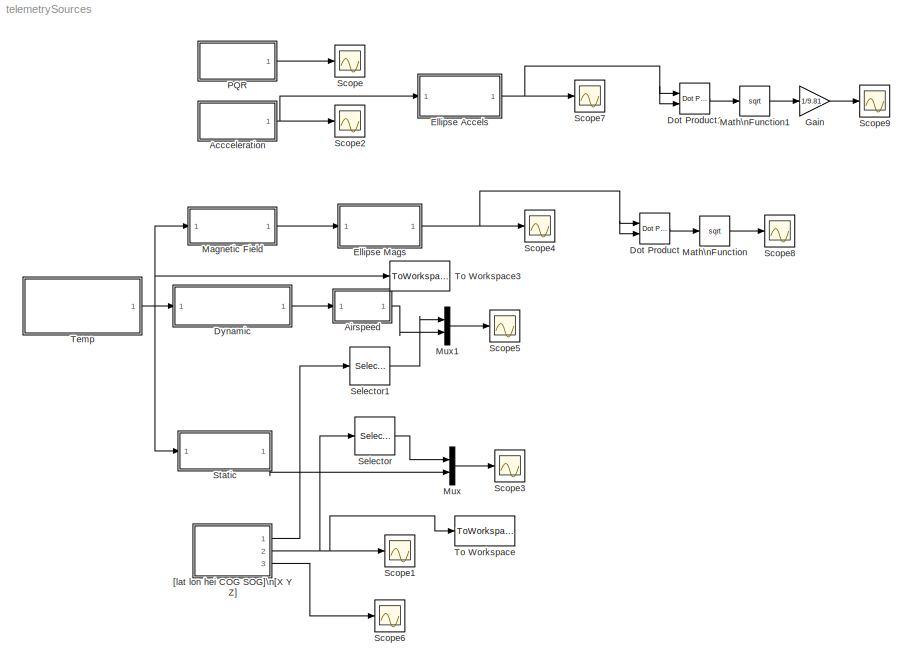
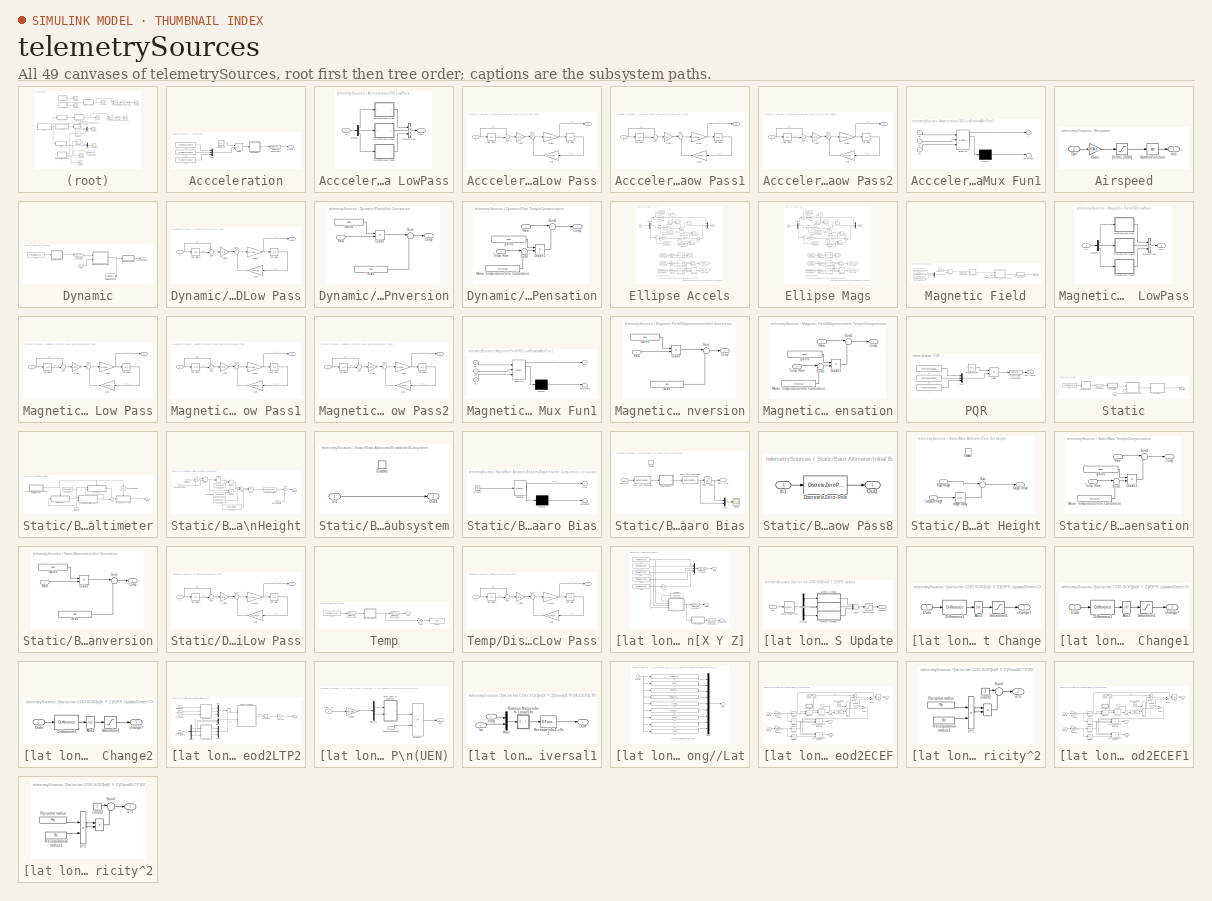
[diagram: thumbnail index - all 49 canvases of the model, root first then tree order]
MODEL telemetrySources
KIND model
BLOCK [SubSystem] Accceleration
  FunctionWithSeparateData = off
  MaskHideContents = off
  MinAlgLoopOccurrences = off
  Ports = [0, 1]
  RTWSystemCode = Auto
BLOCK [SubSystem] Accceleration/3D LowPass
  FunctionWithSeparateData = off
  MaskCallbackString = |
  MaskDescription = 3D Discrete 1st Order Low Pass filter
  MaskDisplay = port_label('input',1,'3D')\ndpoly([a],[1 a],'s')\n
  MaskEnableString = on,on
  MaskHideContents = off
  MaskIconFrame = on
  MaskIconOpaque = on
  MaskIconRotate = none
  MaskIconUnits = autoscale
  MaskPromptString = Pole Location (continous)|Initial condition (3x1)
  MaskStyleString = edit,edit
  MaskTabNameString = ,
  MaskToolTipString = on,on
  MaskTunableValueString = on,on
  MaskValueString = 150|-ACC_hil(5,[2 1 3])
  MaskVarAliasString = ,
  MaskVariables = a=@1;yo=@2;
  MaskVisibilityString = on,on
  MinAlgLoopOccurrences = off
  Ports = [1, 1]
  RTWSystemCode = Auto
BLOCK [Demux] Accceleration/3D LowPass/Demux
  DisplayOption = bar
  Outputs = 3
  Ports = [1, 3]
BLOCK [SubSystem] Accceleration/3D LowPass/Discrete Low Pass
  FunctionWithSeparateData = off
  MaskCallbackString = ||
  MaskDisplay = port_label('input',1,'U')\nport_label('output',1,'Y')\ntext(0.35,0.85,'Tustin')\ndpoly([a],[1 a],'s')\n
  MaskEnableString = on,on,on
  MaskHideContents = off
  MaskIconFrame = on
  MaskIconOpaque = on
  MaskIconRotate = none
  MaskIconUnits = normalized
  MaskPromptString = Pole location (continuous)|Initial condition|Sample Time (seconds)
  MaskStyleString = edit,edit,edit
  MaskTabNameString = ,,
  MaskToolTipString = on,on,on
  MaskTunableValueString = on,on,on
  MaskValueString = a|yo(1)|T
  MaskVarAliasString = ,,
  MaskVariables = a=@1;Yo=@2;Ts=@3;
  MaskVisibilityString = on,on,on
  MinAlgLoopOccurrences = off
  Ports = [1, 1]
  RTWSystemCode = Auto
BLOCK [Gain] Accceleration/3D LowPass/Discrete Low Pass/Gain
  Gain = (2-a*Ts)
  OutDataTypeMode = Inherit via internal rule
  ParameterDataTypeMode = Inherit via internal rule
  SampleTime = Ts
  SaturateOnIntegerOverflow = off
BLOCK [Gain] Accceleration/3D LowPass/Discrete Low Pass/Gain1
  Gain = 1/(2+a*Ts)
  OutDataTypeMode = Inherit via internal rule
  ParameterDataTypeMode = Inherit via internal rule
  SampleTime = Ts
  SaturateOnIntegerOverflow = off
BLOCK [Gain] Accceleration/3D LowPass/Discrete Low Pass/Gain2
  Gain = a*Ts
  OutDataTypeMode = Inherit via internal rule
  ParameterDataTypeMode = Inherit via internal rule
  SampleTime = Ts
  SaturateOnIntegerOverflow = off
BLOCK [Sum] Accceleration/3D LowPass/Discrete Low Pass/Sum
  CollapseMode = All dimensions
  IconShape = round
  InputSameDT = off
  Inputs = ++|
  OutDataTypeMode = Inherit via internal rule
  Ports = [2, 1]
  SaturateOnIntegerOverflow = off
BLOCK [Sum] Accceleration/3D LowPass/Discrete Low Pass/Sum1
  CollapseMode = All dimensions
  IconShape = round
  InputSameDT = off
  Inputs = |++
  OutDataTypeMode = Inherit via internal rule
  Ports = [2, 1]
  SaturateOnIntegerOverflow = off
BLOCK [Inport] Accceleration/3D LowPass/Discrete Low Pass/U
  IconDisplay = Port number
BLOCK [UnitDelay] Accceleration/3D LowPass/Discrete Low Pass/Unit Delay
  SampleTime = Ts
  X0 = Yo
BLOCK [UnitDelay] Accceleration/3D LowPass/Discrete Low Pass/Unit Delay1
  SampleTime = Ts
  X0 = Yo
BLOCK [Outport] Accceleration/3D LowPass/Discrete Low Pass/Y
  BusOutputAsStruct = off
  IconDisplay = Port number
BLOCK [SubSystem] Accceleration/3D LowPass/Discrete Low Pass1
  FunctionWithSeparateData = off
  MaskCallbackString = ||
  MaskDisplay = port_label('input',1,'U')\nport_label('output',1,'Y')\ntext(0.35,0.85,'Tustin')\ndpoly([a],[1 a],'s')\n
  MaskEnableString = on,on,on
  MaskHideContents = off
  MaskIconFrame = on
  MaskIconOpaque = on
  MaskIconRotate = none
  MaskIconUnits = normalized
  MaskPromptString = Pole location (continuous)|Initial condition|Sample Time (seconds)
  MaskStyleString = edit,edit,edit
  MaskTabNameString = ,,
  MaskToolTipString = on,on,on
  MaskTunableValueString = on,on,on
  MaskValueString = a|yo(2)|T
  MaskVarAliasString = ,,
  MaskVariables = a=@1;Yo=@2;Ts=@3;
  MaskVisibilityString = on,on,on
  MinAlgLoopOccurrences = off
  Ports = [1, 1]
  RTWSystemCode = Auto
BLOCK [Gain] Accceleration/3D LowPass/Discrete Low Pass1/Gain
  Gain = (2-a*Ts)
  OutDataTypeMode = Inherit via internal rule
  ParameterDataTypeMode = Inherit via internal rule
  SampleTime = Ts
  SaturateOnIntegerOverflow = off
BLOCK [Gain] Accceleration/3D LowPass/Discrete Low Pass1/Gain1
  Gain = 1/(2+a*Ts)
  OutDataTypeMode = Inherit via internal rule
  ParameterDataTypeMode = Inherit via internal rule
  SampleTime = Ts
  SaturateOnIntegerOverflow = off
BLOCK [Gain] Accceleration/3D LowPass/Discrete Low Pass1/Gain2
  Gain = a*Ts
  OutDataTypeMode = Inherit via internal rule
  ParameterDataTypeMode = Inherit via internal rule
  SampleTime = Ts
  SaturateOnIntegerOverflow = off
BLOCK [Sum] Accceleration/3D LowPass/Discrete Low Pass1/Sum
  CollapseMode = All dimensions
  IconShape = round
  InputSameDT = off
  Inputs = ++|
  OutDataTypeMode = Inherit via internal rule
  Ports = [2, 1]
  SaturateOnIntegerOverflow = off
BLOCK [Sum] Accceleration/3D LowPass/Discrete Low Pass1/Sum1
  CollapseMode = All dimensions
  IconShape = round
  InputSameDT = off
  Inputs = |++
  OutDataTypeMode = Inherit via internal rule
  Ports = [2, 1]
  SaturateOnIntegerOverflow = off
BLOCK [Inport] Accceleration/3D LowPass/Discrete Low Pass1/U
  IconDisplay = Port number
BLOCK [UnitDelay] Accceleration/3D LowPass/Discrete Low Pass1/Unit Delay
  SampleTime = Ts
  X0 = Yo
BLOCK [UnitDelay] Accceleration/3D LowPass/Discrete Low Pass1/Unit Delay1
  SampleTime = Ts
  X0 = Yo
BLOCK [Outport] Accceleration/3D LowPass/Discrete Low Pass1/Y
  BusOutputAsStruct = off
  IconDisplay = Port number
BLOCK [SubSystem] Accceleration/3D LowPass/Discrete Low Pass2
  FunctionWithSeparateData = off
  MaskCallbackString = ||
  MaskDisplay = port_label('input',1,'U')\nport_label('output',1,'Y')\ntext(0.35,0.85,'Tustin')\ndpoly([a],[1 a],'s')\n
  MaskEnableString = on,on,on
  MaskHideContents = off
  MaskIconFrame = on
  MaskIconOpaque = on
  MaskIconRotate = none
  MaskIconUnits = normalized
  MaskPromptString = Pole location (continuous)|Initial condition|Sample Time (seconds)
  MaskStyleString = edit,edit,edit
  MaskTabNameString = ,,
  MaskToolTipString = on,on,on
  MaskTunableValueString = on,on,on
  MaskValueString = a|yo(3)|T
  MaskVarAliasString = ,,
  MaskVariables = a=@1;Yo=@2;Ts=@3;
  MaskVisibilityString = on,on,on
  MinAlgLoopOccurrences = off
  Ports = [1, 1]
  RTWSystemCode = Auto
BLOCK [Gain] Accceleration/3D LowPass/Discrete Low Pass2/Gain
  Gain = (2-a*Ts)
  OutDataTypeMode = Inherit via internal rule
  ParameterDataTypeMode = Inherit via internal rule
  SampleTime = Ts
  SaturateOnIntegerOverflow = off
BLOCK [Gain] Accceleration/3D LowPass/Discrete Low Pass2/Gain1
  Gain = 1/(2+a*Ts)
  OutDataTypeMode = Inherit via internal rule
  ParameterDataTypeMode = Inherit via internal rule
  SampleTime = Ts
  SaturateOnIntegerOverflow = off
BLOCK [Gain] Accceleration/3D LowPass/Discrete Low Pass2/Gain2
  Gain = a*Ts
  OutDataTypeMode = Inherit via internal rule
  ParameterDataTypeMode = Inherit via internal rule
  SampleTime = Ts
  SaturateOnIntegerOverflow = off
BLOCK [Sum] Accceleration/3D LowPass/Discrete Low Pass2/Sum
  CollapseMode = All dimensions
  IconShape = round
  InputSameDT = off
  Inputs = ++|
  OutDataTypeMode = Inherit via internal rule
  Ports = [2, 1]
  SaturateOnIntegerOverflow = off
BLOCK [Sum] Accceleration/3D LowPass/Discrete Low Pass2/Sum1
  CollapseMode = All dimensions
  IconShape = round
  InputSameDT = off
  Inputs = |++
  OutDataTypeMode = Inherit via internal rule
  Ports = [2, 1]
  SaturateOnIntegerOverflow = off
BLOCK [Inport] Accceleration/3D LowPass/Discrete Low Pass2/U
  IconDisplay = Port number
BLOCK [UnitDelay] Accceleration/3D LowPass/Discrete Low Pass2/Unit Delay
  SampleTime = Ts
  X0 = Yo
BLOCK [UnitDelay] Accceleration/3D LowPass/Discrete Low Pass2/Unit Delay1
  SampleTime = Ts
  X0 = Yo
BLOCK [Outport] Accceleration/3D LowPass/Discrete Low Pass2/Y
  BusOutputAsStruct = off
  IconDisplay = Port number
BLOCK [Inport] Accceleration/3D LowPass/In
  IconDisplay = Port number
BLOCK [Outport] Accceleration/3D LowPass/Out1
  BusOutputAsStruct = off
  IconDisplay = Port number
BLOCK [SubSystem] Accceleration/3D LowPass/myMux Fun1
  FunctionWithSeparateData = off
  MaskDescription = Embedded MATLAB block
  MaskDisplay = disp('myMux');
  MaskHideContents = off
  MaskIconFrame = on
  MaskIconOpaque = off
  MaskIconRotate = none
  MaskIconUnits = autoscale
  MaskSelfModifiable = on
  MaskType = Stateflow
  MinAlgLoopOccurrences = off
  Ports = [3, 1]
  RTWSystemCode = Auto
BLOCK [Demux] Accceleration/3D LowPass/myMux Fun1/ Demux 
  Outputs = 1
  Ports = [1, 1]
BLOCK [S-Function] Accceleration/3D LowPass/myMux Fun1/ SFunction 
  FunctionName = sf_sfun
  PortCounts = [3 2]
  Ports = [3, 2]
  Tag = Stateflow S-Function telemetrySources 2
BLOCK [Terminator] Accceleration/3D LowPass/myMux Fun1/ Terminator 
BLOCK [Inport] Accceleration/3D LowPass/myMux Fun1/u1
  IconDisplay = Port number
BLOCK [Inport] Accceleration/3D LowPass/myMux Fun1/u2
  IconDisplay = Port number
  Port = 2
BLOCK [Inport] Accceleration/3D LowPass/myMux Fun1/u3
  IconDisplay = Port number
  Port = 3
BLOCK [Outport] Accceleration/3D LowPass/myMux Fun1/y
  BusOutputAsStruct = off
  IconDisplay = Port number
BLOCK [Outport] Accceleration/Accel (m//s^2)
  BusOutputAsStruct = off
  IconDisplay = Port number
BLOCK [FromWorkspace] Accceleration/Ax
  OutputAfterFinalValue = Setting to zero
  SampleTime = 0.01
  VariableName = [time ACC_hil(:,1)]
  ZeroCross = on
BLOCK [FromWorkspace] Accceleration/Ay
  OutputAfterFinalValue = Setting to zero
  SampleTime = 0.01
  VariableName = [time ACC_hil(:,2)]
  ZeroCross = on
BLOCK [FromWorkspace] Accceleration/Az
  OutputAfterFinalValue = Setting to zero
  SampleTime = 0.01
  VariableName = [time ACC_hil(:,3)]
  ZeroCross = on
BLOCK [DataTypeConversion] Accceleration/Data Type Conversion4
  OutDataTypeMode = single
  RndMeth = Floor
  SaturateOnIntegerOverflow = off
BLOCK [Product] Accceleration/Divide
  CollapseMode = All dimensions
  InputSameDT = off
  Multiplication = Matrix(*)
  OutDataTypeMode = Inherit via internal rule
  OutScaling = 2^-10
  Ports = [2, 1]
  RndMeth = Floor
  SaturateOnIntegerOverflow = off
BLOCK [Mux] Accceleration/Mux
  DisplayOption = bar
  Inputs = 3
  Ports = [3, 1]
BLOCK [Constant] Accceleration/Rotate\nAxis
  Value = [0 -1 0; -1 0 0; 0 0 -1]
BLOCK [SubSystem] Airspeed
  FunctionWithSeparateData = off
  MaskHideContents = off
  MinAlgLoopOccurrences = off
  Ports = [1, 1]
  RTWSystemCode = Auto
BLOCK [Inport] Airspeed/Dyn
  IconDisplay = Port number
BLOCK [Gain] Airspeed/Gain
  Gain = 2/ISA_rho0
  OutDataTypeMode = Inherit via internal rule
  ParameterDataTypeMode = Inherit via internal rule
  SaturateOnIntegerOverflow = off
BLOCK [Math] Airspeed/Math\nFunction
  Operator = sqrt
  Ports = [1, 1]
BLOCK [Saturate] Airspeed/[0.001  2000]
  LowerLimit = 0.001
  UpperLimit = 2000
BLOCK [Outport] Airspeed/m//s
  BusOutputAsStruct = off
  IconDisplay = Port number
BLOCK [Reference] Dot Product  REF=simulink/Math\nOperations/Dot Product
  DoSatur = off
  InputSameDT = on
  LockScale = off
  OutDataType = sfix(16)
  OutScaling = 2^-10
  OutputDataTypeScalingMode = Inherit via internal rule
  Ports = [2, 1]
  RndMeth = Floor
  SourceBlock = simulink/Math\nOperations/Dot Product
  SourceType = Dot Product
BLOCK [Reference] Dot Product1  REF=simulink/Math\nOperations/Dot Product
  DoSatur = off
  InputSameDT = on
  LockScale = off
  OutDataType = sfix(16)
  OutScaling = 2^-10
  OutputDataTypeScalingMode = Inherit via internal rule
  Ports = [2, 1]
  RndMeth = Floor
  SourceBlock = simulink/Math\nOperations/Dot Product
  SourceType = Dot Product
BLOCK [SubSystem] Dynamic
  FunctionWithSeparateData = off
  MaskHideContents = off
  MinAlgLoopOccurrences = off
  Ports = [1, 1]
  RTWSystemCode = Auto
BLOCK [DataTypeConversion] Dynamic/Data Type Conversion1
  OutDataTypeMode = single
  RndMeth = Floor
  SaturateOnIntegerOverflow = off
BLOCK [SubSystem] Dynamic/Discrete Low Pass
  FunctionWithSeparateData = off
  MaskCallbackString = ||
  MaskDisplay = port_label('input',1,'U')\nport_label('output',1,'Y')\ntext(0.35,0.85,'Tustin')\ndpoly([a],[1 a],'s')\n
  MaskEnableString = on,on,on
  MaskHideContents = off
  MaskIconFrame = on
  MaskIconOpaque = on
  MaskIconRotate = none
  MaskIconUnits = normalized
  MaskPromptString = Pole location (continuous)|Initial condition|Sample Time (seconds)
  MaskStyleString = edit,edit,edit
  MaskTabNameString = ,,
  MaskToolTipString = on,on,on
  MaskTunableValueString = on,on,on
  MaskValueString = 10|DYN_hil(5,1)|T
  MaskVarAliasString = ,,
  MaskVariables = a=@1;Yo=@2;Ts=@3;
  MaskVisibilityString = on,on,on
  MinAlgLoopOccurrences = off
  Ports = [1, 1]
  RTWSystemCode = Auto
BLOCK [Gain] Dynamic/Discrete Low Pass/Gain
  Gain = (2-a*Ts)
  OutDataTypeMode = Inherit via internal rule
  ParameterDataTypeMode = Inherit via internal rule
  SampleTime = Ts
  SaturateOnIntegerOverflow = off
BLOCK [Gain] Dynamic/Discrete Low Pass/Gain1
  Gain = 1/(2+a*Ts)
  OutDataTypeMode = Inherit via internal rule
  ParameterDataTypeMode = Inherit via internal rule
  SampleTime = Ts
  SaturateOnIntegerOverflow = off
BLOCK [Gain] Dynamic/Discrete Low Pass/Gain2
  Gain = a*Ts
  OutDataTypeMode = Inherit via internal rule
  ParameterDataTypeMode = Inherit via internal rule
  SampleTime = Ts
  SaturateOnIntegerOverflow = off
BLOCK [Sum] Dynamic/Discrete Low Pass/Sum
  CollapseMode = All dimensions
  IconShape = round
  InputSameDT = off
  Inputs = ++|
  OutDataTypeMode = Inherit via internal rule
  Ports = [2, 1]
  SaturateOnIntegerOverflow = off
BLOCK [Sum] Dynamic/Discrete Low Pass/Sum1
  CollapseMode = All dimensions
  IconShape = round
  InputSameDT = off
  Inputs = |++
  OutDataTypeMode = Inherit via internal rule
  Ports = [2, 1]
  SaturateOnIntegerOverflow = off
BLOCK [Inport] Dynamic/Discrete Low Pass/U
  IconDisplay = Port number
BLOCK [UnitDelay] Dynamic/Discrete Low Pass/Unit Delay
  SampleTime = Ts
  X0 = Yo
BLOCK [UnitDelay] Dynamic/Discrete Low Pass/Unit Delay1
  SampleTime = Ts
  X0 = Yo
BLOCK [Outport] Dynamic/Discrete Low Pass/Y
  BusOutputAsStruct = off
  IconDisplay = Port number
BLOCK [FromWorkspace] Dynamic/Dyn
  OutputAfterFinalValue = Setting to zero
  SampleTime = 0.01
  VariableName = [time DYN_hil(:,1)]
  ZeroCross = on
BLOCK [Outport] Dynamic/DynPress (N//m^2)
  BusOutputAsStruct = off
  IconDisplay = Port number
BLOCK [SubSystem] Dynamic/Pitot Temp\nCompensation
  FunctionWithSeparateData = off
  MaskCallbackString = |
  MaskDescription = This block implements a temperature compensation. It implmements the following equation:\n\nM_tc = M_raw - K_t(T - T_avg)
  MaskEnableString = on,on
  MaskHideContents = off
  MaskIconFrame = on
  MaskIconOpaque = on
  MaskIconRotate = none
  MaskIconUnits = autoscale
  MaskPromptString = Tempearature Coeficient (K_t)|Calibration Temperature Mean (T_avg)
  MaskStyleString = edit,edit
  MaskTabNameString = ,
  MaskToolTipString = on,on
  MaskTunableValueString = on,on
  MaskValueString = pitTempK|pitMeanTemp
  MaskVarAliasString = ,
  MaskVariables = alpha=@1;tempMean=@2;
  MaskVisibilityString = on,on
  MinAlgLoopOccurrences = off
  Ports = [2, 1]
  RTWSystemCode = Auto
BLOCK [Outport] Dynamic/Pitot Temp\nCompensation/Comp
  BusOutputAsStruct = off
  IconDisplay = Port number
BLOCK [Product] Dynamic/Pitot Temp\nCompensation/Divide1
  CollapseMode = All dimensions
  InputSameDT = off
  OutDataTypeMode = single
  OutScaling = 2^-10
  Ports = [2, 1]
  RndMeth = Floor
  SaturateOnIntegerOverflow = off
BLOCK [Constant] Dynamic/Pitot Temp\nCompensation/Mean Temperature\nfor Calibration
  OutDataTypeMode = single
  Value = tempMean
BLOCK [Inport] Dynamic/Pitot Temp\nCompensation/Raw
  IconDisplay = Port number
BLOCK [Sum] Dynamic/Pitot Temp\nCompensation/Sum1
  CollapseMode = All dimensions
  IconShape = round
  InputSameDT = off
  Inputs = |+-
  OutDataTypeMode = single
  Ports = [2, 1]
  SaturateOnIntegerOverflow = off
BLOCK [Sum] Dynamic/Pitot Temp\nCompensation/Sum2
  CollapseMode = All dimensions
  IconShape = round
  InputSameDT = off
  Inputs = |+-
  OutDataTypeMode = single
  Ports = [2, 1]
  SaturateOnIntegerOverflow = off
BLOCK [Inport] Dynamic/Pitot Temp\nCompensation/Temp Raw
  IconDisplay = Port number
  Port = 2
BLOCK [Constant] Dynamic/Pitot Temp\nCompensation/gains
  OutDataTypeMode = single
  Value = alpha
BLOCK [SubSystem] Dynamic/Pitot\nUnit Conversion
  FunctionWithSeparateData = off
  MaskCallbackString = |
  MaskDescription = Convert Analog readings to units
  MaskEnableString = on,on
  MaskHideContents = off
  MaskIconFrame = on
  MaskIconOpaque = on
  MaskIconRotate = none
  MaskIconUnits = autoscale
  MaskPromptString = Initial Bias|Initial Gains
  MaskStyleString = edit,edit
  MaskTabNameString = ,
  MaskToolTipString = on,on
  MaskTunableValueString = on,on
  MaskValueString = pitotOffset|pitotScale
  MaskVarAliasString = ,
  MaskVariables = bias=@1;gains=@2;
  MaskVisibilityString = on,on
  MinAlgLoopOccurrences = off
  Ports = [1, 1]
  RTWSystemCode = Auto
BLOCK [Constant] Dynamic/Pitot\nUnit Conversion/Bias
  OutDataTypeMode = single
  Value = bias
BLOCK [Outport] Dynamic/Pitot\nUnit Conversion/Comp
  BusOutputAsStruct = off
  IconDisplay = Port number
BLOCK [Product] Dynamic/Pitot\nUnit Conversion/Divide
  CollapseMode = All dimensions
  InputSameDT = off
  OutDataTypeMode = single
  OutScaling = 2^-10
  Ports = [2, 1]
  RndMeth = Floor
  SaturateOnIntegerOverflow = off
BLOCK [Constant] Dynamic/Pitot\nUnit Conversion/Gains
  OutDataTypeMode = single
  Value = gains
BLOCK [Inport] Dynamic/Pitot\nUnit Conversion/Raw
  IconDisplay = Port number
BLOCK [Sum] Dynamic/Pitot\nUnit Conversion/Sum
  CollapseMode = All dimensions
  IconShape = round
  InputSameDT = off
  Inputs = |++
  OutDataTypeMode = single
  Ports = [2, 1]
  SaturateOnIntegerOverflow = off
BLOCK [Inport] Dynamic/Temp
  IconDisplay = Port number
BLOCK [ToWorkspace] Dynamic/To Workspace1
  MaxDataPoints = inf
  SampleTime = -1
  SaveFormat = Array
  VariableName = dyn_temp
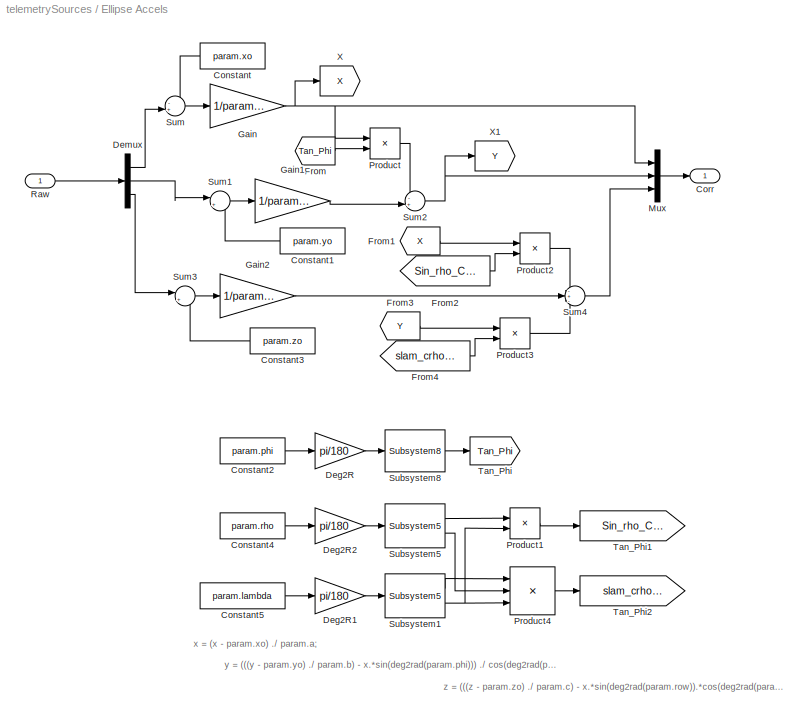
BLOCK [SubSystem] Ellipse Accels
  FunctionWithSeparateData = off
  MaskDescription = Applies the correction from the ellipse algorithm to the raw data being sent through the block. The block expects a 3x1 input vector, and will return a 3x1 output vector. The parameter constant should be a struct with param.xo .yo and .zo being the offsets, param.a .b and .c being the scale factors, and param.phi .rho and .lambda being the angle non-orthogonality (in degrees).
  MaskDisplay = text(0.35,0.85,'Ellipse Correction')\nport_label('input',1,'RAW')\nport_label('output',1,'CORR')\n
  MaskEnableString = on
  MaskHideContents = off
  MaskIconFrame = on
  MaskIconOpaque = on
  MaskIconRotate = none
  MaskIconUnits = normalized
  MaskPromptString = parameter (struct)
  MaskStyleString = edit
  MaskToolTipString = on
  MaskTunableValueString = on
  MaskValueString = param_acc
  MaskVariables = param=@1;
  MaskVisibilityString = on
  MinAlgLoopOccurrences = off
  Ports = [1, 1]
  RTWSystemCode = Auto
BLOCK [Constant] Ellipse Accels/Constant
  Value = param.xo
BLOCK [Constant] Ellipse Accels/Constant1
  Value = param.yo
BLOCK [Constant] Ellipse Accels/Constant2
  OutDataTypeMode = single
  Value = param.phi
BLOCK [Constant] Ellipse Accels/Constant3
  Value = param.zo
BLOCK [Constant] Ellipse Accels/Constant4
  OutDataTypeMode = single
  Value = param.rho
BLOCK [Constant] Ellipse Accels/Constant5
  OutDataTypeMode = single
  Value = param.lambda
BLOCK [Outport] Ellipse Accels/Corr
  BusOutputAsStruct = off
  IconDisplay = Port number
BLOCK [Gain] Ellipse Accels/Deg2R
  Gain = pi/180
BLOCK [Gain] Ellipse Accels/Deg2R1
  Gain = pi/180
BLOCK [Gain] Ellipse Accels/Deg2R2
  Gain = pi/180
BLOCK [Demux] Ellipse Accels/Demux
  DisplayOption = bar
  Outputs = 3
  Ports = [1, 3]
BLOCK [From] Ellipse Accels/From
  CloseFcn = tagdialog Close
  GotoTag = Tan_Phi
BLOCK [From] Ellipse Accels/From1
  CloseFcn = tagdialog Close
  GotoTag = X
BLOCK [From] Ellipse Accels/From2
  CloseFcn = tagdialog Close
  GotoTag = Sin_rho_Cos_lam
BLOCK [From] Ellipse Accels/From3
  CloseFcn = tagdialog Close
  GotoTag = Y
BLOCK [From] Ellipse Accels/From4
  CloseFcn = tagdialog Close
  GotoTag = slam_crhoclam
BLOCK [Gain] Ellipse Accels/Gain
  Gain = 1/param.a
  OutDataTypeMode = Inherit via internal rule
  ParameterDataTypeMode = Inherit via internal rule
  SaturateOnIntegerOverflow = off
BLOCK [Gain] Ellipse Accels/Gain1
  Gain = 1/param.b
  OutDataTypeMode = Inherit via internal rule
  ParameterDataTypeMode = Inherit via internal rule
  SaturateOnIntegerOverflow = off
BLOCK [Gain] Ellipse Accels/Gain2
  Gain = 1/param.c
  OutDataTypeMode = Inherit via internal rule
  ParameterDataTypeMode = Inherit via internal rule
  SaturateOnIntegerOverflow = off
BLOCK [Mux] Ellipse Accels/Mux
  DisplayOption = bar
  Inputs = 3
  Ports = [3, 1]
BLOCK [Product] Ellipse Accels/Product
  CollapseMode = All dimensions
  InputSameDT = off
  OutDataTypeMode = Inherit via internal rule
  Ports = [2, 1]
  SaturateOnIntegerOverflow = off
BLOCK [Product] Ellipse Accels/Product1
  CollapseMode = All dimensions
  InputSameDT = off
  OutDataTypeMode = Inherit via internal rule
  Ports = [2, 1]
  SaturateOnIntegerOverflow = off
BLOCK [Product] Ellipse Accels/Product2
  CollapseMode = All dimensions
  InputSameDT = off
  OutDataTypeMode = Inherit via internal rule
  Ports = [2, 1]
  SaturateOnIntegerOverflow = off
BLOCK [Product] Ellipse Accels/Product3
  CollapseMode = All dimensions
  InputSameDT = off
  OutDataTypeMode = Inherit via internal rule
  Ports = [2, 1]
  SaturateOnIntegerOverflow = off
BLOCK [Product] Ellipse Accels/Product4
  CollapseMode = All dimensions
  InputSameDT = off
  Inputs = *//
  OutDataTypeMode = Inherit via internal rule
  Ports = [3, 1]
  SaturateOnIntegerOverflow = off
BLOCK [Inport] Ellipse Accels/Raw
  IconDisplay = Port number
BLOCK [Reference] Ellipse Accels/Subsystem1  REF=SLUGS_Library/Subsystem5
  FunctionWithSeparateData = off
  Ports = [1, 2]
  RTWMemSecDataConstants = Inherit from model
  RTWMemSecDataInternal = Inherit from model
  RTWMemSecDataParameters = Inherit from model
  RTWMemSecFuncExecute = Inherit from model
  RTWMemSecFuncInitTerm = Inherit from model
  ShowPortLabels = FromPortIcon
  SourceBlock = SLUGS_Library/Subsystem5
  SourceType = SubSystem
  SystemSampleTime = -1
BLOCK [Reference] Ellipse Accels/Subsystem5  REF=SLUGS_Library/Subsystem5
  FunctionWithSeparateData = off
  Ports = [1, 2]
  RTWMemSecDataConstants = Inherit from model
  RTWMemSecDataInternal = Inherit from model
  RTWMemSecDataParameters = Inherit from model
  RTWMemSecFuncExecute = Inherit from model
  RTWMemSecFuncInitTerm = Inherit from model
  ShowPortLabels = FromPortIcon
  SourceBlock = SLUGS_Library/Subsystem5
  SourceType = SubSystem
  SystemSampleTime = -1
BLOCK [Reference] Ellipse Accels/Subsystem8  REF=SLUGS_Library/Subsystem8
  FunctionWithSeparateData = off
  Ports = [1, 1]
  RTWMemSecDataConstants = Inherit from model
  RTWMemSecDataInternal = Inherit from model
  RTWMemSecDataParameters = Inherit from model
  RTWMemSecFuncExecute = Inherit from model
  RTWMemSecFuncInitTerm = Inherit from model
  ShowPortLabels = FromPortIcon
  SourceBlock = SLUGS_Library/Subsystem8
  SourceType = SubSystem
  SystemSampleTime = -1
BLOCK [Sum] Ellipse Accels/Sum
  CollapseMode = All dimensions
  IconShape = round
  InputSameDT = off
  Inputs = -+|
  OutDataTypeMode = Inherit via internal rule
  Ports = [2, 1]
  SaturateOnIntegerOverflow = off
BLOCK [Sum] Ellipse Accels/Sum1
  CollapseMode = All dimensions
  IconShape = round
  InputSameDT = off
  Inputs = |+-
  OutDataTypeMode = Inherit via internal rule
  Ports = [2, 1]
  SaturateOnIntegerOverflow = off
BLOCK [Sum] Ellipse Accels/Sum2
  CollapseMode = All dimensions
  IconShape = round
  InputSameDT = off
  Inputs = -+|
  OutDataTypeMode = Inherit via internal rule
  Ports = [2, 1]
  SaturateOnIntegerOverflow = off
BLOCK [Sum] Ellipse Accels/Sum3
  CollapseMode = All dimensions
  IconShape = round
  InputSameDT = off
  Inputs = |+-
  OutDataTypeMode = Inherit via internal rule
  Ports = [2, 1]
  SaturateOnIntegerOverflow = off
BLOCK [Sum] Ellipse Accels/Sum4
  CollapseMode = All dimensions
  IconShape = round
  InputSameDT = off
  Inputs = -+-
  OutDataTypeMode = Inherit via internal rule
  Ports = [3, 1]
  SaturateOnIntegerOverflow = off
BLOCK [Goto] Ellipse Accels/Tan_Phi
  GotoTag = Tan_Phi
  TagVisibility = local
BLOCK [Goto] Ellipse Accels/Tan_Phi1
  GotoTag = Sin_rho_Cos_lam
  TagVisibility = local
BLOCK [Goto] Ellipse Accels/Tan_Phi2
  GotoTag = slam_crhoclam
  TagVisibility = local
BLOCK [Goto] Ellipse Accels/X
  GotoTag = X
  TagVisibility = local
BLOCK [Goto] Ellipse Accels/X1
  GotoTag = Y
  TagVisibility = local
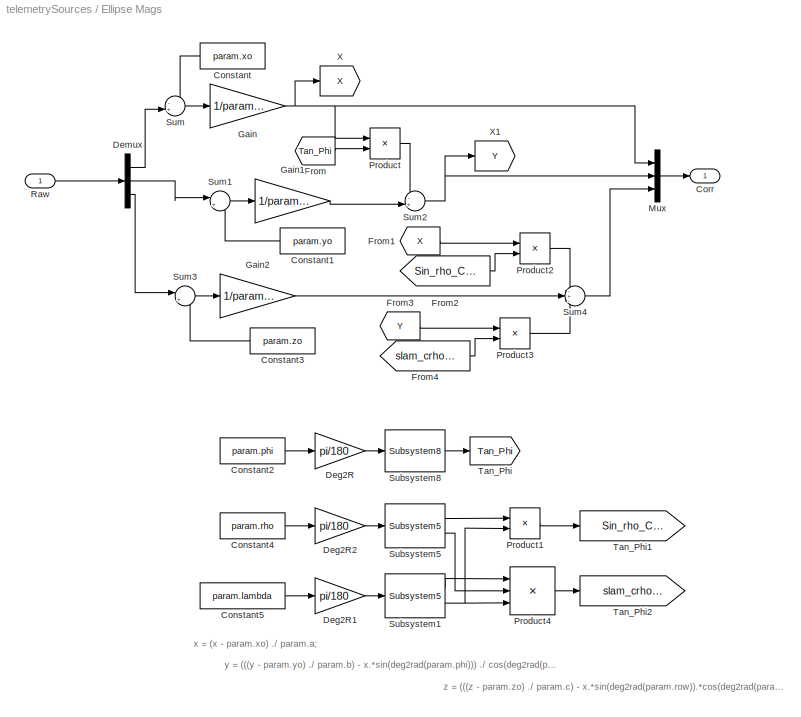
BLOCK [SubSystem] Ellipse Mags
  FunctionWithSeparateData = off
  MaskDescription = Applies the correction from the ellipse algorithm to the raw data being sent through the block. The block expects a 3x1 input vector, and will return a 3x1 output vector. The parameter constant should be a struct with param.xo .yo and .zo being the offsets, param.a .b and .c being the scale factors, and param.phi .rho and .lambda being the angle non-orthogonality (in degrees).
  MaskDisplay = text(0.35,0.85,'Ellipse Correction')\nport_label('input',1,'RAW')\nport_label('output',1,'CORR')\n
  MaskEnableString = on
  MaskHideContents = off
  MaskIconFrame = on
  MaskIconOpaque = on
  MaskIconRotate = none
  MaskIconUnits = normalized
  MaskPromptString = parameter (struct)
  MaskStyleString = edit
  MaskToolTipString = on
  MaskTunableValueString = on
  MaskValueString = param_mag
  MaskVariables = param=@1;
  MaskVisibilityString = on
  MinAlgLoopOccurrences = off
  Ports = [1, 1]
  RTWSystemCode = Auto
BLOCK [Constant] Ellipse Mags/Constant
  Value = param.xo
BLOCK [Constant] Ellipse Mags/Constant1
  Value = param.yo
BLOCK [Constant] Ellipse Mags/Constant2
  OutDataTypeMode = single
  Value = param.phi
BLOCK [Constant] Ellipse Mags/Constant3
  Value = param.zo
BLOCK [Constant] Ellipse Mags/Constant4
  OutDataTypeMode = single
  Value = param.rho
BLOCK [Constant] Ellipse Mags/Constant5
  OutDataTypeMode = single
  Value = param.lambda
BLOCK [Outport] Ellipse Mags/Corr
  BusOutputAsStruct = off
  IconDisplay = Port number
BLOCK [Gain] Ellipse Mags/Deg2R
  Gain = pi/180
BLOCK [Gain] Ellipse Mags/Deg2R1
  Gain = pi/180
BLOCK [Gain] Ellipse Mags/Deg2R2
  Gain = pi/180
BLOCK [Demux] Ellipse Mags/Demux
  DisplayOption = bar
  Outputs = 3
  Ports = [1, 3]
BLOCK [From] Ellipse Mags/From
  CloseFcn = tagdialog Close
  GotoTag = Tan_Phi
BLOCK [From] Ellipse Mags/From1
  CloseFcn = tagdialog Close
  GotoTag = X
BLOCK [From] Ellipse Mags/From2
  CloseFcn = tagdialog Close
  GotoTag = Sin_rho_Cos_lam
BLOCK [From] Ellipse Mags/From3
  CloseFcn = tagdialog Close
  GotoTag = Y
BLOCK [From] Ellipse Mags/From4
  CloseFcn = tagdialog Close
  GotoTag = slam_crhoclam
BLOCK [Gain] Ellipse Mags/Gain
  Gain = 1/param.a
  OutDataTypeMode = Inherit via internal rule
  ParameterDataTypeMode = Inherit via internal rule
  SaturateOnIntegerOverflow = off
BLOCK [Gain] Ellipse Mags/Gain1
  Gain = 1/param.b
  OutDataTypeMode = Inherit via internal rule
  ParameterDataTypeMode = Inherit via internal rule
  SaturateOnIntegerOverflow = off
BLOCK [Gain] Ellipse Mags/Gain2
  Gain = 1/param.c
  OutDataTypeMode = Inherit via internal rule
  ParameterDataTypeMode = Inherit via internal rule
  SaturateOnIntegerOverflow = off
BLOCK [Mux] Ellipse Mags/Mux
  DisplayOption = bar
  Inputs = 3
  Ports = [3, 1]
BLOCK [Product] Ellipse Mags/Product
  CollapseMode = All dimensions
  InputSameDT = off
  OutDataTypeMode = Inherit via internal rule
  Ports = [2, 1]
  SaturateOnIntegerOverflow = off
BLOCK [Product] Ellipse Mags/Product1
  CollapseMode = All dimensions
  InputSameDT = off
  OutDataTypeMode = Inherit via internal rule
  Ports = [2, 1]
  SaturateOnIntegerOverflow = off
BLOCK [Product] Ellipse Mags/Product2
  CollapseMode = All dimensions
  InputSameDT = off
  OutDataTypeMode = Inherit via internal rule
  Ports = [2, 1]
  SaturateOnIntegerOverflow = off
BLOCK [Product] Ellipse Mags/Product3
  CollapseMode = All dimensions
  InputSameDT = off
  OutDataTypeMode = Inherit via internal rule
  Ports = [2, 1]
  SaturateOnIntegerOverflow = off
BLOCK [Product] Ellipse Mags/Product4
  CollapseMode = All dimensions
  InputSameDT = off
  Inputs = *//
  OutDataTypeMode = Inherit via internal rule
  Ports = [3, 1]
  SaturateOnIntegerOverflow = off
BLOCK [Inport] Ellipse Mags/Raw
  IconDisplay = Port number
BLOCK [Reference] Ellipse Mags/Subsystem1  REF=SLUGS_Library/Subsystem5
  FunctionWithSeparateData = off
  Ports = [1, 2]
  RTWMemSecDataConstants = Inherit from model
  RTWMemSecDataInternal = Inherit from model
  RTWMemSecDataParameters = Inherit from model
  RTWMemSecFuncExecute = Inherit from model
  RTWMemSecFuncInitTerm = Inherit from model
  ShowPortLabels = FromPortIcon
  SourceBlock = SLUGS_Library/Subsystem5
  SourceType = SubSystem
  SystemSampleTime = -1
BLOCK [Reference] Ellipse Mags/Subsystem5  REF=SLUGS_Library/Subsystem5
  FunctionWithSeparateData = off
  Ports = [1, 2]
  RTWMemSecDataConstants = Inherit from model
  RTWMemSecDataInternal = Inherit from model
  RTWMemSecDataParameters = Inherit from model
  RTWMemSecFuncExecute = Inherit from model
  RTWMemSecFuncInitTerm = Inherit from model
  ShowPortLabels = FromPortIcon
  SourceBlock = SLUGS_Library/Subsystem5
  SourceType = SubSystem
  SystemSampleTime = -1
BLOCK [Reference] Ellipse Mags/Subsystem8  REF=SLUGS_Library/Subsystem8
  FunctionWithSeparateData = off
  Ports = [1, 1]
  RTWMemSecDataConstants = Inherit from model
  RTWMemSecDataInternal = Inherit from model
  RTWMemSecDataParameters = Inherit from model
  RTWMemSecFuncExecute = Inherit from model
  RTWMemSecFuncInitTerm = Inherit from model
  ShowPortLabels = FromPortIcon
  SourceBlock = SLUGS_Library/Subsystem8
  SourceType = SubSystem
  SystemSampleTime = -1
BLOCK [Sum] Ellipse Mags/Sum
  CollapseMode = All dimensions
  IconShape = round
  InputSameDT = off
  Inputs = -+|
  OutDataTypeMode = Inherit via internal rule
  Ports = [2, 1]
  SaturateOnIntegerOverflow = off
BLOCK [Sum] Ellipse Mags/Sum1
  CollapseMode = All dimensions
  IconShape = round
  InputSameDT = off
  Inputs = |+-
  OutDataTypeMode = Inherit via internal rule
  Ports = [2, 1]
  SaturateOnIntegerOverflow = off
BLOCK [Sum] Ellipse Mags/Sum2
  CollapseMode = All dimensions
  IconShape = round
  InputSameDT = off
  Inputs = -+|
  OutDataTypeMode = Inherit via internal rule
  Ports = [2, 1]
  SaturateOnIntegerOverflow = off
BLOCK [Sum] Ellipse Mags/Sum3
  CollapseMode = All dimensions
  IconShape = round
  InputSameDT = off
  Inputs = |+-
  OutDataTypeMode = Inherit via internal rule
  Ports = [2, 1]
  SaturateOnIntegerOverflow = off
BLOCK [Sum] Ellipse Mags/Sum4
  CollapseMode = All dimensions
  IconShape = round
  InputSameDT = off
  Inputs = -+-
  OutDataTypeMode = Inherit via internal rule
  Ports = [3, 1]
  SaturateOnIntegerOverflow = off
BLOCK [Goto] Ellipse Mags/Tan_Phi
  GotoTag = Tan_Phi
  TagVisibility = local
BLOCK [Goto] Ellipse Mags/Tan_Phi1
  GotoTag = Sin_rho_Cos_lam
  TagVisibility = local
BLOCK [Goto] Ellipse Mags/Tan_Phi2
  GotoTag = slam_crhoclam
  TagVisibility = local
BLOCK [Goto] Ellipse Mags/X
  GotoTag = X
  TagVisibility = local
BLOCK [Goto] Ellipse Mags/X1
  GotoTag = Y
  TagVisibility = local
BLOCK [Gain] Gain
  Gain = 1/9.81
  OutDataTypeMode = Inherit via internal rule
  ParameterDataTypeMode = Inherit via internal rule
  SaturateOnIntegerOverflow = off
BLOCK [SubSystem] Magnetic Field
  FunctionWithSeparateData = off
  MaskHideContents = off
  MinAlgLoopOccurrences = off
  Ports = [1, 1]
  RTWSystemCode = Auto
BLOCK [SubSystem] Magnetic Field/3D LowPass
  FunctionWithSeparateData = off
  MaskCallbackString = |
  MaskDescription = 3D Discrete 1st Order Low Pass filter
  MaskDisplay = port_label('input',1,'3D')\ndpoly([a],[1 a],'s')\n
  MaskEnableString = on,on
  MaskHideContents = off
  MaskIconFrame = on
  MaskIconOpaque = on
  MaskIconRotate = none
  MaskIconUnits = autoscale
  MaskPromptString = Pole Location (continous)|Initial condition (3x1)
  MaskStyleString = edit,edit
  MaskTabNameString = ,
  MaskToolTipString = on,on
  MaskTunableValueString = on,on
  MaskValueString = 150|-MAG_hil(5,[2 1 3])
  MaskVarAliasString = ,
  MaskVariables = a=@1;yo=@2;
  MaskVisibilityString = on,on
  MinAlgLoopOccurrences = off
  Ports = [1, 1]
  RTWSystemCode = Auto
BLOCK [Demux] Magnetic Field/3D LowPass/Demux
  DisplayOption = bar
  Outputs = 3
  Ports = [1, 3]
BLOCK [SubSystem] Magnetic Field/3D LowPass/Discrete Low Pass
  FunctionWithSeparateData = off
  MaskCallbackString = ||
  MaskDisplay = port_label('input',1,'U')\nport_label('output',1,'Y')\ntext(0.35,0.85,'Tustin')\ndpoly([a],[1 a],'s')\n
  MaskEnableString = on,on,on
  MaskHideContents = off
  MaskIconFrame = on
  MaskIconOpaque = on
  MaskIconRotate = none
  MaskIconUnits = normalized
  MaskPromptString = Pole location (continuous)|Initial condition|Sample Time (seconds)
  MaskStyleString = edit,edit,edit
  MaskTabNameString = ,,
  MaskToolTipString = on,on,on
  MaskTunableValueString = on,on,on
  MaskValueString = a|yo(1)|T
  MaskVarAliasString = ,,
  MaskVariables = a=@1;Yo=@2;Ts=@3;
  MaskVisibilityString = on,on,on
  MinAlgLoopOccurrences = off
  Ports = [1, 1]
  RTWSystemCode = Auto
BLOCK [Gain] Magnetic Field/3D LowPass/Discrete Low Pass/Gain
  Gain = (2-a*Ts)
  OutDataTypeMode = Inherit via internal rule
  ParameterDataTypeMode = Inherit via internal rule
  SampleTime = Ts
  SaturateOnIntegerOverflow = off
BLOCK [Gain] Magnetic Field/3D LowPass/Discrete Low Pass/Gain1
  Gain = 1/(2+a*Ts)
  OutDataTypeMode = Inherit via internal rule
  ParameterDataTypeMode = Inherit via internal rule
  SampleTime = Ts
  SaturateOnIntegerOverflow = off
BLOCK [Gain] Magnetic Field/3D LowPass/Discrete Low Pass/Gain2
  Gain = a*Ts
  OutDataTypeMode = Inherit via internal rule
  ParameterDataTypeMode = Inherit via internal rule
  SampleTime = Ts
  SaturateOnIntegerOverflow = off
BLOCK [Sum] Magnetic Field/3D LowPass/Discrete Low Pass/Sum
  CollapseMode = All dimensions
  IconShape = round
  InputSameDT = off
  Inputs = ++|
  OutDataTypeMode = Inherit via internal rule
  Ports = [2, 1]
  SaturateOnIntegerOverflow = off
BLOCK [Sum] Magnetic Field/3D LowPass/Discrete Low Pass/Sum1
  CollapseMode = All dimensions
  IconShape = round
  InputSameDT = off
  Inputs = |++
  OutDataTypeMode = Inherit via internal rule
  Ports = [2, 1]
  SaturateOnIntegerOverflow = off
BLOCK [Inport] Magnetic Field/3D LowPass/Discrete Low Pass/U
  IconDisplay = Port number
BLOCK [UnitDelay] Magnetic Field/3D LowPass/Discrete Low Pass/Unit Delay
  SampleTime = Ts
  X0 = Yo
BLOCK [UnitDelay] Magnetic Field/3D LowPass/Discrete Low Pass/Unit Delay1
  SampleTime = Ts
  X0 = Yo
BLOCK [Outport] Magnetic Field/3D LowPass/Discrete Low Pass/Y
  BusOutputAsStruct = off
  IconDisplay = Port number
BLOCK [SubSystem] Magnetic Field/3D LowPass/Discrete Low Pass1
  FunctionWithSeparateData = off
  MaskCallbackString = ||
  MaskDisplay = port_label('input',1,'U')\nport_label('output',1,'Y')\ntext(0.35,0.85,'Tustin')\ndpoly([a],[1 a],'s')\n
  MaskEnableString = on,on,on
  MaskHideContents = off
  MaskIconFrame = on
  MaskIconOpaque = on
  MaskIconRotate = none
  MaskIconUnits = normalized
  MaskPromptString = Pole location (continuous)|Initial condition|Sample Time (seconds)
  MaskStyleString = edit,edit,edit
  MaskTabNameString = ,,
  MaskToolTipString = on,on,on
  MaskTunableValueString = on,on,on
  MaskValueString = a|yo(2)|T
  MaskVarAliasString = ,,
  MaskVariables = a=@1;Yo=@2;Ts=@3;
  MaskVisibilityString = on,on,on
  MinAlgLoopOccurrences = off
  Ports = [1, 1]
  RTWSystemCode = Auto
BLOCK [Gain] Magnetic Field/3D LowPass/Discrete Low Pass1/Gain
  Gain = (2-a*Ts)
  OutDataTypeMode = Inherit via internal rule
  ParameterDataTypeMode = Inherit via internal rule
  SampleTime = Ts
  SaturateOnIntegerOverflow = off
BLOCK [Gain] Magnetic Field/3D LowPass/Discrete Low Pass1/Gain1
  Gain = 1/(2+a*Ts)
  OutDataTypeMode = Inherit via internal rule
  ParameterDataTypeMode = Inherit via internal rule
  SampleTime = Ts
  SaturateOnIntegerOverflow = off
BLOCK [Gain] Magnetic Field/3D LowPass/Discrete Low Pass1/Gain2
  Gain = a*Ts
  OutDataTypeMode = Inherit via internal rule
  ParameterDataTypeMode = Inherit via internal rule
  SampleTime = Ts
  SaturateOnIntegerOverflow = off
BLOCK [Sum] Magnetic Field/3D LowPass/Discrete Low Pass1/Sum
  CollapseMode = All dimensions
  IconShape = round
  InputSameDT = off
  Inputs = ++|
  OutDataTypeMode = Inherit via internal rule
  Ports = [2, 1]
  SaturateOnIntegerOverflow = off
BLOCK [Sum] Magnetic Field/3D LowPass/Discrete Low Pass1/Sum1
  CollapseMode = All dimensions
  IconShape = round
  InputSameDT = off
  Inputs = |++
  OutDataTypeMode = Inherit via internal rule
  Ports = [2, 1]
  SaturateOnIntegerOverflow = off
BLOCK [Inport] Magnetic Field/3D LowPass/Discrete Low Pass1/U
  IconDisplay = Port number
BLOCK [UnitDelay] Magnetic Field/3D LowPass/Discrete Low Pass1/Unit Delay
  SampleTime = Ts
  X0 = Yo
BLOCK [UnitDelay] Magnetic Field/3D LowPass/Discrete Low Pass1/Unit Delay1
  SampleTime = Ts
  X0 = Yo
BLOCK [Outport] Magnetic Field/3D LowPass/Discrete Low Pass1/Y
  BusOutputAsStruct = off
  IconDisplay = Port number
BLOCK [SubSystem] Magnetic Field/3D LowPass/Discrete Low Pass2
  FunctionWithSeparateData = off
  MaskCallbackString = ||
  MaskDisplay = port_label('input',1,'U')\nport_label('output',1,'Y')\ntext(0.35,0.85,'Tustin')\ndpoly([a],[1 a],'s')\n
  MaskEnableString = on,on,on
  MaskHideContents = off
  MaskIconFrame = on
  MaskIconOpaque = on
  MaskIconRotate = none
  MaskIconUnits = normalized
  MaskPromptString = Pole location (continuous)|Initial condition|Sample Time (seconds)
  MaskStyleString = edit,edit,edit
  MaskTabNameString = ,,
  MaskToolTipString = on,on,on
  MaskTunableValueString = on,on,on
  MaskValueString = a|yo(3)|T
  MaskVarAliasString = ,,
  MaskVariables = a=@1;Yo=@2;Ts=@3;
  MaskVisibilityString = on,on,on
  MinAlgLoopOccurrences = off
  Ports = [1, 1]
  RTWSystemCode = Auto
BLOCK [Gain] Magnetic Field/3D LowPass/Discrete Low Pass2/Gain
  Gain = (2-a*Ts)
  OutDataTypeMode = Inherit via internal rule
  ParameterDataTypeMode = Inherit via internal rule
  SampleTime = Ts
  SaturateOnIntegerOverflow = off
BLOCK [Gain] Magnetic Field/3D LowPass/Discrete Low Pass2/Gain1
  Gain = 1/(2+a*Ts)
  OutDataTypeMode = Inherit via internal rule
  ParameterDataTypeMode = Inherit via internal rule
  SampleTime = Ts
  SaturateOnIntegerOverflow = off
BLOCK [Gain] Magnetic Field/3D LowPass/Discrete Low Pass2/Gain2
  Gain = a*Ts
  OutDataTypeMode = Inherit via internal rule
  ParameterDataTypeMode = Inherit via internal rule
  SampleTime = Ts
  SaturateOnIntegerOverflow = off
BLOCK [Sum] Magnetic Field/3D LowPass/Discrete Low Pass2/Sum
  CollapseMode = All dimensions
  IconShape = round
  InputSameDT = off
  Inputs = ++|
  OutDataTypeMode = Inherit via internal rule
  Ports = [2, 1]
  SaturateOnIntegerOverflow = off
BLOCK [Sum] Magnetic Field/3D LowPass/Discrete Low Pass2/Sum1
  CollapseMode = All dimensions
  IconShape = round
  InputSameDT = off
  Inputs = |++
  OutDataTypeMode = Inherit via internal rule
  Ports = [2, 1]
  SaturateOnIntegerOverflow = off
BLOCK [Inport] Magnetic Field/3D LowPass/Discrete Low Pass2/U
  IconDisplay = Port number
BLOCK [UnitDelay] Magnetic Field/3D LowPass/Discrete Low Pass2/Unit Delay
  SampleTime = Ts
  X0 = Yo
BLOCK [UnitDelay] Magnetic Field/3D LowPass/Discrete Low Pass2/Unit Delay1
  SampleTime = Ts
  X0 = Yo
BLOCK [Outport] Magnetic Field/3D LowPass/Discrete Low Pass2/Y
  BusOutputAsStruct = off
  IconDisplay = Port number
BLOCK [Inport] Magnetic Field/3D LowPass/In
  IconDisplay = Port number
BLOCK [Outport] Magnetic Field/3D LowPass/Out1
  BusOutputAsStruct = off
  IconDisplay = Port number
BLOCK [SubSystem] Magnetic Field/3D LowPass/myMux Fun1
  FunctionWithSeparateData = off
  MaskDescription = Embedded MATLAB block
  MaskDisplay = disp('myMux');
  MaskHideContents = off
  MaskIconFrame = on
  MaskIconOpaque = off
  MaskIconRotate = none
  MaskIconUnits = autoscale
  MaskSelfModifiable = on
  MaskType = Stateflow
  MinAlgLoopOccurrences = off
  Ports = [3, 1]
  RTWSystemCode = Auto
BLOCK [Demux] Magnetic Field/3D LowPass/myMux Fun1/ Demux 
  Outputs = 1
  Ports = [1, 1]
BLOCK [S-Function] Magnetic Field/3D LowPass/myMux Fun1/ SFunction 
  FunctionName = sf_sfun
  PortCounts = [3 2]
  Ports = [3, 2]
  Tag = Stateflow S-Function telemetrySources 1
BLOCK [Terminator] Magnetic Field/3D LowPass/myMux Fun1/ Terminator 
BLOCK [Inport] Magnetic Field/3D LowPass/myMux Fun1/u1
  IconDisplay = Port number
BLOCK [Inport] Magnetic Field/3D LowPass/myMux Fun1/u2
  IconDisplay = Port number
  Port = 2
BLOCK [Inport] Magnetic Field/3D LowPass/myMux Fun1/u3
  IconDisplay = Port number
  Port = 3
BLOCK [Outport] Magnetic Field/3D LowPass/myMux Fun1/y
  BusOutputAsStruct = off
  IconDisplay = Port number
BLOCK [DataTypeConversion] Magnetic Field/Data Type Conversion2
  OutDataTypeMode = double
  RndMeth = Floor
  SaturateOnIntegerOverflow = off
BLOCK [Product] Magnetic Field/Divide
  CollapseMode = All dimensions
  InputSameDT = off
  Multiplication = Matrix(*)
  OutDataTypeMode = Inherit via internal rule
  OutScaling = 2^-10
  Ports = [2, 1]
  RndMeth = Floor
  SaturateOnIntegerOverflow = off
BLOCK [SubSystem] Magnetic Field/Magnetometer\nUnit Conversion
  FunctionWithSeparateData = off
  MaskCallbackString = |
  MaskDescription = Convert Analog readings to units
  MaskEnableString = on,on
  MaskHideContents = off
  MaskIconFrame = on
  MaskIconOpaque = on
  MaskIconRotate = none
  MaskIconUnits = autoscale
  MaskPromptString = Initial Bias|Initial Gains
  MaskStyleString = edit,edit
  MaskTabNameString = ,
  MaskToolTipString = on,on
  MaskTunableValueString = on,on
  MaskValueString = magOffset|magScale
  MaskVarAliasString = ,
  MaskVariables = bias=@1;gains=@2;
  MaskVisibilityString = on,on
  MinAlgLoopOccurrences = off
  Ports = [1, 1]
  RTWSystemCode = Auto
BLOCK [Constant] Magnetic Field/Magnetometer\nUnit Conversion/Bias
  OutDataTypeMode = single
  Value = bias
BLOCK [Outport] Magnetic Field/Magnetometer\nUnit Conversion/Comp
  BusOutputAsStruct = off
  IconDisplay = Port number
BLOCK [Product] Magnetic Field/Magnetometer\nUnit Conversion/Divide
  CollapseMode = All dimensions
  InputSameDT = off
  OutDataTypeMode = single
  OutScaling = 2^-10
  Ports = [2, 1]
  RndMeth = Floor
  SaturateOnIntegerOverflow = off
BLOCK [Constant] Magnetic Field/Magnetometer\nUnit Conversion/Gains
  OutDataTypeMode = single
  Value = gains
BLOCK [Inport] Magnetic Field/Magnetometer\nUnit Conversion/Raw
  IconDisplay = Port number
BLOCK [Sum] Magnetic Field/Magnetometer\nUnit Conversion/Sum
  CollapseMode = All dimensions
  IconShape = round
  InputSameDT = off
  Inputs = |++
  OutDataTypeMode = single
  Ports = [2, 1]
  SaturateOnIntegerOverflow = off
BLOCK [SubSystem] Magnetic Field/Magnetometers Temp\nCompensation
  FunctionWithSeparateData = off
  MaskCallbackString = |
  MaskDescription = This block implements a temperature compensation. It implmements the following equation:\n\nM_tc = M_raw - K_t(T - T_avg)
  MaskEnableString = on,on
  MaskHideContents = off
  MaskIconFrame = on
  MaskIconOpaque = on
  MaskIconRotate = none
  MaskIconUnits = autoscale
  MaskPromptString = Tempearature Coeficient (K_t)|Calibration Temperature Mean (T_avg)
  MaskStyleString = edit,edit
  MaskTabNameString = ,
  MaskToolTipString = on,on
  MaskTunableValueString = on,on
  MaskValueString = magTempK|magMeanTemp
  MaskVarAliasString = ,
  MaskVariables = alpha=@1;tempMean=@2;
  MaskVisibilityString = on,on
  MinAlgLoopOccurrences = off
  Ports = [2, 1]
  RTWSystemCode = Auto
BLOCK [Outport] Magnetic Field/Magnetometers Temp\nCompensation/Comp
  BusOutputAsStruct = off
  IconDisplay = Port number
BLOCK [Product] Magnetic Field/Magnetometers Temp\nCompensation/Divide1
  CollapseMode = All dimensions
  InputSameDT = off
  OutDataTypeMode = single
  OutScaling = 2^-10
  Ports = [2, 1]
  RndMeth = Floor
  SaturateOnIntegerOverflow = off
BLOCK [Constant] Magnetic Field/Magnetometers Temp\nCompensation/Mean Temperature\nfor Calibration
  OutDataTypeMode = single
  Value = tempMean
BLOCK [Inport] Magnetic Field/Magnetometers Temp\nCompensation/Raw
  IconDisplay = Port number
BLOCK [Sum] Magnetic Field/Magnetometers Temp\nCompensation/Sum1
  CollapseMode = All dimensions
  IconShape = round
  InputSameDT = off
  Inputs = |+-
  OutDataTypeMode = single
  Ports = [2, 1]
  SaturateOnIntegerOverflow = off
BLOCK [Sum] Magnetic Field/Magnetometers Temp\nCompensation/Sum2
  CollapseMode = All dimensions
  IconShape = round
  InputSameDT = off
  Inputs = |+-
  OutDataTypeMode = single
  Ports = [2, 1]
  SaturateOnIntegerOverflow = off
BLOCK [Inport] Magnetic Field/Magnetometers Temp\nCompensation/Temp Raw
  IconDisplay = Port number
  Port = 2
BLOCK [Constant] Magnetic Field/Magnetometers Temp\nCompensation/gains
  OutDataTypeMode = single
  Value = alpha
BLOCK [Outport] Magnetic Field/Mags raw
  BusOutputAsStruct = off
  IconDisplay = Port number
BLOCK [Mux] Magnetic Field/Mux
  DisplayOption = bar
  Inputs = 3
  Ports = [3, 1]
BLOCK [FromWorkspace] Magnetic Field/Mx
  OutputAfterFinalValue = Setting to zero
  SampleTime = 0.01
  VariableName = [time MAG_hil(:,1)]
  ZeroCross = on
BLOCK [FromWorkspace] Magnetic Field/My
  OutputAfterFinalValue = Setting to zero
  SampleTime = 0.01
  VariableName = [time MAG_hil(:,2)]
  ZeroCross = on
BLOCK [FromWorkspace] Magnetic Field/Mz
  OutputAfterFinalValue = Setting to zero
  SampleTime = 0.01
  VariableName = [time MAG_hil(:,3)]
  ZeroCross = on
BLOCK [Constant] Magnetic Field/Rotate\nAxis
  Value = [0 1 0; -1 0 0; 0 0 1]
BLOCK [Inport] Magnetic Field/Temp
  IconDisplay = Port number
BLOCK [Math] Math\nFunction
  Operator = sqrt
  Ports = [1, 1]
BLOCK [Math] Math\nFunction1
  Operator = sqrt
  Ports = [1, 1]
BLOCK [Mux] Mux
  DisplayOption = bar
  Inputs = 2
  Ports = [2, 1]
BLOCK [Mux] Mux1
  DisplayOption = bar
  Inputs = 2
  Ports = [2, 1]
BLOCK [SubSystem] PQR
  FunctionWithSeparateData = off
  MaskHideContents = off
  MinAlgLoopOccurrences = off
  Ports = [0, 1]
  RTWSystemCode = Auto
BLOCK [DataTypeConversion] PQR/Data Type Conversion1
  OutDataTypeMode = single
  RndMeth = Floor
  SaturateOnIntegerOverflow = off
BLOCK [Product] PQR/Divide
  CollapseMode = All dimensions
  InputSameDT = off
  Multiplication = Matrix(*)
  OutDataTypeMode = Inherit via internal rule
  OutScaling = 2^-10
  Ports = [2, 1]
  RndMeth = Floor
  SaturateOnIntegerOverflow = off
BLOCK [Mux] PQR/Mux
  DisplayOption = bar
  Inputs = 3
  Ports = [3, 1]
BLOCK [Constant] PQR/Rotate\nAxis
  Value = [0 -1 0; -1 0 0; 0 0 -1]
BLOCK [FromWorkspace] PQR/p
  OutputAfterFinalValue = Setting to zero
  SampleTime = 0.01
  VariableName = [time PQR_hil(:,1)]
  ZeroCross = on
BLOCK [Outport] PQR/pqr (rad//s)
  BusOutputAsStruct = off
  IconDisplay = Port number
BLOCK [FromWorkspace] PQR/q
  OutputAfterFinalValue = Setting to zero
  SampleTime = 0.01
  VariableName = [time PQR_hil(:,2)]
  ZeroCross = on
BLOCK [FromWorkspace] PQR/r
  OutputAfterFinalValue = Setting to zero
  SampleTime = 0.01
  VariableName = [time PQR_hil(:,3)]
  ZeroCross = on
BLOCK [Scope] Scope
  DataFormat = StructureWithTime
  Floating = off
  LimitDataPoints = off
  NumInputPorts = 1
  Ports = [1]
  SampleTime = 0
BLOCK [Scope] Scope1
  DataFormat = StructureWithTime
  Floating = off
  LimitDataPoints = off
  NumInputPorts = 1
  Ports = [1]
  SampleTime = 0
  SaveName = ScopeData1
  TimeRange = 60
  YMax = 1500
  YMin = -1500
BLOCK [Scope] Scope2
  DataFormat = StructureWithTime
  Floating = off
  LimitDataPoints = off
  NumInputPorts = 1
  Ports = [1]
  SampleTime = 0
  SaveName = ScopeData2
BLOCK [Scope] Scope3
  DataFormat = StructureWithTime
  Floating = off
  LimitDataPoints = off
  NumInputPorts = 1
  Ports = [1]
  SampleTime = 0
  SaveName = ScopeData3
  TimeRange = 1540.45
  YMax = 260
  YMin = 70
  ZoomMode = yonly
BLOCK [Scope] Scope4
  DataFormat = StructureWithTime
  Floating = off
  LimitDataPoints = off
  NumInputPorts = 1
  Ports = [1]
  SampleTime = 0
  SaveName = ScopeData4
  ZoomMode = yonly
BLOCK [Scope] Scope5
  DataFormat = StructureWithTime
  Floating = off
  LimitDataPoints = off
  NumInputPorts = 1
  Ports = [1]
  SampleTime = 0
  SaveName = ScopeData5
  TimeRange = 500
  YMax = 30
  YMin = -40
BLOCK [Scope] Scope6
  DataFormat = StructureWithTime
  Floating = off
  LimitDataPoints = off
  NumInputPorts = 1
  Ports = [1]
  SampleTime = 0
  SaveName = ScopeData6
  TimeRange = 60
  YMax = 1500
  YMin = -1500
  ZoomMode = xonly
BLOCK [Scope] Scope7
  DataFormat = StructureWithTime
  Floating = off
  LimitDataPoints = off
  NumInputPorts = 1
  Ports = [1]
  SampleTime = 0
  SaveName = ScopeData7
  ZoomMode = xonly
BLOCK [Scope] Scope8
  DataFormat = StructureWithTime
  Floating = off
  LimitDataPoints = off
  NumInputPorts = 1
  Ports = [1]
  SampleTime = 0
  SaveName = ScopeData9
  ZoomMode = yonly
BLOCK [Scope] Scope9
  DataFormat = StructureWithTime
  Floating = off
  LimitDataPoints = off
  NumInputPorts = 1
  Ports = [1]
  SampleTime = 0
  SaveName = ScopeData10
  YMax = 1.35
  YMin = 0.7
  ZoomMode = yonly
BLOCK [Selector] Selector
  IndexOptions = Index vector (dialog)
  Indices = [3]
  InputPortWidth = 3
  OutputSizes = 1
  Ports = [1, 1]
BLOCK [Selector] Selector1
  IndexOptions = Index vector (dialog)
  Indices = [5]
  InputPortWidth = 5
  OutputSizes = 1
  Ports = [1, 1]
BLOCK [SubSystem] Static
  FunctionWithSeparateData = off
  MaskHideContents = off
  MinAlgLoopOccurrences = off
  Ports = [1, 1]
  RTWSystemCode = Auto
BLOCK [Outport] Static/Baro Alt (m)
  BusOutputAsStruct = off
  IconDisplay = Port number
BLOCK [SubSystem] Static/Baro Altimeter
  FunctionWithSeparateData = off
  MaskHideContents = off
  MinAlgLoopOccurrences = off
  Ports = [1, 1]
  RTWSystemCode = Auto
BLOCK [Outport] Static/Baro Altimeter/Altitude
  BusOutputAsStruct = off
  IconDisplay = Port number
BLOCK [SubSystem] Static/Baro Altimeter/Compute Barometric\nHeight
  FunctionWithSeparateData = off
  MaskCallbackString = |
  MaskDescription = Produces Altitude in meters from Barometric Pressure in Pascals. Altitude is valid from MSL to 6000 ft.\n\nThe method implemented here was developed by Ren Curry
  MaskEnableString = on,on
  MaskHideContents = off
  MaskIconFrame = on
  MaskIconOpaque = on
  MaskIconRotate = none
  MaskIconUnits = autoscale
  MaskPromptString = Base Station Temperature (K)|Lapse Rate (C/ft)
  MaskStyleString = edit,edit
  MaskTabNameString = ,
  MaskToolTipString = on,on
  MaskTunableValueString = on,on
  MaskValueString = baseTemp|lapseRate
  MaskVarAliasString = ,
  MaskVariables = baseTemp=@1;LapseRate=@2;
  MaskVisibilityString = on,on
  MinAlgLoopOccurrences = off
  Ports = [3, 1]
  RTWSystemCode = Auto
BLOCK [Outport] Static/Baro Altimeter/Compute Barometric\nHeight/Altitude, m
  BusOutputAsStruct = off
  IconDisplay = Port number
BLOCK [Inport] Static/Baro Altimeter/Compute Barometric\nHeight/Baro (Pa)
  IconDisplay = Port number
  Port = 3
BLOCK [Inport] Static/Baro Altimeter/Compute Barometric\nHeight/Base Height (m)
  IconDisplay = Port number
BLOCK [Inport] Static/Baro Altimeter/Compute Barometric\nHeight/Base Pressure (Pa)
  IconDisplay = Port number
  Port = 2
BLOCK [Constant] Static/Baro Altimeter/Compute Barometric\nHeight/Constant2
  OutDataTypeMode = single
  Value = baseTemp/(-LapseRate)
BLOCK [Constant] Static/Baro Altimeter/Compute Barometric\nHeight/Constant3
  OutDataTypeMode = single
  Value = 9.350253e-2
BLOCK [Constant] Static/Baro Altimeter/Compute Barometric\nHeight/Constant4
  OutDataTypeMode = single
  Value = -1.888933e-1
BLOCK [Constant] Static/Baro Altimeter/Compute Barometric\nHeight/Constant5
  OutDataTypeMode = single
  Value = 2.180313e-5
BLOCK [Product] Static/Baro Altimeter/Compute Barometric\nHeight/Divide
  CollapseMode = All dimensions
  InputSameDT = off
  Inputs = */
  OutDataTypeMode = single
  OutScaling = 2^-10
  Ports = [2, 1]
  RndMeth = Floor
  SaturateOnIntegerOverflow = off
BLOCK [Product] Static/Baro Altimeter/Compute Barometric\nHeight/Divide1
  CollapseMode = All dimensions
  InputSameDT = off
  OutDataTypeMode = single
  OutScaling = 2^-10
  Ports = [2, 1]
  RndMeth = Floor
  SaturateOnIntegerOverflow = off
BLOCK [Product] Static/Baro Altimeter/Compute Barometric\nHeight/Divide2
  CollapseMode = All dimensions
  InputSameDT = off
  OutDataTypeMode = single
  OutScaling = 2^-10
  Ports = [2, 1]
  RndMeth = Floor
  SaturateOnIntegerOverflow = off
BLOCK [Product] Static/Baro Altimeter/Compute Barometric\nHeight/Divide3
  CollapseMode = All dimensions
  InputSameDT = off
  OutDataTypeMode = single
  OutScaling = 2^-10
  Ports = [2, 1]
  RndMeth = Floor
  SaturateOnIntegerOverflow = off
BLOCK [Product] Static/Baro Altimeter/Compute Barometric\nHeight/Divide4
  CollapseMode = All dimensions
  InputSameDT = off
  OutDataTypeMode = single
  OutScaling = 2^-10
  Ports = [2, 1]
  RndMeth = Floor
  SaturateOnIntegerOverflow = off
BLOCK [Reference] Static/Baro Altimeter/Compute Barometric\nHeight/Length Conversion  REF=aerolibconvert2/Length Conversion
  FunctionWithSeparateData = off
  IU = ft
  OU = m
  Ports = [1, 1]
  RTWMemSecDataConstants = Inherit from model
  RTWMemSecDataInternal = Inherit from model
  RTWMemSecDataParameters = Inherit from model
  RTWMemSecFuncExecute = Inherit from model
  RTWMemSecFuncInitTerm = Inherit from model
  ShowPortLabels = FromPortIcon
  SourceBlock = aerolibconvert2/Length Conversion
  SourceType = Length Conversion
  SystemSampleTime = -1
BLOCK [Sum] Static/Baro Altimeter/Compute Barometric\nHeight/Sum1
  CollapseMode = All dimensions
  IconShape = round
  InputSameDT = off
  Inputs = |++
  OutDataTypeMode = single
  Ports = [2, 1]
  SaturateOnIntegerOverflow = off
BLOCK [Sum] Static/Baro Altimeter/Compute Barometric\nHeight/Sum2
  CollapseMode = All dimensions
  IconShape = round
  InputSameDT = off
  Inputs = |+-
  OutDataTypeMode = single
  Ports = [2, 1]
  SaturateOnIntegerOverflow = off
BLOCK [Sum] Static/Baro Altimeter/Compute Barometric\nHeight/Sum3
  CollapseMode = All dimensions
  InputSameDT = off
  Inputs = 3
  OutDataTypeMode = single
  Ports = [3, 1]
  SaturateOnIntegerOverflow = off
BLOCK [Constant] Static/Baro Altimeter/Constant1
  OutDataTypeMode = single
  Value = baseHeight
BLOCK [SubSystem] Static/Baro Altimeter/Enabled\nSubsystem
  FunctionWithSeparateData = off
  MaskHideContents = off
  MinAlgLoopOccurrences = off
  Ports = [1, 1, 1]
  RTWSystemCode = Auto
  TreatAsAtomicUnit = on
BLOCK [EnablePort] Static/Baro Altimeter/Enabled\nSubsystem/Enable
  Ports = []
BLOCK [Inport] Static/Baro Altimeter/Enabled\nSubsystem/In1
  IconDisplay = Port number
BLOCK [Outport] Static/Baro Altimeter/Enabled\nSubsystem/Out1
  BusOutputAsStruct = off
  IconDisplay = Port number
  InitialOutput = baseHeight
BLOCK [SubSystem] Static/Baro Altimeter/Enables//Disables\nthe Computation of \ninitial Baro Bias
  FunctionWithSeparateData = off
  MaskDescription = Embedded MATLAB block
  MaskDisplay = disp('getTIni');
  MaskHideContents = off
  MaskIconFrame = on
  MaskIconOpaque = off
  MaskIconRotate = none
  MaskIconUnits = autoscale
  MaskSelfModifiable = on
  MaskType = Stateflow
  MinAlgLoopOccurrences = off
  Ports = [0, 1]
  RTWSystemCode = Auto
BLOCK [Demux] Static/Baro Altimeter/Enables//Disables\nthe Computation of \ninitial Baro Bias/ Demux 
  Outputs = 1
  Ports = [1, 1]
BLOCK [Ground] Static/Baro Altimeter/Enables//Disables\nthe Computation of \ninitial Baro Bias/ Ground 
BLOCK [S-Function] Static/Baro Altimeter/Enables//Disables\nthe Computation of \ninitial Baro Bias/ SFunction 
  FunctionName = sf_sfun
  PortCounts = [1 2]
  Ports = [1, 2]
  Tag = Stateflow S-Function telemetrySources 8
BLOCK [Terminator] Static/Baro Altimeter/Enables//Disables\nthe Computation of \ninitial Baro Bias/ Terminator 
BLOCK [Outport] Static/Baro Altimeter/Enables//Disables\nthe Computation of \ninitial Baro Bias/tOut
  BusOutputAsStruct = off
  IconDisplay = Port number
BLOCK [SubSystem] Static/Baro Altimeter/Initial Baro Bias
  FunctionWithSeparateData = off
  MaskHideContents = off
  MinAlgLoopOccurrences = off
  Ports = [1, 1, 1]
  RTWSystemCode = Auto
  TreatAsAtomicUnit = on
BLOCK [Outport] Static/Baro Altimeter/Initial Baro Bias/Baro (Gnd)
  BusOutputAsStruct = off
  IconDisplay = Port number
BLOCK [Inport] Static/Baro Altimeter/Initial Baro Bias/Baro (Pa)
  IconDisplay = Port number
BLOCK [DataTypeConversion] Static/Baro Altimeter/Initial Baro Bias/Data Type Conversion
  OutDataTypeMode = double
  RndMeth = Floor
  SaturateOnIntegerOverflow = off
BLOCK [DataTypeConversion] Static/Baro Altimeter/Initial Baro Bias/Data Type Conversion1
  OutDataTypeMode = single
  RndMeth = Floor
  SaturateOnIntegerOverflow = off
BLOCK [EnablePort] Static/Baro Altimeter/Initial Baro Bias/Enable
  Ports = []
BLOCK [SubSystem] Static/Baro Altimeter/Initial Baro Bias/Low Pass8
  FunctionWithSeparateData = off
  MaskCallbackString = |||||hidecrit|
  MaskDescription = Continuous mask uses c2d to transform parameters onto the Discrete Zero-Pole block inside.
  MaskDisplay = droots(zeross,poless,gainss)\ntext( 0.5, 1.0, method, 'verticalAlignment','top')
  MaskEnableString = on,on,on,on,on,on,on
  MaskHideContents = off
  MaskIconFrame = on
  MaskIconOpaque = on
  MaskIconRotate = port
  MaskIconUnits = normalized
  MaskInitialization = st=SampleTime;\nif length(st)>1\n    st=SampleTime(1);\nend\nif(st>0)\n    [zerosd,polesd,gaind] = sldiscutil('disczpk', {st,method,Wc,Zeros,Poles,Gain});\nend	\ns = get_param(gcb,'maskvalues');\nzeross = s{1};\npoless = s{2};\ngainss = s{3};\n%zerosc = eval(zeross);\n%polesc = eval(poless);\n%gainsc = eval(gainss);\nsldiscutil('initzpkmask', st);\nif(st==0)\nset_param([gcb '/Zero Pole'], 'Absolut...<+26ch>
  MaskPromptString = Zeros (enter in s-main:)|Poles (enter in s-domain:)|Gain (enter in s-domain:)|Absolute tolerance:|Sample time:|Method:|Critical Frequency (Hz):
  MaskSelfModifiable = on
  MaskStyleString = edit,edit,edit,edit,edit,popup(zoh|foh|tustin|prewarp|matched),edit
  MaskTabNameString = ,,,,,,
  MaskToolTipString = on,on,on,on,on,on,on
  MaskTunableValueString = on,on,on,on,on,on,on
  MaskType = DiscretizedZeroPole
  MaskValueString = []|[-3]|3|auto|.01|tustin|1
  MaskVarAliasString = ,,,,,,
  MaskVariables = Zeros=@1;Poles=@2;Gain=@3;AbsTol=&4;SampleTime=@5;method=&6;Wc=@7;
  MaskVisibilityString = on,on,on,on,on,on,off
  MinAlgLoopOccurrences = off
  Ports = [1, 1]
  RTWSystemCode = Auto
BLOCK [DiscreteZeroPole] Static/Baro Altimeter/Initial Baro Bias/Low Pass8/Discrete\nZero-Pole
  Gain = gaind
  Poles = polesd
  SampleTime = SampleTime
  Zeros = zerosd
BLOCK [Inport] Static/Baro Altimeter/Initial Baro Bias/Low Pass8/In1
  IconDisplay = Port number
BLOCK [Outport] Static/Baro Altimeter/Initial Baro Bias/Low Pass8/Out1
  BusOutputAsStruct = off
  IconDisplay = Port number
BLOCK [Mux] Static/Baro Altimeter/Initial Baro Bias/Mux
  DisplayOption = bar
  Inputs = 2
  Ports = [2, 1]
BLOCK [Scope] Static/Baro Altimeter/Initial Baro Bias/Scope
  DataFormat = StructureWithTime
  Floating = off
  NumInputPorts = 1
  Ports = [1]
  SampleTime = 0
  SaveName = ScopeData8
BLOCK [Saturate] Static/Baro Altimeter/Initial Baro Bias/[80k - 120k]
  LowerLimit = 80000
  UpperLimit = 120000
BLOCK [Logic] Static/Baro Altimeter/Logical\nOperator
  AllPortsSameDT = off
  Operator = NOT
  OutDataTypeMode = Boolean
  Ports = [1, 1]
BLOCK [Inport] Static/Baro Altimeter/Static Raw
  IconDisplay = Port number
BLOCK [Sum] Static/Baro Altimeter/Sum1
  CollapseMode = All dimensions
  IconShape = round
  InputSameDT = off
  Inputs = ++|
  OutDataTypeMode = single
  Ports = [2, 1]
  SaturateOnIntegerOverflow = off
BLOCK [SubSystem] Static/Baro Altimeter/Zero Out Height
  FunctionWithSeparateData = off
  MaskHideContents = off
  MinAlgLoopOccurrences = off
  Ports = [2, 1, 1]
  RTWSystemCode = Auto
  TreatAsAtomicUnit = on
BLOCK [Inport] Static/Baro Altimeter/Zero Out Height/Base Height
  IconDisplay = Port number
BLOCK [Inport] Static/Baro Altimeter/Zero Out Height/Computed Height
  IconDisplay = Port number
  Port = 2
BLOCK [EnablePort] Static/Baro Altimeter/Zero Out Height/Enable
  Ports = []
BLOCK [Outport] Static/Baro Altimeter/Zero Out Height/Height Offset
  BusOutputAsStruct = off
  IconDisplay = Port number
BLOCK [Reference] Static/Baro Altimeter/Zero Out Height/Integer Delay  REF=simulink/Discrete/Integer Delay
  NumDelays = 1
  Ports = [1, 1]
  SourceBlock = simulink/Discrete/Integer Delay
  SourceType = Integer Delay
  samptime = .01
  vinit = 0
BLOCK [Sum] Static/Baro Altimeter/Zero Out Height/Sum
  CollapseMode = All dimensions
  IconShape = round
  InputSameDT = off
  Inputs = |+-
  OutDataTypeMode = single
  Ports = [2, 1]
  SaturateOnIntegerOverflow = off
BLOCK [SubSystem] Static/Baro Temp\nCompensation
  FunctionWithSeparateData = off
  MaskCallbackString = |
  MaskDescription = This block implements a temperature compensation. It implmements the following equation:\n\nM_tc = M_raw - K_t(T - T_avg)
  MaskEnableString = on,on
  MaskHideContents = off
  MaskIconFrame = on
  MaskIconOpaque = on
  MaskIconRotate = none
  MaskIconUnits = autoscale
  MaskPromptString = Tempearature Coeficient (K_t)|Calibration Temperature Mean (T_avg)
  MaskStyleString = edit,edit
  MaskTabNameString = ,
  MaskToolTipString = on,on
  MaskTunableValueString = on,on
  MaskValueString = baroTempK|baroMeanTemp
  MaskVarAliasString = ,
  MaskVariables = alpha=@1;tempMean=@2;
  MaskVisibilityString = on,on
  MinAlgLoopOccurrences = off
  Ports = [2, 1]
  RTWSystemCode = Auto
BLOCK [Outport] Static/Baro Temp\nCompensation/Comp
  BusOutputAsStruct = off
  IconDisplay = Port number
BLOCK [Product] Static/Baro Temp\nCompensation/Divide1
  CollapseMode = All dimensions
  InputSameDT = off
  OutDataTypeMode = single
  OutScaling = 2^-10
  Ports = [2, 1]
  RndMeth = Floor
  SaturateOnIntegerOverflow = off
BLOCK [Constant] Static/Baro Temp\nCompensation/Mean Temperature\nfor Calibration
  OutDataTypeMode = single
  Value = tempMean
BLOCK [Inport] Static/Baro Temp\nCompensation/Raw
  IconDisplay = Port number
BLOCK [Sum] Static/Baro Temp\nCompensation/Sum1
  CollapseMode = All dimensions
  IconShape = round
  InputSameDT = off
  Inputs = |+-
  OutDataTypeMode = single
  Ports = [2, 1]
  SaturateOnIntegerOverflow = off
BLOCK [Sum] Static/Baro Temp\nCompensation/Sum2
  CollapseMode = All dimensions
  IconShape = round
  InputSameDT = off
  Inputs = |+-
  OutDataTypeMode = single
  Ports = [2, 1]
  SaturateOnIntegerOverflow = off
BLOCK [Inport] Static/Baro Temp\nCompensation/Temp Raw
  IconDisplay = Port number
  Port = 2
BLOCK [Constant] Static/Baro Temp\nCompensation/gains
  OutDataTypeMode = single
  Value = alpha
BLOCK [SubSystem] Static/Barometer\nUnit Conversion
  FunctionWithSeparateData = off
  MaskCallbackString = |
  MaskDescription = Convert Analog readings to units
  MaskEnableString = on,on
  MaskHideContents = off
  MaskIconFrame = on
  MaskIconOpaque = on
  MaskIconRotate = none
  MaskIconUnits = autoscale
  MaskPromptString = Initial Bias|Initial Gains
  MaskStyleString = edit,edit
  MaskTabNameString = ,
  MaskToolTipString = on,on
  MaskTunableValueString = on,on
  MaskValueString = baroOffset|baroScale
  MaskVarAliasString = ,
  MaskVariables = bias=@1;gains=@2;
  MaskVisibilityString = on,on
  MinAlgLoopOccurrences = off
  Ports = [1, 1]
  RTWSystemCode = Auto
BLOCK [Constant] Static/Barometer\nUnit Conversion/Bias
  OutDataTypeMode = single
  Value = bias
BLOCK [Outport] Static/Barometer\nUnit Conversion/Comp
  BusOutputAsStruct = off
  IconDisplay = Port number
BLOCK [Product] Static/Barometer\nUnit Conversion/Divide
  CollapseMode = All dimensions
  InputSameDT = off
  OutDataTypeMode = single
  OutScaling = 2^-10
  Ports = [2, 1]
  RndMeth = Floor
  SaturateOnIntegerOverflow = off
BLOCK [Constant] Static/Barometer\nUnit Conversion/Gains
  OutDataTypeMode = single
  Value = gains
BLOCK [Inport] Static/Barometer\nUnit Conversion/Raw
  IconDisplay = Port number
BLOCK [Sum] Static/Barometer\nUnit Conversion/Sum
  CollapseMode = All dimensions
  IconShape = round
  InputSameDT = off
  Inputs = |++
  OutDataTypeMode = single
  Ports = [2, 1]
  SaturateOnIntegerOverflow = off
BLOCK [DataTypeConversion] Static/Data Type Conversion1
  OutDataTypeMode = single
  RndMeth = Floor
  SaturateOnIntegerOverflow = off
BLOCK [SubSystem] Static/Discrete Low Pass
  FunctionWithSeparateData = off
  MaskCallbackString = ||
  MaskDisplay = port_label('input',1,'U')\nport_label('output',1,'Y')\ntext(0.35,0.85,'Tustin')\ndpoly([a],[1 a],'s')\n
  MaskEnableString = on,on,on
  MaskHideContents = off
  MaskIconFrame = on
  MaskIconOpaque = on
  MaskIconRotate = none
  MaskIconUnits = normalized
  MaskPromptString = Pole location (continuous)|Initial condition|Sample Time (seconds)
  MaskStyleString = edit,edit,edit
  MaskTabNameString = ,,
  MaskToolTipString = on,on,on
  MaskTunableValueString = on,on,on
  MaskValueString = 1|STA_hil(5,1)|T
  MaskVarAliasString = ,,
  MaskVariables = a=@1;Yo=@2;Ts=@3;
  MaskVisibilityString = on,on,on
  MinAlgLoopOccurrences = off
  Ports = [1, 1]
  RTWSystemCode = Auto
BLOCK [Gain] Static/Discrete Low Pass/Gain
  Gain = (2-a*Ts)
  OutDataTypeMode = Inherit via internal rule
  ParameterDataTypeMode = Inherit via internal rule
  SampleTime = Ts
  SaturateOnIntegerOverflow = off
BLOCK [Gain] Static/Discrete Low Pass/Gain1
  Gain = 1/(2+a*Ts)
  OutDataTypeMode = Inherit via internal rule
  ParameterDataTypeMode = Inherit via internal rule
  SampleTime = Ts
  SaturateOnIntegerOverflow = off
BLOCK [Gain] Static/Discrete Low Pass/Gain2
  Gain = a*Ts
  OutDataTypeMode = Inherit via internal rule
  ParameterDataTypeMode = Inherit via internal rule
  SampleTime = Ts
  SaturateOnIntegerOverflow = off
BLOCK [Sum] Static/Discrete Low Pass/Sum
  CollapseMode = All dimensions
  IconShape = round
  InputSameDT = off
  Inputs = ++|
  OutDataTypeMode = Inherit via internal rule
  Ports = [2, 1]
  SaturateOnIntegerOverflow = off
BLOCK [Sum] Static/Discrete Low Pass/Sum1
  CollapseMode = All dimensions
  IconShape = round
  InputSameDT = off
  Inputs = |++
  OutDataTypeMode = Inherit via internal rule
  Ports = [2, 1]
  SaturateOnIntegerOverflow = off
BLOCK [Inport] Static/Discrete Low Pass/U
  IconDisplay = Port number
BLOCK [UnitDelay] Static/Discrete Low Pass/Unit Delay
  SampleTime = Ts
  X0 = Yo
BLOCK [UnitDelay] Static/Discrete Low Pass/Unit Delay1
  SampleTime = Ts
  X0 = Yo
BLOCK [Outport] Static/Discrete Low Pass/Y
  BusOutputAsStruct = off
  IconDisplay = Port number
BLOCK [FromWorkspace] Static/Dyn
  OutputAfterFinalValue = Setting to zero
  SampleTime = 0.01
  VariableName = [time STA_hil(:,1)]
  ZeroCross = on
BLOCK [Inport] Static/Temp
  IconDisplay = Port number
BLOCK [SubSystem] Temp
  FunctionWithSeparateData = off
  MaskHideContents = off
  MinAlgLoopOccurrences = off
  Ports = [0, 1]
  RTWSystemCode = Auto
BLOCK [DataTypeConversion] Temp/Data Type Conversion1
  OutDataTypeMode = single
  RndMeth = Floor
  SaturateOnIntegerOverflow = off
BLOCK [DataTypeConversion] Temp/Data Type Conversion2
  OutDataTypeMode = double
  RndMeth = Floor
  SaturateOnIntegerOverflow = off
BLOCK [SubSystem] Temp/Discrete Low Pass
  FunctionWithSeparateData = off
  MaskCallbackString = ||
  MaskDisplay = port_label('input',1,'U')\nport_label('output',1,'Y')\ntext(0.35,0.85,'Tustin')\ndpoly([a],[1 a],'s')\n
  MaskEnableString = on,on,on
  MaskHideContents = off
  MaskIconFrame = on
  MaskIconOpaque = on
  MaskIconRotate = none
  MaskIconUnits = normalized
  MaskPromptString = Pole location (continuous)|Initial condition|Sample Time (seconds)
  MaskStyleString = edit,edit,edit
  MaskTabNameString = ,,
  MaskToolTipString = on,on,on
  MaskTunableValueString = on,on,on
  MaskValueString = 0.5|TEM_hil(5,1)|T
  MaskVarAliasString = ,,
  MaskVariables = a=@1;Yo=@2;Ts=@3;
  MaskVisibilityString = on,on,on
  MinAlgLoopOccurrences = off
  Ports = [1, 1]
  RTWSystemCode = Auto
BLOCK [Gain] Temp/Discrete Low Pass/Gain
  Gain = (2-a*Ts)
  OutDataTypeMode = Inherit via internal rule
  ParameterDataTypeMode = Inherit via internal rule
  SampleTime = Ts
  SaturateOnIntegerOverflow = off
BLOCK [Gain] Temp/Discrete Low Pass/Gain1
  Gain = 1/(2+a*Ts)
  OutDataTypeMode = Inherit via internal rule
  ParameterDataTypeMode = Inherit via internal rule
  SampleTime = Ts
  SaturateOnIntegerOverflow = off
BLOCK [Gain] Temp/Discrete Low Pass/Gain2
  Gain = a*Ts
  OutDataTypeMode = Inherit via internal rule
  ParameterDataTypeMode = Inherit via internal rule
  SampleTime = Ts
  SaturateOnIntegerOverflow = off
BLOCK [Sum] Temp/Discrete Low Pass/Sum
  CollapseMode = All dimensions
  IconShape = round
  InputSameDT = off
  Inputs = ++|
  OutDataTypeMode = Inherit via internal rule
  Ports = [2, 1]
  SaturateOnIntegerOverflow = off
BLOCK [Sum] Temp/Discrete Low Pass/Sum1
  CollapseMode = All dimensions
  IconShape = round
  InputSameDT = off
  Inputs = |++
  OutDataTypeMode = Inherit via internal rule
  Ports = [2, 1]
  SaturateOnIntegerOverflow = off
BLOCK [Inport] Temp/Discrete Low Pass/U
  IconDisplay = Port number
BLOCK [UnitDelay] Temp/Discrete Low Pass/Unit Delay
  SampleTime = Ts
  X0 = Yo
BLOCK [UnitDelay] Temp/Discrete Low Pass/Unit Delay1
  SampleTime = Ts
  X0 = Yo
BLOCK [Outport] Temp/Discrete Low Pass/Y
  BusOutputAsStruct = off
  IconDisplay = Port number
BLOCK [Display] Temp/Display
  Decimation = 1
  Lockdown = off
  Ports = [1]
BLOCK [FromWorkspace] Temp/Dyn
  OutputAfterFinalValue = Setting to zero
  SampleTime = 0.01
  VariableName = [time TEM_hil(:,1)]
  ZeroCross = on
BLOCK [Gain] Temp/Gain
  Gain = 0.1
  OutDataTypeMode = Inherit via internal rule
  ParameterDataTypeMode = Inherit via internal rule
  SaturateOnIntegerOverflow = off
BLOCK [Outport] Temp/Temp
  BusOutputAsStruct = off
  IconDisplay = Port number
BLOCK [ToWorkspace] To Workspace
  MaxDataPoints = inf
  SampleTime = -1
  SaveFormat = Structure
  VariableName = XYZ
BLOCK [ToWorkspace] To Workspace3
  MaxDataPoints = inf
  SampleTime = -1
  SaveFormat = Structure
  VariableName = Temp
BLOCK [SubSystem] [lat lon hei COG SOG]\n[X Y Z]
  FunctionWithSeparateData = off
  MaskHideContents = off
  MinAlgLoopOccurrences = off
  Ports = [0, 3]
  RTWSystemCode = Auto
BLOCK [Gain] [lat lon hei COG SOG]\n[X Y Z]/1//10
  Gain = 1/100
  OutDataTypeMode = Inherit via internal rule
  ParameterDataTypeMode = Inherit via internal rule
  SaturateOnIntegerOverflow = off
BLOCK [FromWorkspace] [lat lon hei COG SOG]\n[X Y Z]/COG
  OutputAfterFinalValue = Setting to zero
  SampleTime = 0.01
  VariableName = [time GPS_hil(:,4)]
  ZeroCross = on
BLOCK [Constant] [lat lon hei COG SOG]\n[X Y Z]/Constant
  Value = GS_location
BLOCK [DataTypeConversion] [lat lon hei COG SOG]\n[X Y Z]/Data Type Conversion1
  OutDataTypeMode = single
  RndMeth = Floor
  SaturateOnIntegerOverflow = off
BLOCK [DataTypeConversion] [lat lon hei COG SOG]\n[X Y Z]/Data Type Conversion2
  OutDataTypeMode = uint8
  RndMeth = Floor
  SaturateOnIntegerOverflow = off
BLOCK [DataTypeConversion] [lat lon hei COG SOG]\n[X Y Z]/Data Type Conversion4
  OutDataTypeMode = single
  RndMeth = Floor
  SaturateOnIntegerOverflow = off
BLOCK [Outport] [lat lon hei COG SOG]\n[X Y Z]/GPS
  BusOutputAsStruct = off
  IconDisplay = Port number
BLOCK [SubSystem] [lat lon hei COG SOG]\n[X Y Z]/GPS Update
  FunctionWithSeparateData = off
  MaskEnableString = on
  MaskHideContents = off
  MaskIconFrame = on
  MaskIconOpaque = on
  MaskIconRotate = none
  MaskIconUnits = autoscale
  MaskPromptString = Sample Time
  MaskStyleString = edit
  MaskToolTipString = on
  MaskTunableValueString = on
  MaskValueString = 0.01
  MaskVariables = T=@1;
  MaskVisibilityString = on
  MinAlgLoopOccurrences = off
  Ports = [1, 1]
  RTWSystemCode = Auto
BLOCK [Demux] [lat lon hei COG SOG]\n[X Y Z]/GPS Update/Demux
  DisplayOption = bar
  Outputs = 3
  Ports = [1, 3]
BLOCK [SubSystem] [lat lon hei COG SOG]\n[X Y Z]/GPS Update/Detect Change
  FunctionWithSeparateData = off
  MaskHideContents = off
  MinAlgLoopOccurrences = off
  Ports = [1, 1]
  RTWSystemCode = Auto
BLOCK [Abs] [lat lon hei COG SOG]\n[X Y Z]/GPS Update/Detect Change/Abs1
  SampleTime = T
  SaturateOnIntegerOverflow = off
BLOCK [Inport] [lat lon hei COG SOG]\n[X Y Z]/GPS Update/Detect Change/Data
  IconDisplay = Port number
BLOCK [Reference] [lat lon hei COG SOG]\n[X Y Z]/GPS Update/Detect Change/Difference1  REF=simulink/Discrete/Difference
  DoSatur = off
  FunctionWithSeparateData = off
  ICPrevInput = 0.0
  LockScale = off
  OutDataType = sfix(16)
  OutScaling = 2^-10
  OutputDataTypeScalingMode = Inherit via internal rule
  Ports = [1, 1]
  RTWMemSecDataConstants = Inherit from model
  RTWMemSecDataInternal = Inherit from model
  RTWMemSecDataParameters = Inherit from model
  RTWMemSecFuncExecute = Inherit from model
  RTWMemSecFuncInitTerm = Inherit from model
  RndMeth = Floor
  ShowPortLabels = FromPortIcon
  SourceBlock = simulink/Discrete/Difference
  SourceType = Difference
  SystemSampleTime = -1
BLOCK [Saturate] [lat lon hei COG SOG]\n[X Y Z]/GPS Update/Detect Change/Saturation1
  LowerLimit = 0
  SampleTime = T
  UpperLimit = 1
BLOCK [Outport] [lat lon hei COG SOG]\n[X Y Z]/GPS Update/Detect Change/change?
  BusOutputAsStruct = off
  IconDisplay = Port number
BLOCK [SubSystem] [lat lon hei COG SOG]\n[X Y Z]/GPS Update/Detect Change1
  FunctionWithSeparateData = off
  MaskHideContents = off
  MinAlgLoopOccurrences = off
  Ports = [1, 1]
  RTWSystemCode = Auto
BLOCK [Abs] [lat lon hei COG SOG]\n[X Y Z]/GPS Update/Detect Change1/Abs1
  SampleTime = T
  SaturateOnIntegerOverflow = off
BLOCK [Inport] [lat lon hei COG SOG]\n[X Y Z]/GPS Update/Detect Change1/Data
  IconDisplay = Port number
BLOCK [Reference] [lat lon hei COG SOG]\n[X Y Z]/GPS Update/Detect Change1/Difference1  REF=simulink/Discrete/Difference
  DoSatur = off
  FunctionWithSeparateData = off
  ICPrevInput = 0.0
  LockScale = off
  OutDataType = sfix(16)
  OutScaling = 2^-10
  OutputDataTypeScalingMode = Inherit via internal rule
  Ports = [1, 1]
  RTWMemSecDataConstants = Inherit from model
  RTWMemSecDataInternal = Inherit from model
  RTWMemSecDataParameters = Inherit from model
  RTWMemSecFuncExecute = Inherit from model
  RTWMemSecFuncInitTerm = Inherit from model
  RndMeth = Floor
  ShowPortLabels = FromPortIcon
  SourceBlock = simulink/Discrete/Difference
  SourceType = Difference
  SystemSampleTime = -1
BLOCK [Saturate] [lat lon hei COG SOG]\n[X Y Z]/GPS Update/Detect Change1/Saturation1
  LowerLimit = 0
  SampleTime = T
  UpperLimit = 1
BLOCK [Outport] [lat lon hei COG SOG]\n[X Y Z]/GPS Update/Detect Change1/change?
  BusOutputAsStruct = off
  IconDisplay = Port number
BLOCK [SubSystem] [lat lon hei COG SOG]\n[X Y Z]/GPS Update/Detect Change2
  FunctionWithSeparateData = off
  MaskHideContents = off
  MinAlgLoopOccurrences = off
  Ports = [1, 1]
  RTWSystemCode = Auto
BLOCK [Abs] [lat lon hei COG SOG]\n[X Y Z]/GPS Update/Detect Change2/Abs1
  SampleTime = T
  SaturateOnIntegerOverflow = off
BLOCK [Inport] [lat lon hei COG SOG]\n[X Y Z]/GPS Update/Detect Change2/Data
  IconDisplay = Port number
BLOCK [Reference] [lat lon hei COG SOG]\n[X Y Z]/GPS Update/Detect Change2/Difference1  REF=simulink/Discrete/Difference
  DoSatur = off
  FunctionWithSeparateData = off
  ICPrevInput = 0.0
  LockScale = off
  OutDataType = sfix(16)
  OutScaling = 2^-10
  OutputDataTypeScalingMode = Inherit via internal rule
  Ports = [1, 1]
  RTWMemSecDataConstants = Inherit from model
  RTWMemSecDataInternal = Inherit from model
  RTWMemSecDataParameters = Inherit from model
  RTWMemSecFuncExecute = Inherit from model
  RTWMemSecFuncInitTerm = Inherit from model
  RndMeth = Floor
  ShowPortLabels = FromPortIcon
  SourceBlock = simulink/Discrete/Difference
  SourceType = Difference
  SystemSampleTime = -1
BLOCK [Saturate] [lat lon hei COG SOG]\n[X Y Z]/GPS Update/Detect Change2/Saturation1
  LowerLimit = 0
  SampleTime = T
  UpperLimit = 1
BLOCK [Outport] [lat lon hei COG SOG]\n[X Y Z]/GPS Update/Detect Change2/change?
  BusOutputAsStruct = off
  IconDisplay = Port number
BLOCK [RateTransition] [lat lon hei COG SOG]\n[X Y Z]/GPS Update/Rate Transition
  OutPortSampleTime = T
BLOCK [Saturate] [lat lon hei COG SOG]\n[X Y Z]/GPS Update/Saturation1
  LowerLimit = 0
  SampleTime = T
  UpperLimit = 1
BLOCK [Sum] [lat lon hei COG SOG]\n[X Y Z]/GPS Update/Sum
  CollapseMode = All dimensions
  InputSameDT = off
  Inputs = 3
  OutDataTypeMode = Inherit via internal rule
  Ports = [3, 1]
  SaturateOnIntegerOverflow = off
BLOCK [Outport] [lat lon hei COG SOG]\n[X Y Z]/GPS Update/Update?
  BusOutputAsStruct = off
  IconDisplay = Port number
BLOCK [Inport] [lat lon hei COG SOG]\n[X Y Z]/GPS Update/XYZ
  IconDisplay = Port number
BLOCK [Outport] [lat lon hei COG SOG]\n[X Y Z]/GPS Update?
  BusOutputAsStruct = off
  IconDisplay = Port number
  Port = 3
BLOCK [SubSystem] [lat lon hei COG SOG]\n[X Y Z]/Geod2LTP2
  FunctionWithSeparateData = off
  MaskDescription = This block provides transformation of the Geodetic coordinates \nto the LTP coorinate system. The block uses two consecutive transformations\n(Geodetic -> ECEF ->LTP).\nGeodetic coordinates of the LTP origin should also be predetermined.\n
  MaskDisplay = plot(0,0,100,100,[45,40,35,40,40],[85,95,85,95,40],[85,95,85,95,40],[35,40,45,40,40],[60,40,10,20,10,14],[70,40,10,13,10,20],[56,45],[70,70],[60,60],[50,60],[60,60],[30,40],[50,60],[20,20],[30,40],[20,20],[45,55],[35,25],[75,65],[35,25])
  MaskHelp = Oops!\n
  MaskHideContents = off
  MaskIconFrame = on
  MaskIconOpaque = off
  MaskIconRotate = none
  MaskIconUnits = autoscale
  MinAlgLoopOccurrences = off
  Ports = [4, 1]
  RTWSystemCode = Auto
BLOCK [Demux] [lat lon hei COG SOG]\n[X Y Z]/Geod2LTP2/Demux
  Outputs = 3
  Ports = [1, 3]
BLOCK [SubSystem] [lat lon hei COG SOG]\n[X Y Z]/Geod2LTP2/ECEF2LTP\n(UEN)
  FunctionWithSeparateData = off
  MaskDisplay = plot(0,0,100,100,[45,40,35,40,40],[85,95,85,95,40],[85,95,85,95,40],[35,40,45,40,40],[60,40,10,20,10,14],[70,40,10,13,10,20],[56,45],[70,70],[60,60],[50,60],[60,60],[30,40],[50,60],[20,20],[30,40],[20,20],[45,55],[35,25],[75,65],[35,25])
  MaskHideContents = off
  MaskIconFrame = on
  MaskIconOpaque = on
  MaskIconRotate = port
  MaskIconUnits = autoscale
  MinAlgLoopOccurrences = off
  Ports = [2, 1]
  RTWSystemCode = Auto
BLOCK [Gain] [lat lon hei COG SOG]\n[X Y Z]/Geod2LTP2/ECEF2LTP\n(UEN)/Deg2R
  Gain = pi/180
BLOCK [Demux] [lat lon hei COG SOG]\n[X Y Z]/Geod2LTP2/ECEF2LTP\n(UEN)/Demux3
  Outputs = 2
  Ports = [1, 2]
BLOCK [Inport] [lat lon hei COG SOG]\n[X Y Z]/Geod2LTP2/ECEF2LTP\n(UEN)/ECEF\ncoordinates
  IconDisplay = Port number
BLOCK [SubSystem] [lat lon hei COG SOG]\n[X Y Z]/Geod2LTP2/ECEF2LTP\n(UEN)/From Body to Universal1
  FunctionWithSeparateData = off
  MaskHideContents = off
  MinAlgLoopOccurrences = off
  Ports = [2, 1]
  RTWSystemCode = Auto
BLOCK [Outport] [lat lon hei COG SOG]\n[X Y Z]/Geod2LTP2/ECEF2LTP\n(UEN)/From Body to Universal1/DCM
  BusOutputAsStruct = off
  IconDisplay = Port number
BLOCK [Mux] [lat lon hei COG SOG]\n[X Y Z]/Geod2LTP2/ECEF2LTP\n(UEN)/From Body to Universal1/Mux
  DisplayOption = bar
  Inputs = 2
  Ports = [2, 1]
BLOCK [S-Function] [lat lon hei COG SOG]\n[X Y Z]/Geod2LTP2/ECEF2LTP\n(UEN)/From Body to Universal1/Reshape\n9x1->3x1
  FunctionName = sreshape
  MaskCallbackString = reshapemask(gcb,'cbDimensionality')|
  MaskDescription = Change the dimensions of a vector or matrix input signal. Output\n - a one-dimensional array (vector), \n - a column vector (Mx1 matrix), \n - a row vector (1xN matrix), or \n - a matrix or vector with specified dimensions, e.g., [M, N] or [W].
  MaskDisplay = disp('Reshape')
  MaskEnableString = on,on
  MaskIconFrame = on
  MaskIconOpaque = on
  MaskIconRotate = none
  MaskIconUnits = normalized
  MaskInitialization = s = reshapemask(gcb,'init');
  MaskPromptString = Output dimensionality:|Output dimensions:
  MaskSelfModifiable = on
  MaskStyleString = popup(1-D array|Column vector|Row vector|Customize),edit
  MaskTabNameString = ,
  MaskToolTipString = on,on
  MaskTunableValueString = on,on
  MaskType = Reshape
  MaskValueString = Customize|[3,3]
  MaskVarAliasString = ,
  MaskVariables = OutputDimensionality=@1;OutputDimensions=@2;
  MaskVisibilityString = on,on
  Parameters = OutputDimensionality, OutputDimensions
  Ports = [1, 1]
BLOCK [SubSystem] [lat lon hei COG SOG]\n[X Y Z]/Geod2LTP2/ECEF2LTP\n(UEN)/From Body to Universal1/Rotation Matrix\nfrom Long////Lat
  FunctionWithSeparateData = off
  MaskDescription = Vector Transformation
  MaskDisplay = disp('axis')
  MaskHideContents = off
  MaskIconFrame = on
  MaskIconOpaque = on
  MaskIconRotate = none
  MaskIconUnits = autoscale
  MaskType = Vector Transformation
  MinAlgLoopOccurrences = off
  Ports = [1, 1]
  RTWSystemCode = Auto
BLOCK [Fcn] [lat lon hei COG SOG]\n[X Y Z]/Geod2LTP2/ECEF2LTP\n(UEN)/From Body to Universal1/Rotation Matrix\nfrom Long////Lat/11
  Expr = cos(u[1])*cos(u[2])
BLOCK [Fcn] [lat lon hei COG SOG]\n[X Y Z]/Geod2LTP2/ECEF2LTP\n(UEN)/From Body to Universal1/Rotation Matrix\nfrom Long////Lat/12
  Expr = sin(u[1])*cos(u[2])
BLOCK [Fcn] [lat lon hei COG SOG]\n[X Y Z]/Geod2LTP2/ECEF2LTP\n(UEN)/From Body to Universal1/Rotation Matrix\nfrom Long////Lat/13
  Expr = sin(u[2])
BLOCK [Fcn] [lat lon hei COG SOG]\n[X Y Z]/Geod2LTP2/ECEF2LTP\n(UEN)/From Body to Universal1/Rotation Matrix\nfrom Long////Lat/21
  Expr = -sin(u[1])
BLOCK [Fcn] [lat lon hei COG SOG]\n[X Y Z]/Geod2LTP2/ECEF2LTP\n(UEN)/From Body to Universal1/Rotation Matrix\nfrom Long////Lat/22
  Expr = cos(u[1])
BLOCK [Fcn] [lat lon hei COG SOG]\n[X Y Z]/Geod2LTP2/ECEF2LTP\n(UEN)/From Body to Universal1/Rotation Matrix\nfrom Long////Lat/23
  Expr = 0
BLOCK [Fcn] [lat lon hei COG SOG]\n[X Y Z]/Geod2LTP2/ECEF2LTP\n(UEN)/From Body to Universal1/Rotation Matrix\nfrom Long////Lat/31
  Expr = -sin(u[2])*cos(u[1])
BLOCK [Fcn] [lat lon hei COG SOG]\n[X Y Z]/Geod2LTP2/ECEF2LTP\n(UEN)/From Body to Universal1/Rotation Matrix\nfrom Long////Lat/32
  Expr = -sin(u[1])*sin(u[2])
BLOCK [Fcn] [lat lon hei COG SOG]\n[X Y Z]/Geod2LTP2/ECEF2LTP\n(UEN)/From Body to Universal1/Rotation Matrix\nfrom Long////Lat/33
  Expr = cos(u[2])
BLOCK [Outport] [lat lon hei COG SOG]\n[X Y Z]/Geod2LTP2/ECEF2LTP\n(UEN)/From Body to Universal1/Rotation Matrix\nfrom Long////Lat/DCM
  BusOutputAsStruct = off
  IconDisplay = Port number
  InitialOutput = 0
BLOCK [Mux] [lat lon hei COG SOG]\n[X Y Z]/Geod2LTP2/ECEF2LTP\n(UEN)/From Body to Universal1/Rotation Matrix\nfrom Long////Lat/Mux2
  DisplayOption = bar
  Inputs = 9
  Ports = [9, 1]
BLOCK [Inport] [lat lon hei COG SOG]\n[X Y Z]/Geod2LTP2/ECEF2LTP\n(UEN)/From Body to Universal1/Rotation Matrix\nfrom Long////Lat/long\nlat
  IconDisplay = Port number
BLOCK [Inport] [lat lon hei COG SOG]\n[X Y Z]/Geod2LTP2/ECEF2LTP\n(UEN)/From Body to Universal1/lat
  IconDisplay = Port number
  Port = 2
BLOCK [Inport] [lat lon hei COG SOG]\n[X Y Z]/Geod2LTP2/ECEF2LTP\n(UEN)/From Body to Universal1/long
  IconDisplay = Port number
BLOCK [Inport] [lat lon hei COG SOG]\n[X Y Z]/Geod2LTP2/ECEF2LTP\n(UEN)/Long, Lat
  IconDisplay = Port number
  Port = 2
BLOCK [Outport] [lat lon hei COG SOG]\n[X Y Z]/Geod2LTP2/ECEF2LTP\n(UEN)/Out
  BusOutputAsStruct = off
  IconDisplay = Port number
BLOCK [Product] [lat lon hei COG SOG]\n[X Y Z]/Geod2LTP2/ECEF2LTP\n(UEN)/Product1
  CollapseMode = All dimensions
  Multiplication = Matrix(*)
  Ports = [2, 1]
  RndMeth = Floor
BLOCK [SubSystem] [lat lon hei COG SOG]\n[X Y Z]/Geod2LTP2/Geod2ECEF
  FunctionWithSeparateData = off
  MaskCallbackString = |
  MaskEnableString = on,on
  MaskHideContents = off
  MaskIconFrame = on
  MaskIconOpaque = on
  MaskIconRotate = none
  MaskIconUnits = autoscale
  MaskPromptString = Enter equatorial radius, m|Enter polar radius,m
  MaskStyleString = edit,edit
  MaskTabNameString = ,
  MaskToolTipString = on,on
  MaskTunableValueString = on,on
  MaskValueString = 6378137|6356752.3142
  MaskVarAliasString = ,
  MaskVariables = Re=@1;Rp=@2;
  MaskVisibilityString = on,on
  MinAlgLoopOccurrences = off
  Ports = [3, 3]
  RTWSystemCode = Auto
BLOCK [Product] [lat lon hei COG SOG]\n[X Y Z]/Geod2LTP2/Geod2ECEF/(Rh+h)cos(phi)*cos(lamb)=Xe
  CollapseMode = All dimensions
  Inputs = 3
  Ports = [3, 1]
  RndMeth = Floor
BLOCK [Product] [lat lon hei COG SOG]\n[X Y Z]/Geod2LTP2/Geod2ECEF/(Rh+h)cos(phi)*sin(lamb)=Ye
  CollapseMode = All dimensions
  Inputs = 3
  Ports = [3, 1]
  RndMeth = Floor
BLOCK [Gain] [lat lon hei COG SOG]\n[X Y Z]/Geod2LTP2/Geod2ECEF/Deg2R
  Gain = pi/180
BLOCK [Gain] [lat lon hei COG SOG]\n[X Y Z]/Geod2LTP2/Geod2ECEF/Deg2R 
  Gain = pi/180
BLOCK [Product] [lat lon hei COG SOG]\n[X Y Z]/Geod2LTP2/Geod2ECEF/Product1
  CollapseMode = All dimensions
  Ports = [2, 1]
  RndMeth = Floor
BLOCK [Constant] [lat lon hei COG SOG]\n[X Y Z]/Geod2LTP2/Geod2ECEF/Re=equatorial radius
  Value = Re
BLOCK [Product] [lat lon hei COG SOG]\n[X Y Z]/Geod2LTP2/Geod2ECEF/Rh
  CollapseMode = All dimensions
  Inputs = */
  Ports = [2, 1]
  RndMeth = Floor
BLOCK [Product] [lat lon hei COG SOG]\n[X Y Z]/Geod2LTP2/Geod2ECEF/Rh(1-e^2)
  CollapseMode = All dimensions
  Ports = [2, 1]
  RndMeth = Floor
BLOCK [Sum] [lat lon hei COG SOG]\n[X Y Z]/Geod2LTP2/Geod2ECEF/Sum1
  CollapseMode = All dimensions
  IconShape = round
  Inputs = +-|
  Ports = [2, 1]
BLOCK [Sum] [lat lon hei COG SOG]\n[X Y Z]/Geod2LTP2/Geod2ECEF/Sum2
  AttributesFormatString = Rh+h
  CollapseMode = All dimensions
  Ports = [2, 1]
BLOCK [Sum] [lat lon hei COG SOG]\n[X Y Z]/Geod2LTP2/Geod2ECEF/Sum3
  CollapseMode = All dimensions
  IconShape = round
  Inputs = |+-
  Ports = [2, 1]
BLOCK [Sum] [lat lon hei COG SOG]\n[X Y Z]/Geod2LTP2/Geod2ECEF/Sum4
  AttributesFormatString = (1-e^2)Rh+h
  CollapseMode = All dimensions
  Ports = [2, 1]
BLOCK [Outport] [lat lon hei COG SOG]\n[X Y Z]/Geod2LTP2/Geod2ECEF/Xe, m 
  BusOutputAsStruct = off
  IconDisplay = Port number
BLOCK [Outport] [lat lon hei COG SOG]\n[X Y Z]/Geod2LTP2/Geod2ECEF/Ye, m 
  BusOutputAsStruct = off
  IconDisplay = Port number
  Port = 2
BLOCK [Product] [lat lon hei COG SOG]\n[X Y Z]/Geod2LTP2/Geod2ECEF/Ze
  CollapseMode = All dimensions
  Ports = [2, 1]
  RndMeth = Floor
BLOCK [Outport] [lat lon hei COG SOG]\n[X Y Z]/Geod2LTP2/Geod2ECEF/Ze, m 
  BusOutputAsStruct = off
  IconDisplay = Port number
  Port = 3
BLOCK [Constant] [lat lon hei COG SOG]\n[X Y Z]/Geod2LTP2/Geod2ECEF/const
BLOCK [Constant] [lat lon hei COG SOG]\n[X Y Z]/Geod2LTP2/Geod2ECEF/const1
BLOCK [Trigonometry] [lat lon hei COG SOG]\n[X Y Z]/Geod2LTP2/Geod2ECEF/cos(lamb)
  Operator = cos
  Ports = [1, 1]
BLOCK [Trigonometry] [lat lon hei COG SOG]\n[X Y Z]/Geod2LTP2/Geod2ECEF/cos(phi)
  Operator = cos
  Ports = [1, 1]
BLOCK [SubSystem] [lat lon hei COG SOG]\n[X Y Z]/Geod2LTP2/Geod2ECEF/eccentricity^2
  FunctionWithSeparateData = off
  MaskHideContents = off
  MinAlgLoopOccurrences = off
  Ports = [0, 1]
  RTWSystemCode = Auto
BLOCK [Product] [lat lon hei COG SOG]\n[X Y Z]/Geod2LTP2/Geod2ECEF/eccentricity^2/ 
  CollapseMode = All dimensions
  Ports = [2, 1]
  RndMeth = Floor
BLOCK [Constant] [lat lon hei COG SOG]\n[X Y Z]/Geod2LTP2/Geod2ECEF/eccentricity^2/Re=equatorial radius1
  Value = Re
BLOCK [Constant] [lat lon hei COG SOG]\n[X Y Z]/Geod2LTP2/Geod2ECEF/eccentricity^2/Rp=polar radius
  Value = Rp
BLOCK [Sum] [lat lon hei COG SOG]\n[X Y Z]/Geod2LTP2/Geod2ECEF/eccentricity^2/Sum5
  CollapseMode = All dimensions
  IconShape = round
  Inputs = |+-
  Ports = [2, 1]
BLOCK [Constant] [lat lon hei COG SOG]\n[X Y Z]/Geod2LTP2/Geod2ECEF/eccentricity^2/const2
BLOCK [Product] [lat lon hei COG SOG]\n[X Y Z]/Geod2LTP2/Geod2ECEF/eccentricity^2/e^1
  CollapseMode = All dimensions
  Inputs = */
  Ports = [2, 1]
  RndMeth = Floor
BLOCK [Outport] [lat lon hei COG SOG]\n[X Y Z]/Geod2LTP2/Geod2ECEF/eccentricity^2/e^2
  BusOutputAsStruct = off
  IconDisplay = Port number
BLOCK [Fcn] [lat lon hei COG SOG]\n[X Y Z]/Geod2LTP2/Geod2ECEF/f
  Expr = sqrt(u(1))
BLOCK [Inport] [lat lon hei COG SOG]\n[X Y Z]/Geod2LTP2/Geod2ECEF/height, m
  IconDisplay = Port number
BLOCK [Inport] [lat lon hei COG SOG]\n[X Y Z]/Geod2LTP2/Geod2ECEF/lat, deg
  IconDisplay = Port number
  Port = 2
BLOCK [Inport] [lat lon hei COG SOG]\n[X Y Z]/Geod2LTP2/Geod2ECEF/lon,deg
  IconDisplay = Port number
  Port = 3
BLOCK [Trigonometry] [lat lon hei COG SOG]\n[X Y Z]/Geod2LTP2/Geod2ECEF/sin(lamb)
  Ports = [1, 1]
BLOCK [Trigonometry] [lat lon hei COG SOG]\n[X Y Z]/Geod2LTP2/Geod2ECEF/sin(phi)
  Ports = [1, 1]
BLOCK [Product] [lat lon hei COG SOG]\n[X Y Z]/Geod2LTP2/Geod2ECEF/sin(phi)^2
  CollapseMode = All dimensions
  Ports = [2, 1]
  RndMeth = Floor
BLOCK [SubSystem] [lat lon hei COG SOG]\n[X Y Z]/Geod2LTP2/Geod2ECEF1
  FunctionWithSeparateData = off
  MaskCallbackString = |
  MaskEnableString = on,on
  MaskHideContents = off
  MaskIconFrame = on
  MaskIconOpaque = on
  MaskIconRotate = none
  MaskIconUnits = autoscale
  MaskPromptString = Enter equatorial radius, m|Enter polar radius,m
  MaskStyleString = edit,edit
  MaskTabNameString = ,
  MaskToolTipString = on,on
  MaskTunableValueString = on,on
  MaskValueString = 6378137|6356752.3142
  MaskVarAliasString = ,
  MaskVariables = Re=@1;Rp=@2;
  MaskVisibilityString = on,on
  MinAlgLoopOccurrences = off
  Ports = [3, 3]
  RTWSystemCode = Auto
BLOCK [Product] [lat lon hei COG SOG]\n[X Y Z]/Geod2LTP2/Geod2ECEF1/(Rh+h)cos(phi)*cos(lamb)=Xe
  CollapseMode = All dimensions
  Inputs = 3
  Ports = [3, 1]
  RndMeth = Floor
BLOCK [Product] [lat lon hei COG SOG]\n[X Y Z]/Geod2LTP2/Geod2ECEF1/(Rh+h)cos(phi)*sin(lamb)=Ye
  CollapseMode = All dimensions
  Inputs = 3
  Ports = [3, 1]
  RndMeth = Floor
BLOCK [Gain] [lat lon hei COG SOG]\n[X Y Z]/Geod2LTP2/Geod2ECEF1/Deg2R
  Gain = pi/180
BLOCK [Gain] [lat lon hei COG SOG]\n[X Y Z]/Geod2LTP2/Geod2ECEF1/Deg2R 
  Gain = pi/180
BLOCK [Product] [lat lon hei COG SOG]\n[X Y Z]/Geod2LTP2/Geod2ECEF1/Product1
  CollapseMode = All dimensions
  Ports = [2, 1]
  RndMeth = Floor
BLOCK [Constant] [lat lon hei COG SOG]\n[X Y Z]/Geod2LTP2/Geod2ECEF1/Re=equatorial radius
  Value = Re
BLOCK [Product] [lat lon hei COG SOG]\n[X Y Z]/Geod2LTP2/Geod2ECEF1/Rh
  CollapseMode = All dimensions
  Inputs = */
  Ports = [2, 1]
  RndMeth = Floor
BLOCK [Product] [lat lon hei COG SOG]\n[X Y Z]/Geod2LTP2/Geod2ECEF1/Rh(1-e^2)
  CollapseMode = All dimensions
  Ports = [2, 1]
  RndMeth = Floor
BLOCK [Sum] [lat lon hei COG SOG]\n[X Y Z]/Geod2LTP2/Geod2ECEF1/Sum1
  CollapseMode = All dimensions
  IconShape = round
  Inputs = +-|
  Ports = [2, 1]
BLOCK [Sum] [lat lon hei COG SOG]\n[X Y Z]/Geod2LTP2/Geod2ECEF1/Sum2
  AttributesFormatString = Rh+h
  CollapseMode = All dimensions
  Ports = [2, 1]
BLOCK [Sum] [lat lon hei COG SOG]\n[X Y Z]/Geod2LTP2/Geod2ECEF1/Sum3
  CollapseMode = All dimensions
  IconShape = round
  Inputs = |+-
  Ports = [2, 1]
BLOCK [Sum] [lat lon hei COG SOG]\n[X Y Z]/Geod2LTP2/Geod2ECEF1/Sum4
  AttributesFormatString = (1-e^2)Rh+h
  CollapseMode = All dimensions
  Ports = [2, 1]
BLOCK [Outport] [lat lon hei COG SOG]\n[X Y Z]/Geod2LTP2/Geod2ECEF1/Xe, m 
  BusOutputAsStruct = off
  IconDisplay = Port number
BLOCK [Outport] [lat lon hei COG SOG]\n[X Y Z]/Geod2LTP2/Geod2ECEF1/Ye, m 
  BusOutputAsStruct = off
  IconDisplay = Port number
  Port = 2
BLOCK [Product] [lat lon hei COG SOG]\n[X Y Z]/Geod2LTP2/Geod2ECEF1/Ze
  CollapseMode = All dimensions
  Ports = [2, 1]
  RndMeth = Floor
BLOCK [Outport] [lat lon hei COG SOG]\n[X Y Z]/Geod2LTP2/Geod2ECEF1/Ze, m 
  BusOutputAsStruct = off
  IconDisplay = Port number
  Port = 3
BLOCK [Constant] [lat lon hei COG SOG]\n[X Y Z]/Geod2LTP2/Geod2ECEF1/const
BLOCK [Constant] [lat lon hei COG SOG]\n[X Y Z]/Geod2LTP2/Geod2ECEF1/const1
BLOCK [Trigonometry] [lat lon hei COG SOG]\n[X Y Z]/Geod2LTP2/Geod2ECEF1/cos(lamb)
  Operator = cos
  Ports = [1, 1]
BLOCK [Trigonometry] [lat lon hei COG SOG]\n[X Y Z]/Geod2LTP2/Geod2ECEF1/cos(phi)
  Operator = cos
  Ports = [1, 1]
BLOCK [SubSystem] [lat lon hei COG SOG]\n[X Y Z]/Geod2LTP2/Geod2ECEF1/eccentricity^2
  FunctionWithSeparateData = off
  MaskHideContents = off
  MinAlgLoopOccurrences = off
  Ports = [0, 1]
  RTWSystemCode = Auto
BLOCK [Product] [lat lon hei COG SOG]\n[X Y Z]/Geod2LTP2/Geod2ECEF1/eccentricity^2/ 
  CollapseMode = All dimensions
  Ports = [2, 1]
  RndMeth = Floor
BLOCK [Constant] [lat lon hei COG SOG]\n[X Y Z]/Geod2LTP2/Geod2ECEF1/eccentricity^2/Re=equatorial radius1
  Value = Re
BLOCK [Constant] [lat lon hei COG SOG]\n[X Y Z]/Geod2LTP2/Geod2ECEF1/eccentricity^2/Rp=polar radius
  Value = Rp
BLOCK [Sum] [lat lon hei COG SOG]\n[X Y Z]/Geod2LTP2/Geod2ECEF1/eccentricity^2/Sum5
  CollapseMode = All dimensions
  IconShape = round
  Inputs = |+-
  Ports = [2, 1]
BLOCK [Constant] [lat lon hei COG SOG]\n[X Y Z]/Geod2LTP2/Geod2ECEF1/eccentricity^2/const2
BLOCK [Product] [lat lon hei COG SOG]\n[X Y Z]/Geod2LTP2/Geod2ECEF1/eccentricity^2/e^1
  CollapseMode = All dimensions
  Inputs = */
  Ports = [2, 1]
  RndMeth = Floor
BLOCK [Outport] [lat lon hei COG SOG]\n[X Y Z]/Geod2LTP2/Geod2ECEF1/eccentricity^2/e^2
  BusOutputAsStruct = off
  IconDisplay = Port number
BLOCK [Fcn] [lat lon hei COG SOG]\n[X Y Z]/Geod2LTP2/Geod2ECEF1/f
  Expr = sqrt(u(1))
BLOCK [Inport] [lat lon hei COG SOG]\n[X Y Z]/Geod2LTP2/Geod2ECEF1/height, m
  IconDisplay = Port number
BLOCK [Inport] [lat lon hei COG SOG]\n[X Y Z]/Geod2LTP2/Geod2ECEF1/lat, deg
  IconDisplay = Port number
  Port = 2
BLOCK [Inport] [lat lon hei COG SOG]\n[X Y Z]/Geod2LTP2/Geod2ECEF1/lon,deg
  IconDisplay = Port number
  Port = 3
BLOCK [Trigonometry] [lat lon hei COG SOG]\n[X Y Z]/Geod2LTP2/Geod2ECEF1/sin(lamb)
  Ports = [1, 1]
BLOCK [Trigonometry] [lat lon hei COG SOG]\n[X Y Z]/Geod2LTP2/Geod2ECEF1/sin(phi)
  Ports = [1, 1]
BLOCK [Product] [lat lon hei COG SOG]\n[X Y Z]/Geod2LTP2/Geod2ECEF1/sin(phi)^2
  CollapseMode = All dimensions
  Ports = [2, 1]
  RndMeth = Floor
BLOCK [Inport] [lat lon hei COG SOG]\n[X Y Z]/Geod2LTP2/Height, Lat, Lon\nInitials from GPS
  IconDisplay = Port number
BLOCK [Inport] [lat lon hei COG SOG]\n[X Y Z]/Geod2LTP2/Hight,m(GPS)
  IconDisplay = Port number
  Port = 4
BLOCK [Inport] [lat lon hei COG SOG]\n[X Y Z]/Geod2LTP2/Lat, deg(GPS)
  IconDisplay = Port number
  Port = 2
BLOCK [Inport] [lat lon hei COG SOG]\n[X Y Z]/Geod2LTP2/Lon, deg(GPS)
  IconDisplay = Port number
  Port = 3
BLOCK [Mux] [lat lon hei COG SOG]\n[X Y Z]/Geod2LTP2/Mux
  DisplayOption = bar
  Inputs = 3
  Ports = [3, 1]
BLOCK [Mux] [lat lon hei COG SOG]\n[X Y Z]/Geod2LTP2/Mux1
  DisplayOption = bar
  Inputs = 2
  Ports = [2, 1]
BLOCK [Mux] [lat lon hei COG SOG]\n[X Y Z]/Geod2LTP2/Mux2
  DisplayOption = bar
  Inputs = 3
  Ports = [3, 1]
BLOCK [Outport] [lat lon hei COG SOG]\n[X Y Z]/Geod2LTP2/NEU, m
  BusOutputAsStruct = off
  IconDisplay = Port number
BLOCK [Reshape] [lat lon hei COG SOG]\n[X Y Z]/Geod2LTP2/Reshape
  OutputDimensionality = Column vector (2-D)
BLOCK [Sum] [lat lon hei COG SOG]\n[X Y Z]/Geod2LTP2/Sum1
  CollapseMode = All dimensions
  IconShape = round
  InputSameDT = off
  Inputs = |+-
  OutDataTypeMode = Inherit via internal rule
  Ports = [2, 1]
BLOCK [Gain] [lat lon hei COG SOG]\n[X Y Z]/Geod2LTP2/UEN 2 NEU
  Gain = [0 0 1;0 1 0;1 0 0]
  Multiplication = Matrix(K*u)
BLOCK [FromWorkspace] [lat lon hei COG SOG]\n[X Y Z]/Hei
  OutputAfterFinalValue = Setting to zero
  SampleTime = 0.01
  VariableName = [time GPS_hil(:,3)]
  ZeroCross = on
BLOCK [FromWorkspace] [lat lon hei COG SOG]\n[X Y Z]/Lat
  OutputAfterFinalValue = Setting to zero
  SampleTime = 0.01
  VariableName = [time GPS_hil(:,1)]
  ZeroCross = on
BLOCK [FromWorkspace] [lat lon hei COG SOG]\n[X Y Z]/Lon
  OutputAfterFinalValue = Setting to zero
  SampleTime = 0.01
  VariableName = [time GPS_hil(:,2)]
  ZeroCross = on
BLOCK [Mux] [lat lon hei COG SOG]\n[X Y Z]/Mux
  DisplayOption = bar
  Inputs = 5
  Ports = [5, 1]
BLOCK [FromWorkspace] [lat lon hei COG SOG]\n[X Y Z]/SOG
  OutputAfterFinalValue = Setting to zero
  SampleTime = 0.01
  VariableName = [time GPS_hil(:,5)]
  ZeroCross = on
BLOCK [Outport] [lat lon hei COG SOG]\n[X Y Z]/XYZ (m)
  BusOutputAsStruct = off
  IconDisplay = Port number
  Port = 2
ANNOTATION Ellipse Accels: x = (x - param.xo) ./ param.a;
ANNOTATION Ellipse Accels: y = (((y - param.yo) ./ param.b) - x.*sin(deg2rad(param.phi))) ./ cos(deg2rad(param.phi));
ANNOTATION Ellipse Accels: z = (((z - param.zo) ./ param.c) - x.*sin(deg2rad(param.row)).*cos(deg2rad(param.lambda)) - y.*sin(deg2rad(param.lambda))) ./ (cos(deg2rad(param.row))*cos(deg2rad(param.lambda)));
ANNOTATION Ellipse Mags: x = (x - param.xo) ./ param.a;
ANNOTATION Ellipse Mags: y = (((y - param.yo) ./ param.b) - x.*sin(deg2rad(param.phi))) ./ cos(deg2rad(param.phi));
ANNOTATION Ellipse Mags: z = (((z - param.zo) ./ param.c) - x.*sin(deg2rad(param.row)).*cos(deg2rad(param.lambda)) - y.*sin(deg2rad(param.lambda))) ./ (cos(deg2rad(param.row))*cos(deg2rad(param.lambda)));
ANNOTATION [lat lon hei COG SOG]\n[X Y Z]/Geod2LTP2/ECEF2LTP\n(UEN)/From Body to Universal1/Rotation Matrix\nfrom Long////Lat: Calculate Coefficients of DCM Row-Wise
LINE Accceleration/3D LowPass/Demux:1 -> Accceleration/3D LowPass/Discrete Low Pass:1
LINE Accceleration/3D LowPass/Demux:2 -> Accceleration/3D LowPass/Discrete Low Pass1:1
LINE Accceleration/3D LowPass/Demux:3 -> Accceleration/3D LowPass/Discrete Low Pass2:1
NET Accceleration/3D LowPass/Discrete Low Pass/Gain1:1 -> Accceleration/3D LowPass/Discrete Low Pass/Unit Delay:1, Accceleration/3D LowPass/Discrete Low Pass/Y:1
LINE Accceleration/3D LowPass/Discrete Low Pass/Gain2:1 -> Accceleration/3D LowPass/Discrete Low Pass/Sum1:1
LINE Accceleration/3D LowPass/Discrete Low Pass/Gain:1 -> Accceleration/3D LowPass/Discrete Low Pass/Sum1:2
LINE Accceleration/3D LowPass/Discrete Low Pass/Sum1:1 -> Accceleration/3D LowPass/Discrete Low Pass/Gain1:1
LINE Accceleration/3D LowPass/Discrete Low Pass/Sum:1 -> Accceleration/3D LowPass/Discrete Low Pass/Gain2:1
NET Accceleration/3D LowPass/Discrete Low Pass/U:1 -> Accceleration/3D LowPass/Discrete Low Pass/Sum:1, Accceleration/3D LowPass/Discrete Low Pass/Unit Delay1:1
LINE Accceleration/3D LowPass/Discrete Low Pass/Unit Delay1:1 -> Accceleration/3D LowPass/Discrete Low Pass/Sum:2
LINE Accceleration/3D LowPass/Discrete Low Pass/Unit Delay:1 -> Accceleration/3D LowPass/Discrete Low Pass/Gain:1
NET Accceleration/3D LowPass/Discrete Low Pass1/Gain1:1 -> Accceleration/3D LowPass/Discrete Low Pass1/Unit Delay:1, Accceleration/3D LowPass/Discrete Low Pass1/Y:1
LINE Accceleration/3D LowPass/Discrete Low Pass1/Gain2:1 -> Accceleration/3D LowPass/Discrete Low Pass1/Sum1:1
LINE Accceleration/3D LowPass/Discrete Low Pass1/Gain:1 -> Accceleration/3D LowPass/Discrete Low Pass1/Sum1:2
LINE Accceleration/3D LowPass/Discrete Low Pass1/Sum1:1 -> Accceleration/3D LowPass/Discrete Low Pass1/Gain1:1
LINE Accceleration/3D LowPass/Discrete Low Pass1/Sum:1 -> Accceleration/3D LowPass/Discrete Low Pass1/Gain2:1
NET Accceleration/3D LowPass/Discrete Low Pass1/U:1 -> Accceleration/3D LowPass/Discrete Low Pass1/Sum:1, Accceleration/3D LowPass/Discrete Low Pass1/Unit Delay1:1
LINE Accceleration/3D LowPass/Discrete Low Pass1/Unit Delay1:1 -> Accceleration/3D LowPass/Discrete Low Pass1/Sum:2
LINE Accceleration/3D LowPass/Discrete Low Pass1/Unit Delay:1 -> Accceleration/3D LowPass/Discrete Low Pass1/Gain:1
LINE Accceleration/3D LowPass/Discrete Low Pass1:1 -> Accceleration/3D LowPass/myMux Fun1:2
NET Accceleration/3D LowPass/Discrete Low Pass2/Gain1:1 -> Accceleration/3D LowPass/Discrete Low Pass2/Unit Delay:1, Accceleration/3D LowPass/Discrete Low Pass2/Y:1
LINE Accceleration/3D LowPass/Discrete Low Pass2/Gain2:1 -> Accceleration/3D LowPass/Discrete Low Pass2/Sum1:1
LINE Accceleration/3D LowPass/Discrete Low Pass2/Gain:1 -> Accceleration/3D LowPass/Discrete Low Pass2/Sum1:2
LINE Accceleration/3D LowPass/Discrete Low Pass2/Sum1:1 -> Accceleration/3D LowPass/Discrete Low Pass2/Gain1:1
LINE Accceleration/3D LowPass/Discrete Low Pass2/Sum:1 -> Accceleration/3D LowPass/Discrete Low Pass2/Gain2:1
NET Accceleration/3D LowPass/Discrete Low Pass2/U:1 -> Accceleration/3D LowPass/Discrete Low Pass2/Sum:1, Accceleration/3D LowPass/Discrete Low Pass2/Unit Delay1:1
LINE Accceleration/3D LowPass/Discrete Low Pass2/Unit Delay1:1 -> Accceleration/3D LowPass/Discrete Low Pass2/Sum:2
LINE Accceleration/3D LowPass/Discrete Low Pass2/Unit Delay:1 -> Accceleration/3D LowPass/Discrete Low Pass2/Gain:1
LINE Accceleration/3D LowPass/Discrete Low Pass2:1 -> Accceleration/3D LowPass/myMux Fun1:3
LINE Accceleration/3D LowPass/Discrete Low Pass:1 -> Accceleration/3D LowPass/myMux Fun1:1
LINE Accceleration/3D LowPass/In:1 -> Accceleration/3D LowPass/Demux:1
LINE Accceleration/3D LowPass/myMux Fun1/ Demux :1 -> Accceleration/3D LowPass/myMux Fun1/ Terminator :1
LINE Accceleration/3D LowPass/myMux Fun1/ SFunction :1 -> Accceleration/3D LowPass/myMux Fun1/ Demux :1
LINE Accceleration/3D LowPass/myMux Fun1/ SFunction :2 -> Accceleration/3D LowPass/myMux Fun1/y:1
LINE Accceleration/3D LowPass/myMux Fun1/u1:1 -> Accceleration/3D LowPass/myMux Fun1/ SFunction :1
LINE Accceleration/3D LowPass/myMux Fun1/u2:1 -> Accceleration/3D LowPass/myMux Fun1/ SFunction :2
LINE Accceleration/3D LowPass/myMux Fun1/u3:1 -> Accceleration/3D LowPass/myMux Fun1/ SFunction :3
LINE Accceleration/3D LowPass/myMux Fun1:1 -> Accceleration/3D LowPass/Out1:1
LINE Accceleration/3D LowPass:1 -> Accceleration/Data Type Conversion4:1
LINE Accceleration/Ax:1 -> Accceleration/Mux:1
LINE Accceleration/Ay:1 -> Accceleration/Mux:2
LINE Accceleration/Az:1 -> Accceleration/Mux:3
LINE Accceleration/Data Type Conversion4:1 -> Accceleration/Accel (m//s^2):1
LINE Accceleration/Divide:1 -> Accceleration/3D LowPass:1
LINE Accceleration/Mux:1 -> Accceleration/Divide:2
LINE Accceleration/Rotate\nAxis:1 -> Accceleration/Divide:1
NET Accceleration:1 -> Ellipse Accels:1, Scope2:1
LINE Airspeed/Dyn:1 -> Airspeed/Gain:1
LINE Airspeed/Gain:1 -> Airspeed/[0.001  2000]:1
LINE Airspeed/Math\nFunction:1 -> Airspeed/m//s:1
LINE Airspeed/[0.001  2000]:1 -> Airspeed/Math\nFunction:1
LINE Airspeed:1 -> Mux1:2
LINE Dot Product1:1 -> Math\nFunction1:1
LINE Dot Product:1 -> Math\nFunction:1
LINE Dynamic/Data Type Conversion1:1 -> Dynamic/Pitot Temp\nCompensation:1
NET Dynamic/Discrete Low Pass/Gain1:1 -> Dynamic/Discrete Low Pass/Unit Delay:1, Dynamic/Discrete Low Pass/Y:1
LINE Dynamic/Discrete Low Pass/Gain2:1 -> Dynamic/Discrete Low Pass/Sum1:1
LINE Dynamic/Discrete Low Pass/Gain:1 -> Dynamic/Discrete Low Pass/Sum1:2
LINE Dynamic/Discrete Low Pass/Sum1:1 -> Dynamic/Discrete Low Pass/Gain1:1
LINE Dynamic/Discrete Low Pass/Sum:1 -> Dynamic/Discrete Low Pass/Gain2:1
NET Dynamic/Discrete Low Pass/U:1 -> Dynamic/Discrete Low Pass/Sum:1, Dynamic/Discrete Low Pass/Unit Delay1:1
LINE Dynamic/Discrete Low Pass/Unit Delay1:1 -> Dynamic/Discrete Low Pass/Sum:2
LINE Dynamic/Discrete Low Pass/Unit Delay:1 -> Dynamic/Discrete Low Pass/Gain:1
LINE Dynamic/Discrete Low Pass:1 -> Dynamic/Data Type Conversion1:1
LINE Dynamic/Dyn:1 -> Dynamic/Discrete Low Pass:1
LINE Dynamic/Pitot Temp\nCompensation/Divide1:1 -> Dynamic/Pitot Temp\nCompensation/Sum2:2
LINE Dynamic/Pitot Temp\nCompensation/Mean Temperature\nfor Calibration:1 -> Dynamic/Pitot Temp\nCompensation/Sum1:2
LINE Dynamic/Pitot Temp\nCompensation/Raw:1 -> Dynamic/Pitot Temp\nCompensation/Sum2:1
LINE Dynamic/Pitot Temp\nCompensation/Sum1:1 -> Dynamic/Pitot Temp\nCompensation/Divide1:2
LINE Dynamic/Pitot Temp\nCompensation/Sum2:1 -> Dynamic/Pitot Temp\nCompensation/Comp:1
LINE Dynamic/Pitot Temp\nCompensation/Temp Raw:1 -> Dynamic/Pitot Temp\nCompensation/Sum1:1
LINE Dynamic/Pitot Temp\nCompensation/gains:1 -> Dynamic/Pitot Temp\nCompensation/Divide1:1
NET Dynamic/Pitot Temp\nCompensation:1 -> Dynamic/Pitot\nUnit Conversion:1, Dynamic/To Workspace1:1
LINE Dynamic/Pitot\nUnit Conversion/Bias:1 -> Dynamic/Pitot\nUnit Conversion/Sum:2
LINE Dynamic/Pitot\nUnit Conversion/Divide:1 -> Dynamic/Pitot\nUnit Conversion/Sum:1
LINE Dynamic/Pitot\nUnit Conversion/Gains:1 -> Dynamic/Pitot\nUnit Conversion/Divide:1
LINE Dynamic/Pitot\nUnit Conversion/Raw:1 -> Dynamic/Pitot\nUnit Conversion/Divide:2
LINE Dynamic/Pitot\nUnit Conversion/Sum:1 -> Dynamic/Pitot\nUnit Conversion/Comp:1
LINE Dynamic/Pitot\nUnit Conversion:1 -> Dynamic/DynPress (N//m^2):1
LINE Dynamic/Temp:1 -> Dynamic/Pitot Temp\nCompensation:2
LINE Dynamic:1 -> Airspeed:1
LINE Ellipse Accels/Constant1:1 -> Ellipse Accels/Sum1:2
LINE Ellipse Accels/Constant2:1 -> Ellipse Accels/Deg2R:1
LINE Ellipse Accels/Constant3:1 -> Ellipse Accels/Sum3:2
LINE Ellipse Accels/Constant4:1 -> Ellipse Accels/Deg2R2:1
LINE Ellipse Accels/Constant5:1 -> Ellipse Accels/Deg2R1:1
LINE Ellipse Accels/Constant:1 -> Ellipse Accels/Sum:1
LINE Ellipse Accels/Deg2R1:1 -> Ellipse Accels/Subsystem1:1
LINE Ellipse Accels/Deg2R2:1 -> Ellipse Accels/Subsystem5:1
LINE Ellipse Accels/Deg2R:1 -> Ellipse Accels/Subsystem8:1
LINE Ellipse Accels/Demux:1 -> Ellipse Accels/Sum:2
LINE Ellipse Accels/Demux:2 -> Ellipse Accels/Sum1:1
LINE Ellipse Accels/Demux:3 -> Ellipse Accels/Sum3:1
LINE Ellipse Accels/From1:1 -> Ellipse Accels/Product2:1
LINE Ellipse Accels/From2:1 -> Ellipse Accels/Product2:2
LINE Ellipse Accels/From3:1 -> Ellipse Accels/Product3:1
LINE Ellipse Accels/From4:1 -> Ellipse Accels/Product3:2
LINE Ellipse Accels/From:1 -> Ellipse Accels/Product:2
LINE Ellipse Accels/Gain1:1 -> Ellipse Accels/Sum2:2
LINE Ellipse Accels/Gain2:1 -> Ellipse Accels/Sum4:2
NET Ellipse Accels/Gain:1 -> Ellipse Accels/Mux:1, Ellipse Accels/Product:1, Ellipse Accels/X:1
LINE Ellipse Accels/Mux:1 -> Ellipse Accels/Corr:1
LINE Ellipse Accels/Product1:1 -> Ellipse Accels/Tan_Phi1:1
LINE Ellipse Accels/Product2:1 -> Ellipse Accels/Sum4:1
LINE Ellipse Accels/Product3:1 -> Ellipse Accels/Sum4:3
LINE Ellipse Accels/Product4:1 -> Ellipse Accels/Tan_Phi2:1
LINE Ellipse Accels/Product:1 -> Ellipse Accels/Sum2:1
LINE Ellipse Accels/Raw:1 -> Ellipse Accels/Demux:1
LINE Ellipse Accels/Subsystem1:1 -> Ellipse Accels/Product4:1
NET Ellipse Accels/Subsystem1:2 -> Ellipse Accels/Product1:2, Ellipse Accels/Product4:3
LINE Ellipse Accels/Subsystem5:1 -> Ellipse Accels/Product1:1
LINE Ellipse Accels/Subsystem5:2 -> Ellipse Accels/Product4:2
LINE Ellipse Accels/Subsystem8:1 -> Ellipse Accels/Tan_Phi:1
LINE Ellipse Accels/Sum1:1 -> Ellipse Accels/Gain1:1
NET Ellipse Accels/Sum2:1 -> Ellipse Accels/Mux:2, Ellipse Accels/X1:1
LINE Ellipse Accels/Sum3:1 -> Ellipse Accels/Gain2:1
LINE Ellipse Accels/Sum4:1 -> Ellipse Accels/Mux:3
LINE Ellipse Accels/Sum:1 -> Ellipse Accels/Gain:1
NET Ellipse Accels:1 -> Dot Product1:1, Dot Product1:2, Scope7:1
LINE Ellipse Mags/Constant1:1 -> Ellipse Mags/Sum1:2
LINE Ellipse Mags/Constant2:1 -> Ellipse Mags/Deg2R:1
LINE Ellipse Mags/Constant3:1 -> Ellipse Mags/Sum3:2
LINE Ellipse Mags/Constant4:1 -> Ellipse Mags/Deg2R2:1
LINE Ellipse Mags/Constant5:1 -> Ellipse Mags/Deg2R1:1
LINE Ellipse Mags/Constant:1 -> Ellipse Mags/Sum:1
LINE Ellipse Mags/Deg2R1:1 -> Ellipse Mags/Subsystem1:1
LINE Ellipse Mags/Deg2R2:1 -> Ellipse Mags/Subsystem5:1
LINE Ellipse Mags/Deg2R:1 -> Ellipse Mags/Subsystem8:1
LINE Ellipse Mags/Demux:1 -> Ellipse Mags/Sum:2
LINE Ellipse Mags/Demux:2 -> Ellipse Mags/Sum1:1
LINE Ellipse Mags/Demux:3 -> Ellipse Mags/Sum3:1
LINE Ellipse Mags/From1:1 -> Ellipse Mags/Product2:1
LINE Ellipse Mags/From2:1 -> Ellipse Mags/Product2:2
LINE Ellipse Mags/From3:1 -> Ellipse Mags/Product3:1
LINE Ellipse Mags/From4:1 -> Ellipse Mags/Product3:2
LINE Ellipse Mags/From:1 -> Ellipse Mags/Product:2
LINE Ellipse Mags/Gain1:1 -> Ellipse Mags/Sum2:2
LINE Ellipse Mags/Gain2:1 -> Ellipse Mags/Sum4:2
NET Ellipse Mags/Gain:1 -> Ellipse Mags/Mux:1, Ellipse Mags/Product:1, Ellipse Mags/X:1
LINE Ellipse Mags/Mux:1 -> Ellipse Mags/Corr:1
LINE Ellipse Mags/Product1:1 -> Ellipse Mags/Tan_Phi1:1
LINE Ellipse Mags/Product2:1 -> Ellipse Mags/Sum4:1
LINE Ellipse Mags/Product3:1 -> Ellipse Mags/Sum4:3
LINE Ellipse Mags/Product4:1 -> Ellipse Mags/Tan_Phi2:1
LINE Ellipse Mags/Product:1 -> Ellipse Mags/Sum2:1
LINE Ellipse Mags/Raw:1 -> Ellipse Mags/Demux:1
LINE Ellipse Mags/Subsystem1:1 -> Ellipse Mags/Product4:1
NET Ellipse Mags/Subsystem1:2 -> Ellipse Mags/Product1:2, Ellipse Mags/Product4:3
LINE Ellipse Mags/Subsystem5:1 -> Ellipse Mags/Product1:1
LINE Ellipse Mags/Subsystem5:2 -> Ellipse Mags/Product4:2
LINE Ellipse Mags/Subsystem8:1 -> Ellipse Mags/Tan_Phi:1
LINE Ellipse Mags/Sum1:1 -> Ellipse Mags/Gain1:1
NET Ellipse Mags/Sum2:1 -> Ellipse Mags/Mux:2, Ellipse Mags/X1:1
LINE Ellipse Mags/Sum3:1 -> Ellipse Mags/Gain2:1
LINE Ellipse Mags/Sum4:1 -> Ellipse Mags/Mux:3
LINE Ellipse Mags/Sum:1 -> Ellipse Mags/Gain:1
NET Ellipse Mags:1 -> Dot Product:1, Dot Product:2, Scope4:1
LINE Gain:1 -> Scope9:1
LINE Magnetic Field/3D LowPass/Demux:1 -> Magnetic Field/3D LowPass/Discrete Low Pass:1
LINE Magnetic Field/3D LowPass/Demux:2 -> Magnetic Field/3D LowPass/Discrete Low Pass1:1
LINE Magnetic Field/3D LowPass/Demux:3 -> Magnetic Field/3D LowPass/Discrete Low Pass2:1
NET Magnetic Field/3D LowPass/Discrete Low Pass/Gain1:1 -> Magnetic Field/3D LowPass/Discrete Low Pass/Unit Delay:1, Magnetic Field/3D LowPass/Discrete Low Pass/Y:1
LINE Magnetic Field/3D LowPass/Discrete Low Pass/Gain2:1 -> Magnetic Field/3D LowPass/Discrete Low Pass/Sum1:1
LINE Magnetic Field/3D LowPass/Discrete Low Pass/Gain:1 -> Magnetic Field/3D LowPass/Discrete Low Pass/Sum1:2
LINE Magnetic Field/3D LowPass/Discrete Low Pass/Sum1:1 -> Magnetic Field/3D LowPass/Discrete Low Pass/Gain1:1
LINE Magnetic Field/3D LowPass/Discrete Low Pass/Sum:1 -> Magnetic Field/3D LowPass/Discrete Low Pass/Gain2:1
NET Magnetic Field/3D LowPass/Discrete Low Pass/U:1 -> Magnetic Field/3D LowPass/Discrete Low Pass/Sum:1, Magnetic Field/3D LowPass/Discrete Low Pass/Unit Delay1:1
LINE Magnetic Field/3D LowPass/Discrete Low Pass/Unit Delay1:1 -> Magnetic Field/3D LowPass/Discrete Low Pass/Sum:2
LINE Magnetic Field/3D LowPass/Discrete Low Pass/Unit Delay:1 -> Magnetic Field/3D LowPass/Discrete Low Pass/Gain:1
NET Magnetic Field/3D LowPass/Discrete Low Pass1/Gain1:1 -> Magnetic Field/3D LowPass/Discrete Low Pass1/Unit Delay:1, Magnetic Field/3D LowPass/Discrete Low Pass1/Y:1
LINE Magnetic Field/3D LowPass/Discrete Low Pass1/Gain2:1 -> Magnetic Field/3D LowPass/Discrete Low Pass1/Sum1:1
LINE Magnetic Field/3D LowPass/Discrete Low Pass1/Gain:1 -> Magnetic Field/3D LowPass/Discrete Low Pass1/Sum1:2
LINE Magnetic Field/3D LowPass/Discrete Low Pass1/Sum1:1 -> Magnetic Field/3D LowPass/Discrete Low Pass1/Gain1:1
LINE Magnetic Field/3D LowPass/Discrete Low Pass1/Sum:1 -> Magnetic Field/3D LowPass/Discrete Low Pass1/Gain2:1
NET Magnetic Field/3D LowPass/Discrete Low Pass1/U:1 -> Magnetic Field/3D LowPass/Discrete Low Pass1/Sum:1, Magnetic Field/3D LowPass/Discrete Low Pass1/Unit Delay1:1
LINE Magnetic Field/3D LowPass/Discrete Low Pass1/Unit Delay1:1 -> Magnetic Field/3D LowPass/Discrete Low Pass1/Sum:2
LINE Magnetic Field/3D LowPass/Discrete Low Pass1/Unit Delay:1 -> Magnetic Field/3D LowPass/Discrete Low Pass1/Gain:1
LINE Magnetic Field/3D LowPass/Discrete Low Pass1:1 -> Magnetic Field/3D LowPass/myMux Fun1:2
NET Magnetic Field/3D LowPass/Discrete Low Pass2/Gain1:1 -> Magnetic Field/3D LowPass/Discrete Low Pass2/Unit Delay:1, Magnetic Field/3D LowPass/Discrete Low Pass2/Y:1
LINE Magnetic Field/3D LowPass/Discrete Low Pass2/Gain2:1 -> Magnetic Field/3D LowPass/Discrete Low Pass2/Sum1:1
LINE Magnetic Field/3D LowPass/Discrete Low Pass2/Gain:1 -> Magnetic Field/3D LowPass/Discrete Low Pass2/Sum1:2
LINE Magnetic Field/3D LowPass/Discrete Low Pass2/Sum1:1 -> Magnetic Field/3D LowPass/Discrete Low Pass2/Gain1:1
LINE Magnetic Field/3D LowPass/Discrete Low Pass2/Sum:1 -> Magnetic Field/3D LowPass/Discrete Low Pass2/Gain2:1
NET Magnetic Field/3D LowPass/Discrete Low Pass2/U:1 -> Magnetic Field/3D LowPass/Discrete Low Pass2/Sum:1, Magnetic Field/3D LowPass/Discrete Low Pass2/Unit Delay1:1
LINE Magnetic Field/3D LowPass/Discrete Low Pass2/Unit Delay1:1 -> Magnetic Field/3D LowPass/Discrete Low Pass2/Sum:2
LINE Magnetic Field/3D LowPass/Discrete Low Pass2/Unit Delay:1 -> Magnetic Field/3D LowPass/Discrete Low Pass2/Gain:1
LINE Magnetic Field/3D LowPass/Discrete Low Pass2:1 -> Magnetic Field/3D LowPass/myMux Fun1:3
LINE Magnetic Field/3D LowPass/Discrete Low Pass:1 -> Magnetic Field/3D LowPass/myMux Fun1:1
LINE Magnetic Field/3D LowPass/In:1 -> Magnetic Field/3D LowPass/Demux:1
LINE Magnetic Field/3D LowPass/myMux Fun1/ Demux :1 -> Magnetic Field/3D LowPass/myMux Fun1/ Terminator :1
LINE Magnetic Field/3D LowPass/myMux Fun1/ SFunction :1 -> Magnetic Field/3D LowPass/myMux Fun1/ Demux :1
LINE Magnetic Field/3D LowPass/myMux Fun1/ SFunction :2 -> Magnetic Field/3D LowPass/myMux Fun1/y:1
LINE Magnetic Field/3D LowPass/myMux Fun1/u1:1 -> Magnetic Field/3D LowPass/myMux Fun1/ SFunction :1
LINE Magnetic Field/3D LowPass/myMux Fun1/u2:1 -> Magnetic Field/3D LowPass/myMux Fun1/ SFunction :2
LINE Magnetic Field/3D LowPass/myMux Fun1/u3:1 -> Magnetic Field/3D LowPass/myMux Fun1/ SFunction :3
LINE Magnetic Field/3D LowPass/myMux Fun1:1 -> Magnetic Field/3D LowPass/Out1:1
LINE Magnetic Field/3D LowPass:1 -> Magnetic Field/Magnetometers Temp\nCompensation:1
LINE Magnetic Field/Data Type Conversion2:1 -> Magnetic Field/3D LowPass:1
LINE Magnetic Field/Divide:1 -> Magnetic Field/Data Type Conversion2:1
LINE Magnetic Field/Magnetometer\nUnit Conversion/Bias:1 -> Magnetic Field/Magnetometer\nUnit Conversion/Sum:2
LINE Magnetic Field/Magnetometer\nUnit Conversion/Divide:1 -> Magnetic Field/Magnetometer\nUnit Conversion/Sum:1
LINE Magnetic Field/Magnetometer\nUnit Conversion/Gains:1 -> Magnetic Field/Magnetometer\nUnit Conversion/Divide:1
LINE Magnetic Field/Magnetometer\nUnit Conversion/Raw:1 -> Magnetic Field/Magnetometer\nUnit Conversion/Divide:2
LINE Magnetic Field/Magnetometer\nUnit Conversion/Sum:1 -> Magnetic Field/Magnetometer\nUnit Conversion/Comp:1
LINE Magnetic Field/Magnetometer\nUnit Conversion:1 -> Magnetic Field/Mags raw:1
LINE Magnetic Field/Magnetometers Temp\nCompensation/Divide1:1 -> Magnetic Field/Magnetometers Temp\nCompensation/Sum2:2
LINE Magnetic Field/Magnetometers Temp\nCompensation/Mean Temperature\nfor Calibration:1 -> Magnetic Field/Magnetometers Temp\nCompensation/Sum1:2
LINE Magnetic Field/Magnetometers Temp\nCompensation/Raw:1 -> Magnetic Field/Magnetometers Temp\nCompensation/Sum2:1
LINE Magnetic Field/Magnetometers Temp\nCompensation/Sum1:1 -> Magnetic Field/Magnetometers Temp\nCompensation/Divide1:2
LINE Magnetic Field/Magnetometers Temp\nCompensation/Sum2:1 -> Magnetic Field/Magnetometers Temp\nCompensation/Comp:1
LINE Magnetic Field/Magnetometers Temp\nCompensation/Temp Raw:1 -> Magnetic Field/Magnetometers Temp\nCompensation/Sum1:1
LINE Magnetic Field/Magnetometers Temp\nCompensation/gains:1 -> Magnetic Field/Magnetometers Temp\nCompensation/Divide1:1
LINE Magnetic Field/Magnetometers Temp\nCompensation:1 -> Magnetic Field/Magnetometer\nUnit Conversion:1
LINE Magnetic Field/Mux:1 -> Magnetic Field/Divide:2
LINE Magnetic Field/Mx:1 -> Magnetic Field/Mux:1
LINE Magnetic Field/My:1 -> Magnetic Field/Mux:2
LINE Magnetic Field/Mz:1 -> Magnetic Field/Mux:3
LINE Magnetic Field/Rotate\nAxis:1 -> Magnetic Field/Divide:1
LINE Magnetic Field/Temp:1 -> Magnetic Field/Magnetometers Temp\nCompensation:2
LINE Magnetic Field:1 -> Ellipse Mags:1
LINE Math\nFunction1:1 -> Gain:1
LINE Math\nFunction:1 -> Scope8:1
LINE Mux1:1 -> Scope5:1
LINE Mux:1 -> Scope3:1
LINE PQR/Data Type Conversion1:1 -> PQR/pqr (rad//s):1
LINE PQR/Divide:1 -> PQR/Data Type Conversion1:1
LINE PQR/Mux:1 -> PQR/Divide:2
LINE PQR/Rotate\nAxis:1 -> PQR/Divide:1
LINE PQR/p:1 -> PQR/Mux:1
LINE PQR/q:1 -> PQR/Mux:2
LINE PQR/r:1 -> PQR/Mux:3
LINE PQR:1 -> Scope:1
LINE Selector1:1 -> Mux1:1
LINE Selector:1 -> Mux:1
LINE Static/Baro Altimeter/Compute Barometric\nHeight/Baro (Pa):1 -> Static/Baro Altimeter/Compute Barometric\nHeight/Sum2:1
LINE Static/Baro Altimeter/Compute Barometric\nHeight/Base Height (m):1 -> Static/Baro Altimeter/Compute Barometric\nHeight/Sum1:2
NET Static/Baro Altimeter/Compute Barometric\nHeight/Base Pressure (Pa):1 -> Static/Baro Altimeter/Compute Barometric\nHeight/Divide:2, Static/Baro Altimeter/Compute Barometric\nHeight/Sum2:2
LINE Static/Baro Altimeter/Compute Barometric\nHeight/Constant2:1 -> Static/Baro Altimeter/Compute Barometric\nHeight/Divide3:2
LINE Static/Baro Altimeter/Compute Barometric\nHeight/Constant3:1 -> Static/Baro Altimeter/Compute Barometric\nHeight/Divide1:2
LINE Static/Baro Altimeter/Compute Barometric\nHeight/Constant4:1 -> Static/Baro Altimeter/Compute Barometric\nHeight/Divide2:2
LINE Static/Baro Altimeter/Compute Barometric\nHeight/Constant5:1 -> Static/Baro Altimeter/Compute Barometric\nHeight/Sum3:3
LINE Static/Baro Altimeter/Compute Barometric\nHeight/Divide1:1 -> Static/Baro Altimeter/Compute Barometric\nHeight/Sum3:1
LINE Static/Baro Altimeter/Compute Barometric\nHeight/Divide2:1 -> Static/Baro Altimeter/Compute Barometric\nHeight/Sum3:2
LINE Static/Baro Altimeter/Compute Barometric\nHeight/Divide3:1 -> Static/Baro Altimeter/Compute Barometric\nHeight/Length Conversion:1
LINE Static/Baro Altimeter/Compute Barometric\nHeight/Divide4:1 -> Static/Baro Altimeter/Compute Barometric\nHeight/Divide1:1
NET Static/Baro Altimeter/Compute Barometric\nHeight/Divide:1 -> Static/Baro Altimeter/Compute Barometric\nHeight/Divide2:1, Static/Baro Altimeter/Compute Barometric\nHeight/Divide4:1, Static/Baro Altimeter/Compute Barometric\nHeight/Divide4:2
LINE Static/Baro Altimeter/Compute Barometric\nHeight/Length Conversion:1 -> Static/Baro Altimeter/Compute Barometric\nHeight/Sum1:1
LINE Static/Baro Altimeter/Compute Barometric\nHeight/Sum1:1 -> Static/Baro Altimeter/Compute Barometric\nHeight/Altitude, m:1
LINE Static/Baro Altimeter/Compute Barometric\nHeight/Sum2:1 -> Static/Baro Altimeter/Compute Barometric\nHeight/Divide:1
LINE Static/Baro Altimeter/Compute Barometric\nHeight/Sum3:1 -> Static/Baro Altimeter/Compute Barometric\nHeight/Divide3:1
NET Static/Baro Altimeter/Compute Barometric\nHeight:1 -> Static/Baro Altimeter/Sum1:2, Static/Baro Altimeter/Zero Out Height:2
NET Static/Baro Altimeter/Constant1:1 -> Static/Baro Altimeter/Compute Barometric\nHeight:1, Static/Baro Altimeter/Zero Out Height:1
LINE Static/Baro Altimeter/Enabled\nSubsystem/In1:1 -> Static/Baro Altimeter/Enabled\nSubsystem/Out1:1
LINE Static/Baro Altimeter/Enabled\nSubsystem:1 -> Static/Baro Altimeter/Altitude:1
LINE Static/Baro Altimeter/Enables//Disables\nthe Computation of \ninitial Baro Bias/ Demux :1 -> Static/Baro Altimeter/Enables//Disables\nthe Computation of \ninitial Baro Bias/ Terminator :1
LINE Static/Baro Altimeter/Enables//Disables\nthe Computation of \ninitial Baro Bias/ Ground :1 -> Static/Baro Altimeter/Enables//Disables\nthe Computation of \ninitial Baro Bias/ SFunction :1
LINE Static/Baro Altimeter/Enables//Disables\nthe Computation of \ninitial Baro Bias/ SFunction :1 -> Static/Baro Altimeter/Enables//Disables\nthe Computation of \ninitial Baro Bias/ Demux :1
LINE Static/Baro Altimeter/Enables//Disables\nthe Computation of \ninitial Baro Bias/ SFunction :2 -> Static/Baro Altimeter/Enables//Disables\nthe Computation of \ninitial Baro Bias/tOut:1
NET Static/Baro Altimeter/Enables//Disables\nthe Computation of \ninitial Baro Bias:1 -> Static/Baro Altimeter/Initial Baro Bias:enable, Static/Baro Altimeter/Logical\nOperator:1, Static/Baro Altimeter/Zero Out Height:enable
LINE Static/Baro Altimeter/Initial Baro Bias/Baro (Pa):1 -> Static/Baro Altimeter/Initial Baro Bias/Data Type Conversion:1
NET Static/Baro Altimeter/Initial Baro Bias/Data Type Conversion1:1 -> Static/Baro Altimeter/Initial Baro Bias/Mux:2, Static/Baro Altimeter/Initial Baro Bias/[80k - 120k]:1
LINE Static/Baro Altimeter/Initial Baro Bias/Data Type Conversion:1 -> Static/Baro Altimeter/Initial Baro Bias/Low Pass8:1
LINE Static/Baro Altimeter/Initial Baro Bias/Low Pass8/Discrete\nZero-Pole:1 -> Static/Baro Altimeter/Initial Baro Bias/Low Pass8/Out1:1
LINE Static/Baro Altimeter/Initial Baro Bias/Low Pass8/In1:1 -> Static/Baro Altimeter/Initial Baro Bias/Low Pass8/Discrete\nZero-Pole:1
LINE Static/Baro Altimeter/Initial Baro Bias/Low Pass8:1 -> Static/Baro Altimeter/Initial Baro Bias/Data Type Conversion1:1
LINE Static/Baro Altimeter/Initial Baro Bias/Mux:1 -> Static/Baro Altimeter/Initial Baro Bias/Scope:1
NET Static/Baro Altimeter/Initial Baro Bias/[80k - 120k]:1 -> Static/Baro Altimeter/Initial Baro Bias/Baro (Gnd):1, Static/Baro Altimeter/Initial Baro Bias/Mux:1
LINE Static/Baro Altimeter/Initial Baro Bias:1 -> Static/Baro Altimeter/Compute Barometric\nHeight:2
LINE Static/Baro Altimeter/Logical\nOperator:1 -> Static/Baro Altimeter/Enabled\nSubsystem:enable
NET Static/Baro Altimeter/Static Raw:1 -> Static/Baro Altimeter/Compute Barometric\nHeight:3, Static/Baro Altimeter/Initial Baro Bias:1
LINE Static/Baro Altimeter/Sum1:1 -> Static/Baro Altimeter/Enabled\nSubsystem:1
LINE Static/Baro Altimeter/Zero Out Height/Base Height:1 -> Static/Baro Altimeter/Zero Out Height/Sum:1
LINE Static/Baro Altimeter/Zero Out Height/Computed Height:1 -> Static/Baro Altimeter/Zero Out Height/Integer Delay:1
LINE Static/Baro Altimeter/Zero Out Height/Integer Delay:1 -> Static/Baro Altimeter/Zero Out Height/Sum:2
LINE Static/Baro Altimeter/Zero Out Height/Sum:1 -> Static/Baro Altimeter/Zero Out Height/Height Offset:1
LINE Static/Baro Altimeter/Zero Out Height:1 -> Static/Baro Altimeter/Sum1:1
LINE Static/Baro Altimeter:1 -> Static/Baro Alt (m):1
LINE Static/Baro Temp\nCompensation/Divide1:1 -> Static/Baro Temp\nCompensation/Sum2:2
LINE Static/Baro Temp\nCompensation/Mean Temperature\nfor Calibration:1 -> Static/Baro Temp\nCompensation/Sum1:2
LINE Static/Baro Temp\nCompensation/Raw:1 -> Static/Baro Temp\nCompensation/Sum2:1
LINE Static/Baro Temp\nCompensation/Sum1:1 -> Static/Baro Temp\nCompensation/Divide1:2
LINE Static/Baro Temp\nCompensation/Sum2:1 -> Static/Baro Temp\nCompensation/Comp:1
LINE Static/Baro Temp\nCompensation/Temp Raw:1 -> Static/Baro Temp\nCompensation/Sum1:1
LINE Static/Baro Temp\nCompensation/gains:1 -> Static/Baro Temp\nCompensation/Divide1:1
LINE Static/Baro Temp\nCompensation:1 -> Static/Baro Altimeter:1
LINE Static/Barometer\nUnit Conversion/Bias:1 -> Static/Barometer\nUnit Conversion/Sum:2
LINE Static/Barometer\nUnit Conversion/Divide:1 -> Static/Barometer\nUnit Conversion/Sum:1
LINE Static/Barometer\nUnit Conversion/Gains:1 -> Static/Barometer\nUnit Conversion/Divide:1
LINE Static/Barometer\nUnit Conversion/Raw:1 -> Static/Barometer\nUnit Conversion/Divide:2
LINE Static/Barometer\nUnit Conversion/Sum:1 -> Static/Barometer\nUnit Conversion/Comp:1
LINE Static/Barometer\nUnit Conversion:1 -> Static/Baro Temp\nCompensation:1
LINE Static/Data Type Conversion1:1 -> Static/Barometer\nUnit Conversion:1
NET Static/Discrete Low Pass/Gain1:1 -> Static/Discrete Low Pass/Unit Delay:1, Static/Discrete Low Pass/Y:1
LINE Static/Discrete Low Pass/Gain2:1 -> Static/Discrete Low Pass/Sum1:1
LINE Static/Discrete Low Pass/Gain:1 -> Static/Discrete Low Pass/Sum1:2
LINE Static/Discrete Low Pass/Sum1:1 -> Static/Discrete Low Pass/Gain1:1
LINE Static/Discrete Low Pass/Sum:1 -> Static/Discrete Low Pass/Gain2:1
NET Static/Discrete Low Pass/U:1 -> Static/Discrete Low Pass/Sum:1, Static/Discrete Low Pass/Unit Delay1:1
LINE Static/Discrete Low Pass/Unit Delay1:1 -> Static/Discrete Low Pass/Sum:2
LINE Static/Discrete Low Pass/Unit Delay:1 -> Static/Discrete Low Pass/Gain:1
LINE Static/Discrete Low Pass:1 -> Static/Data Type Conversion1:1
LINE Static/Dyn:1 -> Static/Discrete Low Pass:1
LINE Static/Temp:1 -> Static/Baro Temp\nCompensation:2
LINE Static:1 -> Mux:2
LINE Temp/Data Type Conversion1:1 -> Temp/Temp:1
LINE Temp/Data Type Conversion2:1 -> Temp/Discrete Low Pass:1
NET Temp/Discrete Low Pass/Gain1:1 -> Temp/Discrete Low Pass/Unit Delay:1, Temp/Discrete Low Pass/Y:1
LINE Temp/Discrete Low Pass/Gain2:1 -> Temp/Discrete Low Pass/Sum1:1
LINE Temp/Discrete Low Pass/Gain:1 -> Temp/Discrete Low Pass/Sum1:2
LINE Temp/Discrete Low Pass/Sum1:1 -> Temp/Discrete Low Pass/Gain1:1
LINE Temp/Discrete Low Pass/Sum:1 -> Temp/Discrete Low Pass/Gain2:1
NET Temp/Discrete Low Pass/U:1 -> Temp/Discrete Low Pass/Sum:1, Temp/Discrete Low Pass/Unit Delay1:1
LINE Temp/Discrete Low Pass/Unit Delay1:1 -> Temp/Discrete Low Pass/Sum:2
LINE Temp/Discrete Low Pass/Unit Delay:1 -> Temp/Discrete Low Pass/Gain:1
NET Temp/Discrete Low Pass:1 -> Temp/Data Type Conversion1:1, Temp/Gain:1
LINE Temp/Dyn:1 -> Temp/Data Type Conversion2:1
LINE Temp/Gain:1 -> Temp/Display:1
NET Temp:1 -> Dynamic:1, Magnetic Field:1, Static:1, To Workspace3:1
LINE [lat lon hei COG SOG]\n[X Y Z]/1//10:1 -> [lat lon hei COG SOG]\n[X Y Z]/Mux:5
LINE [lat lon hei COG SOG]\n[X Y Z]/COG:1 -> [lat lon hei COG SOG]\n[X Y Z]/Mux:4
LINE [lat lon hei COG SOG]\n[X Y Z]/Constant:1 -> [lat lon hei COG SOG]\n[X Y Z]/Geod2LTP2:1
LINE [lat lon hei COG SOG]\n[X Y Z]/Data Type Conversion1:1 -> [lat lon hei COG SOG]\n[X Y Z]/XYZ (m):1
LINE [lat lon hei COG SOG]\n[X Y Z]/Data Type Conversion2:1 -> [lat lon hei COG SOG]\n[X Y Z]/GPS Update?:1
LINE [lat lon hei COG SOG]\n[X Y Z]/Data Type Conversion4:1 -> [lat lon hei COG SOG]\n[X Y Z]/GPS:1
LINE [lat lon hei COG SOG]\n[X Y Z]/GPS Update/Demux:1 -> [lat lon hei COG SOG]\n[X Y Z]/GPS Update/Detect Change:1
LINE [lat lon hei COG SOG]\n[X Y Z]/GPS Update/Demux:2 -> [lat lon hei COG SOG]\n[X Y Z]/GPS Update/Detect Change1:1
LINE [lat lon hei COG SOG]\n[X Y Z]/GPS Update/Demux:3 -> [lat lon hei COG SOG]\n[X Y Z]/GPS Update/Detect Change2:1
LINE [lat lon hei COG SOG]\n[X Y Z]/GPS Update/Detect Change/Abs1:1 -> [lat lon hei COG SOG]\n[X Y Z]/GPS Update/Detect Change/Saturation1:1
LINE [lat lon hei COG SOG]\n[X Y Z]/GPS Update/Detect Change/Data:1 -> [lat lon hei COG SOG]\n[X Y Z]/GPS Update/Detect Change/Difference1:1
LINE [lat lon hei COG SOG]\n[X Y Z]/GPS Update/Detect Change/Difference1:1 -> [lat lon hei COG SOG]\n[X Y Z]/GPS Update/Detect Change/Abs1:1
LINE [lat lon hei COG SOG]\n[X Y Z]/GPS Update/Detect Change/Saturation1:1 -> [lat lon hei COG SOG]\n[X Y Z]/GPS Update/Detect Change/change?:1
LINE [lat lon hei COG SOG]\n[X Y Z]/GPS Update/Detect Change1/Abs1:1 -> [lat lon hei COG SOG]\n[X Y Z]/GPS Update/Detect Change1/Saturation1:1
LINE [lat lon hei COG SOG]\n[X Y Z]/GPS Update/Detect Change1/Data:1 -> [lat lon hei COG SOG]\n[X Y Z]/GPS Update/Detect Change1/Difference1:1
LINE [lat lon hei COG SOG]\n[X Y Z]/GPS Update/Detect Change1/Difference1:1 -> [lat lon hei COG SOG]\n[X Y Z]/GPS Update/Detect Change1/Abs1:1
LINE [lat lon hei COG SOG]\n[X Y Z]/GPS Update/Detect Change1/Saturation1:1 -> [lat lon hei COG SOG]\n[X Y Z]/GPS Update/Detect Change1/change?:1
LINE [lat lon hei COG SOG]\n[X Y Z]/GPS Update/Detect Change1:1 -> [lat lon hei COG SOG]\n[X Y Z]/GPS Update/Sum:2
LINE [lat lon hei COG SOG]\n[X Y Z]/GPS Update/Detect Change2/Abs1:1 -> [lat lon hei COG SOG]\n[X Y Z]/GPS Update/Detect Change2/Saturation1:1
LINE [lat lon hei COG SOG]\n[X Y Z]/GPS Update/Detect Change2/Data:1 -> [lat lon hei COG SOG]\n[X Y Z]/GPS Update/Detect Change2/Difference1:1
LINE [lat lon hei COG SOG]\n[X Y Z]/GPS Update/Detect Change2/Difference1:1 -> [lat lon hei COG SOG]\n[X Y Z]/GPS Update/Detect Change2/Abs1:1
LINE [lat lon hei COG SOG]\n[X Y Z]/GPS Update/Detect Change2/Saturation1:1 -> [lat lon hei COG SOG]\n[X Y Z]/GPS Update/Detect Change2/change?:1
LINE [lat lon hei COG SOG]\n[X Y Z]/GPS Update/Detect Change2:1 -> [lat lon hei COG SOG]\n[X Y Z]/GPS Update/Sum:3
LINE [lat lon hei COG SOG]\n[X Y Z]/GPS Update/Detect Change:1 -> [lat lon hei COG SOG]\n[X Y Z]/GPS Update/Sum:1
LINE [lat lon hei COG SOG]\n[X Y Z]/GPS Update/Rate Transition:1 -> [lat lon hei COG SOG]\n[X Y Z]/GPS Update/Demux:1
LINE [lat lon hei COG SOG]\n[X Y Z]/GPS Update/Saturation1:1 -> [lat lon hei COG SOG]\n[X Y Z]/GPS Update/Update?:1
LINE [lat lon hei COG SOG]\n[X Y Z]/GPS Update/Sum:1 -> [lat lon hei COG SOG]\n[X Y Z]/GPS Update/Saturation1:1
LINE [lat lon hei COG SOG]\n[X Y Z]/GPS Update/XYZ:1 -> [lat lon hei COG SOG]\n[X Y Z]/GPS Update/Rate Transition:1
LINE [lat lon hei COG SOG]\n[X Y Z]/GPS Update:1 -> [lat lon hei COG SOG]\n[X Y Z]/Data Type Conversion2:1
LINE [lat lon hei COG SOG]\n[X Y Z]/Geod2LTP2/Demux:1 -> [lat lon hei COG SOG]\n[X Y Z]/Geod2LTP2/Geod2ECEF1:1
NET [lat lon hei COG SOG]\n[X Y Z]/Geod2LTP2/Demux:2 -> [lat lon hei COG SOG]\n[X Y Z]/Geod2LTP2/Geod2ECEF1:2, [lat lon hei COG SOG]\n[X Y Z]/Geod2LTP2/Mux1:2
NET [lat lon hei COG SOG]\n[X Y Z]/Geod2LTP2/Demux:3 -> [lat lon hei COG SOG]\n[X Y Z]/Geod2LTP2/Geod2ECEF1:3, [lat lon hei COG SOG]\n[X Y Z]/Geod2LTP2/Mux1:1
LINE [lat lon hei COG SOG]\n[X Y Z]/Geod2LTP2/ECEF2LTP\n(UEN)/Deg2R:1 -> [lat lon hei COG SOG]\n[X Y Z]/Geod2LTP2/ECEF2LTP\n(UEN)/Demux3:1
LINE [lat lon hei COG SOG]\n[X Y Z]/Geod2LTP2/ECEF2LTP\n(UEN)/Demux3:1 -> [lat lon hei COG SOG]\n[X Y Z]/Geod2LTP2/ECEF2LTP\n(UEN)/From Body to Universal1:1
LINE [lat lon hei COG SOG]\n[X Y Z]/Geod2LTP2/ECEF2LTP\n(UEN)/Demux3:2 -> [lat lon hei COG SOG]\n[X Y Z]/Geod2LTP2/ECEF2LTP\n(UEN)/From Body to Universal1:2
LINE [lat lon hei COG SOG]\n[X Y Z]/Geod2LTP2/ECEF2LTP\n(UEN)/ECEF\ncoordinates:1 -> [lat lon hei COG SOG]\n[X Y Z]/Geod2LTP2/ECEF2LTP\n(UEN)/Product1:2
LINE [lat lon hei COG SOG]\n[X Y Z]/Geod2LTP2/ECEF2LTP\n(UEN)/From Body to Universal1/Mux:1 -> [lat lon hei COG SOG]\n[X Y Z]/Geod2LTP2/ECEF2LTP\n(UEN)/From Body to Universal1/Rotation Matrix\nfrom Long////Lat:1
LINE [lat lon hei COG SOG]\n[X Y Z]/Geod2LTP2/ECEF2LTP\n(UEN)/From Body to Universal1/Reshape\n9x1->3x1:1 -> [lat lon hei COG SOG]\n[X Y Z]/Geod2LTP2/ECEF2LTP\n(UEN)/From Body to Universal1/DCM:1
LINE [lat lon hei COG SOG]\n[X Y Z]/Geod2LTP2/ECEF2LTP\n(UEN)/From Body to Universal1/Rotation Matrix\nfrom Long////Lat/11:1 -> [lat lon hei COG SOG]\n[X Y Z]/Geod2LTP2/ECEF2LTP\n(UEN)/From Body to Universal1/Rotation Matrix\nfrom Long////Lat/Mux2:1
LINE [lat lon hei COG SOG]\n[X Y Z]/Geod2LTP2/ECEF2LTP\n(UEN)/From Body to Universal1/Rotation Matrix\nfrom Long////Lat/12:1 -> [lat lon hei COG SOG]\n[X Y Z]/Geod2LTP2/ECEF2LTP\n(UEN)/From Body to Universal1/Rotation Matrix\nfrom Long////Lat/Mux2:4
LINE [lat lon hei COG SOG]\n[X Y Z]/Geod2LTP2/ECEF2LTP\n(UEN)/From Body to Universal1/Rotation Matrix\nfrom Long////Lat/13:1 -> [lat lon hei COG SOG]\n[X Y Z]/Geod2LTP2/ECEF2LTP\n(UEN)/From Body to Universal1/Rotation Matrix\nfrom Long////Lat/Mux2:7
LINE [lat lon hei COG SOG]\n[X Y Z]/Geod2LTP2/ECEF2LTP\n(UEN)/From Body to Universal1/Rotation Matrix\nfrom Long////Lat/21:1 -> [lat lon hei COG SOG]\n[X Y Z]/Geod2LTP2/ECEF2LTP\n(UEN)/From Body to Universal1/Rotation Matrix\nfrom Long////Lat/Mux2:2
LINE [lat lon hei COG SOG]\n[X Y Z]/Geod2LTP2/ECEF2LTP\n(UEN)/From Body to Universal1/Rotation Matrix\nfrom Long////Lat/22:1 -> [lat lon hei COG SOG]\n[X Y Z]/Geod2LTP2/ECEF2LTP\n(UEN)/From Body to Universal1/Rotation Matrix\nfrom Long////Lat/Mux2:5
LINE [lat lon hei COG SOG]\n[X Y Z]/Geod2LTP2/ECEF2LTP\n(UEN)/From Body to Universal1/Rotation Matrix\nfrom Long////Lat/23:1 -> [lat lon hei COG SOG]\n[X Y Z]/Geod2LTP2/ECEF2LTP\n(UEN)/From Body to Universal1/Rotation Matrix\nfrom Long////Lat/Mux2:8
LINE [lat lon hei COG SOG]\n[X Y Z]/Geod2LTP2/ECEF2LTP\n(UEN)/From Body to Universal1/Rotation Matrix\nfrom Long////Lat/31:1 -> [lat lon hei COG SOG]\n[X Y Z]/Geod2LTP2/ECEF2LTP\n(UEN)/From Body to Universal1/Rotation Matrix\nfrom Long////Lat/Mux2:3
LINE [lat lon hei COG SOG]\n[X Y Z]/Geod2LTP2/ECEF2LTP\n(UEN)/From Body to Universal1/Rotation Matrix\nfrom Long////Lat/32:1 -> [lat lon hei COG SOG]\n[X Y Z]/Geod2LTP2/ECEF2LTP\n(UEN)/From Body to Universal1/Rotation Matrix\nfrom Long////Lat/Mux2:6
LINE [lat lon hei COG SOG]\n[X Y Z]/Geod2LTP2/ECEF2LTP\n(UEN)/From Body to Universal1/Rotation Matrix\nfrom Long////Lat/33:1 -> [lat lon hei COG SOG]\n[X Y Z]/Geod2LTP2/ECEF2LTP\n(UEN)/From Body to Universal1/Rotation Matrix\nfrom Long////Lat/Mux2:9
LINE [lat lon hei COG SOG]\n[X Y Z]/Geod2LTP2/ECEF2LTP\n(UEN)/From Body to Universal1/Rotation Matrix\nfrom Long////Lat/Mux2:1 -> [lat lon hei COG SOG]\n[X Y Z]/Geod2LTP2/ECEF2LTP\n(UEN)/From Body to Universal1/Rotation Matrix\nfrom Long////Lat/DCM:1
NET [lat lon hei COG SOG]\n[X Y Z]/Geod2LTP2/ECEF2LTP\n(UEN)/From Body to Universal1/Rotation Matrix\nfrom Long////Lat/long\nlat:1 -> [lat lon hei COG SOG]\n[X Y Z]/Geod2LTP2/ECEF2LTP\n(UEN)/From Body to Universal1/Rotation Matrix\nfrom Long////Lat/11:1, [lat lon hei COG SOG]\n[X Y Z]/Geod2LTP2/ECEF2LTP\n(UEN)/From Body to Universal1/Rotation Matrix\nfrom Long////Lat/12:1, [lat lon hei COG SOG]\n[X Y Z]/Geod2LTP2/ECEF2LTP\n(UEN)/From Body to Universal1/Rotation Matrix\nfrom Long////Lat/13:1, [lat lon hei COG SOG]\n[X Y Z]/Geod2LTP2/ECEF2LTP\n(UEN)/From Body to Universal1/Rotation Matrix\nfrom Long////Lat/21:1, [lat lon hei COG SOG]\n[X Y Z]/Geod2LTP2/ECEF2LTP\n(UEN)/From Body to Universal1/Rotation Matrix\nfrom Long////Lat/22:1, [lat lon hei COG SOG]\n[X Y Z]/Geod2LTP2/ECEF2LTP\n(UEN)/From Body to Universal1/Rotation Matrix\nfrom Long////Lat/23:1, [lat lon hei COG SOG]\n[X Y Z]/Geod2LTP2/ECEF2LTP\n(UEN)/From Body to Universal1/Rotation Matrix\nfrom Long////Lat/31:1, [lat lon hei COG SOG]\n[X Y Z]/Geod2LTP2/ECEF2LTP\n(UEN)/From Body to Universal1/Rotation Matrix\nfrom Long////Lat/32:1, [lat lon hei COG SOG]\n[X Y Z]/Geod2LTP2/ECEF2LTP\n(UEN)/From Body to Universal1/Rotation Matrix\nfrom Long////Lat/33:1
LINE [lat lon hei COG SOG]\n[X Y Z]/Geod2LTP2/ECEF2LTP\n(UEN)/From Body to Universal1/Rotation Matrix\nfrom Long////Lat:1 -> [lat lon hei COG SOG]\n[X Y Z]/Geod2LTP2/ECEF2LTP\n(UEN)/From Body to Universal1/Reshape\n9x1->3x1:1
LINE [lat lon hei COG SOG]\n[X Y Z]/Geod2LTP2/ECEF2LTP\n(UEN)/From Body to Universal1/lat:1 -> [lat lon hei COG SOG]\n[X Y Z]/Geod2LTP2/ECEF2LTP\n(UEN)/From Body to Universal1/Mux:2
LINE [lat lon hei COG SOG]\n[X Y Z]/Geod2LTP2/ECEF2LTP\n(UEN)/From Body to Universal1/long:1 -> [lat lon hei COG SOG]\n[X Y Z]/Geod2LTP2/ECEF2LTP\n(UEN)/From Body to Universal1/Mux:1
LINE [lat lon hei COG SOG]\n[X Y Z]/Geod2LTP2/ECEF2LTP\n(UEN)/From Body to Universal1:1 -> [lat lon hei COG SOG]\n[X Y Z]/Geod2LTP2/ECEF2LTP\n(UEN)/Product1:1
LINE [lat lon hei COG SOG]\n[X Y Z]/Geod2LTP2/ECEF2LTP\n(UEN)/Long, Lat:1 -> [lat lon hei COG SOG]\n[X Y Z]/Geod2LTP2/ECEF2LTP\n(UEN)/Deg2R:1
LINE [lat lon hei COG SOG]\n[X Y Z]/Geod2LTP2/ECEF2LTP\n(UEN)/Product1:1 -> [lat lon hei COG SOG]\n[X Y Z]/Geod2LTP2/ECEF2LTP\n(UEN)/Out:1
LINE [lat lon hei COG SOG]\n[X Y Z]/Geod2LTP2/ECEF2LTP\n(UEN):1 -> [lat lon hei COG SOG]\n[X Y Z]/Geod2LTP2/Reshape:1
LINE [lat lon hei COG SOG]\n[X Y Z]/Geod2LTP2/Geod2ECEF/(Rh+h)cos(phi)*cos(lamb)=Xe:1 -> [lat lon hei COG SOG]\n[X Y Z]/Geod2LTP2/Geod2ECEF/Xe, m :1
LINE [lat lon hei COG SOG]\n[X Y Z]/Geod2LTP2/Geod2ECEF/(Rh+h)cos(phi)*sin(lamb)=Ye:1 -> [lat lon hei COG SOG]\n[X Y Z]/Geod2LTP2/Geod2ECEF/Ye, m :1
NET [lat lon hei COG SOG]\n[X Y Z]/Geod2LTP2/Geod2ECEF/Deg2R :1 -> [lat lon hei COG SOG]\n[X Y Z]/Geod2LTP2/Geod2ECEF/cos(lamb):1, [lat lon hei COG SOG]\n[X Y Z]/Geod2LTP2/Geod2ECEF/sin(lamb):1
NET [lat lon hei COG SOG]\n[X Y Z]/Geod2LTP2/Geod2ECEF/Deg2R:1 -> [lat lon hei COG SOG]\n[X Y Z]/Geod2LTP2/Geod2ECEF/cos(phi):1, [lat lon hei COG SOG]\n[X Y Z]/Geod2LTP2/Geod2ECEF/sin(phi):1
LINE [lat lon hei COG SOG]\n[X Y Z]/Geod2LTP2/Geod2ECEF/Product1:1 -> [lat lon hei COG SOG]\n[X Y Z]/Geod2LTP2/Geod2ECEF/Sum1:2
LINE [lat lon hei COG SOG]\n[X Y Z]/Geod2LTP2/Geod2ECEF/Re=equatorial radius:1 -> [lat lon hei COG SOG]\n[X Y Z]/Geod2LTP2/Geod2ECEF/Rh:1
LINE [lat lon hei COG SOG]\n[X Y Z]/Geod2LTP2/Geod2ECEF/Rh(1-e^2):1 -> [lat lon hei COG SOG]\n[X Y Z]/Geod2LTP2/Geod2ECEF/Sum4:1
NET [lat lon hei COG SOG]\n[X Y Z]/Geod2LTP2/Geod2ECEF/Rh:1 -> [lat lon hei COG SOG]\n[X Y Z]/Geod2LTP2/Geod2ECEF/Rh(1-e^2):2, [lat lon hei COG SOG]\n[X Y Z]/Geod2LTP2/Geod2ECEF/Sum2:2
LINE [lat lon hei COG SOG]\n[X Y Z]/Geod2LTP2/Geod2ECEF/Sum1:1 -> [lat lon hei COG SOG]\n[X Y Z]/Geod2LTP2/Geod2ECEF/f:1
NET [lat lon hei COG SOG]\n[X Y Z]/Geod2LTP2/Geod2ECEF/Sum2:1 -> [lat lon hei COG SOG]\n[X Y Z]/Geod2LTP2/Geod2ECEF/(Rh+h)cos(phi)*cos(lamb)=Xe:1, [lat lon hei COG SOG]\n[X Y Z]/Geod2LTP2/Geod2ECEF/(Rh+h)cos(phi)*sin(lamb)=Ye:1
LINE [lat lon hei COG SOG]\n[X Y Z]/Geod2LTP2/Geod2ECEF/Sum3:1 -> [lat lon hei COG SOG]\n[X Y Z]/Geod2LTP2/Geod2ECEF/Rh(1-e^2):1
LINE [lat lon hei COG SOG]\n[X Y Z]/Geod2LTP2/Geod2ECEF/Sum4:1 -> [lat lon hei COG SOG]\n[X Y Z]/Geod2LTP2/Geod2ECEF/Ze:2
LINE [lat lon hei COG SOG]\n[X Y Z]/Geod2LTP2/Geod2ECEF/Ze:1 -> [lat lon hei COG SOG]\n[X Y Z]/Geod2LTP2/Geod2ECEF/Ze, m :1
LINE [lat lon hei COG SOG]\n[X Y Z]/Geod2LTP2/Geod2ECEF/const1:1 -> [lat lon hei COG SOG]\n[X Y Z]/Geod2LTP2/Geod2ECEF/Sum3:1
LINE [lat lon hei COG SOG]\n[X Y Z]/Geod2LTP2/Geod2ECEF/const:1 -> [lat lon hei COG SOG]\n[X Y Z]/Geod2LTP2/Geod2ECEF/Sum1:1
LINE [lat lon hei COG SOG]\n[X Y Z]/Geod2LTP2/Geod2ECEF/cos(lamb):1 -> [lat lon hei COG SOG]\n[X Y Z]/Geod2LTP2/Geod2ECEF/(Rh+h)cos(phi)*cos(lamb)=Xe:3
NET [lat lon hei COG SOG]\n[X Y Z]/Geod2LTP2/Geod2ECEF/cos(phi):1 -> [lat lon hei COG SOG]\n[X Y Z]/Geod2LTP2/Geod2ECEF/(Rh+h)cos(phi)*cos(lamb)=Xe:2, [lat lon hei COG SOG]\n[X Y Z]/Geod2LTP2/Geod2ECEF/(Rh+h)cos(phi)*sin(lamb)=Ye:2
LINE [lat lon hei COG SOG]\n[X Y Z]/Geod2LTP2/Geod2ECEF/eccentricity^2/ :1 -> [lat lon hei COG SOG]\n[X Y Z]/Geod2LTP2/Geod2ECEF/eccentricity^2/Sum5:2
LINE [lat lon hei COG SOG]\n[X Y Z]/Geod2LTP2/Geod2ECEF/eccentricity^2/Re=equatorial radius1:1 -> [lat lon hei COG SOG]\n[X Y Z]/Geod2LTP2/Geod2ECEF/eccentricity^2/e^1:2
LINE [lat lon hei COG SOG]\n[X Y Z]/Geod2LTP2/Geod2ECEF/eccentricity^2/Rp=polar radius:1 -> [lat lon hei COG SOG]\n[X Y Z]/Geod2LTP2/Geod2ECEF/eccentricity^2/e^1:1
LINE [lat lon hei COG SOG]\n[X Y Z]/Geod2LTP2/Geod2ECEF/eccentricity^2/Sum5:1 -> [lat lon hei COG SOG]\n[X Y Z]/Geod2LTP2/Geod2ECEF/eccentricity^2/e^2:1
LINE [lat lon hei COG SOG]\n[X Y Z]/Geod2LTP2/Geod2ECEF/eccentricity^2/const2:1 -> [lat lon hei COG SOG]\n[X Y Z]/Geod2LTP2/Geod2ECEF/eccentricity^2/Sum5:1
NET [lat lon hei COG SOG]\n[X Y Z]/Geod2LTP2/Geod2ECEF/eccentricity^2/e^1:1 -> [lat lon hei COG SOG]\n[X Y Z]/Geod2LTP2/Geod2ECEF/eccentricity^2/ :1, [lat lon hei COG SOG]\n[X Y Z]/Geod2LTP2/Geod2ECEF/eccentricity^2/ :2
NET [lat lon hei COG SOG]\n[X Y Z]/Geod2LTP2/Geod2ECEF/eccentricity^2:1 -> [lat lon hei COG SOG]\n[X Y Z]/Geod2LTP2/Geod2ECEF/Product1:1, [lat lon hei COG SOG]\n[X Y Z]/Geod2LTP2/Geod2ECEF/Sum3:2
LINE [lat lon hei COG SOG]\n[X Y Z]/Geod2LTP2/Geod2ECEF/f:1 -> [lat lon hei COG SOG]\n[X Y Z]/Geod2LTP2/Geod2ECEF/Rh:2
NET [lat lon hei COG SOG]\n[X Y Z]/Geod2LTP2/Geod2ECEF/height, m:1 -> [lat lon hei COG SOG]\n[X Y Z]/Geod2LTP2/Geod2ECEF/Sum2:1, [lat lon hei COG SOG]\n[X Y Z]/Geod2LTP2/Geod2ECEF/Sum4:2
LINE [lat lon hei COG SOG]\n[X Y Z]/Geod2LTP2/Geod2ECEF/lat, deg:1 -> [lat lon hei COG SOG]\n[X Y Z]/Geod2LTP2/Geod2ECEF/Deg2R:1
LINE [lat lon hei COG SOG]\n[X Y Z]/Geod2LTP2/Geod2ECEF/lon,deg:1 -> [lat lon hei COG SOG]\n[X Y Z]/Geod2LTP2/Geod2ECEF/Deg2R :1
LINE [lat lon hei COG SOG]\n[X Y Z]/Geod2LTP2/Geod2ECEF/sin(lamb):1 -> [lat lon hei COG SOG]\n[X Y Z]/Geod2LTP2/Geod2ECEF/(Rh+h)cos(phi)*sin(lamb)=Ye:3
NET [lat lon hei COG SOG]\n[X Y Z]/Geod2LTP2/Geod2ECEF/sin(phi):1 -> [lat lon hei COG SOG]\n[X Y Z]/Geod2LTP2/Geod2ECEF/Ze:1, [lat lon hei COG SOG]\n[X Y Z]/Geod2LTP2/Geod2ECEF/sin(phi)^2:1, [lat lon hei COG SOG]\n[X Y Z]/Geod2LTP2/Geod2ECEF/sin(phi)^2:2
LINE [lat lon hei COG SOG]\n[X Y Z]/Geod2LTP2/Geod2ECEF/sin(phi)^2:1 -> [lat lon hei COG SOG]\n[X Y Z]/Geod2LTP2/Geod2ECEF/Product1:2
LINE [lat lon hei COG SOG]\n[X Y Z]/Geod2LTP2/Geod2ECEF1/(Rh+h)cos(phi)*cos(lamb)=Xe:1 -> [lat lon hei COG SOG]\n[X Y Z]/Geod2LTP2/Geod2ECEF1/Xe, m :1
LINE [lat lon hei COG SOG]\n[X Y Z]/Geod2LTP2/Geod2ECEF1/(Rh+h)cos(phi)*sin(lamb)=Ye:1 -> [lat lon hei COG SOG]\n[X Y Z]/Geod2LTP2/Geod2ECEF1/Ye, m :1
NET [lat lon hei COG SOG]\n[X Y Z]/Geod2LTP2/Geod2ECEF1/Deg2R :1 -> [lat lon hei COG SOG]\n[X Y Z]/Geod2LTP2/Geod2ECEF1/cos(lamb):1, [lat lon hei COG SOG]\n[X Y Z]/Geod2LTP2/Geod2ECEF1/sin(lamb):1
NET [lat lon hei COG SOG]\n[X Y Z]/Geod2LTP2/Geod2ECEF1/Deg2R:1 -> [lat lon hei COG SOG]\n[X Y Z]/Geod2LTP2/Geod2ECEF1/cos(phi):1, [lat lon hei COG SOG]\n[X Y Z]/Geod2LTP2/Geod2ECEF1/sin(phi):1
LINE [lat lon hei COG SOG]\n[X Y Z]/Geod2LTP2/Geod2ECEF1/Product1:1 -> [lat lon hei COG SOG]\n[X Y Z]/Geod2LTP2/Geod2ECEF1/Sum1:2
LINE [lat lon hei COG SOG]\n[X Y Z]/Geod2LTP2/Geod2ECEF1/Re=equatorial radius:1 -> [lat lon hei COG SOG]\n[X Y Z]/Geod2LTP2/Geod2ECEF1/Rh:1
LINE [lat lon hei COG SOG]\n[X Y Z]/Geod2LTP2/Geod2ECEF1/Rh(1-e^2):1 -> [lat lon hei COG SOG]\n[X Y Z]/Geod2LTP2/Geod2ECEF1/Sum4:1
NET [lat lon hei COG SOG]\n[X Y Z]/Geod2LTP2/Geod2ECEF1/Rh:1 -> [lat lon hei COG SOG]\n[X Y Z]/Geod2LTP2/Geod2ECEF1/Rh(1-e^2):2, [lat lon hei COG SOG]\n[X Y Z]/Geod2LTP2/Geod2ECEF1/Sum2:2
LINE [lat lon hei COG SOG]\n[X Y Z]/Geod2LTP2/Geod2ECEF1/Sum1:1 -> [lat lon hei COG SOG]\n[X Y Z]/Geod2LTP2/Geod2ECEF1/f:1
NET [lat lon hei COG SOG]\n[X Y Z]/Geod2LTP2/Geod2ECEF1/Sum2:1 -> [lat lon hei COG SOG]\n[X Y Z]/Geod2LTP2/Geod2ECEF1/(Rh+h)cos(phi)*cos(lamb)=Xe:1, [lat lon hei COG SOG]\n[X Y Z]/Geod2LTP2/Geod2ECEF1/(Rh+h)cos(phi)*sin(lamb)=Ye:1
LINE [lat lon hei COG SOG]\n[X Y Z]/Geod2LTP2/Geod2ECEF1/Sum3:1 -> [lat lon hei COG SOG]\n[X Y Z]/Geod2LTP2/Geod2ECEF1/Rh(1-e^2):1
LINE [lat lon hei COG SOG]\n[X Y Z]/Geod2LTP2/Geod2ECEF1/Sum4:1 -> [lat lon hei COG SOG]\n[X Y Z]/Geod2LTP2/Geod2ECEF1/Ze:2
LINE [lat lon hei COG SOG]\n[X Y Z]/Geod2LTP2/Geod2ECEF1/Ze:1 -> [lat lon hei COG SOG]\n[X Y Z]/Geod2LTP2/Geod2ECEF1/Ze, m :1
LINE [lat lon hei COG SOG]\n[X Y Z]/Geod2LTP2/Geod2ECEF1/const1:1 -> [lat lon hei COG SOG]\n[X Y Z]/Geod2LTP2/Geod2ECEF1/Sum3:1
LINE [lat lon hei COG SOG]\n[X Y Z]/Geod2LTP2/Geod2ECEF1/const:1 -> [lat lon hei COG SOG]\n[X Y Z]/Geod2LTP2/Geod2ECEF1/Sum1:1
LINE [lat lon hei COG SOG]\n[X Y Z]/Geod2LTP2/Geod2ECEF1/cos(lamb):1 -> [lat lon hei COG SOG]\n[X Y Z]/Geod2LTP2/Geod2ECEF1/(Rh+h)cos(phi)*cos(lamb)=Xe:3
NET [lat lon hei COG SOG]\n[X Y Z]/Geod2LTP2/Geod2ECEF1/cos(phi):1 -> [lat lon hei COG SOG]\n[X Y Z]/Geod2LTP2/Geod2ECEF1/(Rh+h)cos(phi)*cos(lamb)=Xe:2, [lat lon hei COG SOG]\n[X Y Z]/Geod2LTP2/Geod2ECEF1/(Rh+h)cos(phi)*sin(lamb)=Ye:2
LINE [lat lon hei COG SOG]\n[X Y Z]/Geod2LTP2/Geod2ECEF1/eccentricity^2/ :1 -> [lat lon hei COG SOG]\n[X Y Z]/Geod2LTP2/Geod2ECEF1/eccentricity^2/Sum5:2
LINE [lat lon hei COG SOG]\n[X Y Z]/Geod2LTP2/Geod2ECEF1/eccentricity^2/Re=equatorial radius1:1 -> [lat lon hei COG SOG]\n[X Y Z]/Geod2LTP2/Geod2ECEF1/eccentricity^2/e^1:2
LINE [lat lon hei COG SOG]\n[X Y Z]/Geod2LTP2/Geod2ECEF1/eccentricity^2/Rp=polar radius:1 -> [lat lon hei COG SOG]\n[X Y Z]/Geod2LTP2/Geod2ECEF1/eccentricity^2/e^1:1
LINE [lat lon hei COG SOG]\n[X Y Z]/Geod2LTP2/Geod2ECEF1/eccentricity^2/Sum5:1 -> [lat lon hei COG SOG]\n[X Y Z]/Geod2LTP2/Geod2ECEF1/eccentricity^2/e^2:1
LINE [lat lon hei COG SOG]\n[X Y Z]/Geod2LTP2/Geod2ECEF1/eccentricity^2/const2:1 -> [lat lon hei COG SOG]\n[X Y Z]/Geod2LTP2/Geod2ECEF1/eccentricity^2/Sum5:1
NET [lat lon hei COG SOG]\n[X Y Z]/Geod2LTP2/Geod2ECEF1/eccentricity^2/e^1:1 -> [lat lon hei COG SOG]\n[X Y Z]/Geod2LTP2/Geod2ECEF1/eccentricity^2/ :1, [lat lon hei COG SOG]\n[X Y Z]/Geod2LTP2/Geod2ECEF1/eccentricity^2/ :2
NET [lat lon hei COG SOG]\n[X Y Z]/Geod2LTP2/Geod2ECEF1/eccentricity^2:1 -> [lat lon hei COG SOG]\n[X Y Z]/Geod2LTP2/Geod2ECEF1/Product1:1, [lat lon hei COG SOG]\n[X Y Z]/Geod2LTP2/Geod2ECEF1/Sum3:2
LINE [lat lon hei COG SOG]\n[X Y Z]/Geod2LTP2/Geod2ECEF1/f:1 -> [lat lon hei COG SOG]\n[X Y Z]/Geod2LTP2/Geod2ECEF1/Rh:2
NET [lat lon hei COG SOG]\n[X Y Z]/Geod2LTP2/Geod2ECEF1/height, m:1 -> [lat lon hei COG SOG]\n[X Y Z]/Geod2LTP2/Geod2ECEF1/Sum2:1, [lat lon hei COG SOG]\n[X Y Z]/Geod2LTP2/Geod2ECEF1/Sum4:2
LINE [lat lon hei COG SOG]\n[X Y Z]/Geod2LTP2/Geod2ECEF1/lat, deg:1 -> [lat lon hei COG SOG]\n[X Y Z]/Geod2LTP2/Geod2ECEF1/Deg2R:1
LINE [lat lon hei COG SOG]\n[X Y Z]/Geod2LTP2/Geod2ECEF1/lon,deg:1 -> [lat lon hei COG SOG]\n[X Y Z]/Geod2LTP2/Geod2ECEF1/Deg2R :1
LINE [lat lon hei COG SOG]\n[X Y Z]/Geod2LTP2/Geod2ECEF1/sin(lamb):1 -> [lat lon hei COG SOG]\n[X Y Z]/Geod2LTP2/Geod2ECEF1/(Rh+h)cos(phi)*sin(lamb)=Ye:3
NET [lat lon hei COG SOG]\n[X Y Z]/Geod2LTP2/Geod2ECEF1/sin(phi):1 -> [lat lon hei COG SOG]\n[X Y Z]/Geod2LTP2/Geod2ECEF1/Ze:1, [lat lon hei COG SOG]\n[X Y Z]/Geod2LTP2/Geod2ECEF1/sin(phi)^2:1, [lat lon hei COG SOG]\n[X Y Z]/Geod2LTP2/Geod2ECEF1/sin(phi)^2:2
LINE [lat lon hei COG SOG]\n[X Y Z]/Geod2LTP2/Geod2ECEF1/sin(phi)^2:1 -> [lat lon hei COG SOG]\n[X Y Z]/Geod2LTP2/Geod2ECEF1/Product1:2
LINE [lat lon hei COG SOG]\n[X Y Z]/Geod2LTP2/Geod2ECEF1:1 -> [lat lon hei COG SOG]\n[X Y Z]/Geod2LTP2/Mux2:1
LINE [lat lon hei COG SOG]\n[X Y Z]/Geod2LTP2/Geod2ECEF1:2 -> [lat lon hei COG SOG]\n[X Y Z]/Geod2LTP2/Mux2:2
LINE [lat lon hei COG SOG]\n[X Y Z]/Geod2LTP2/Geod2ECEF1:3 -> [lat lon hei COG SOG]\n[X Y Z]/Geod2LTP2/Mux2:3
LINE [lat lon hei COG SOG]\n[X Y Z]/Geod2LTP2/Geod2ECEF:1 -> [lat lon hei COG SOG]\n[X Y Z]/Geod2LTP2/Mux:1
LINE [lat lon hei COG SOG]\n[X Y Z]/Geod2LTP2/Geod2ECEF:2 -> [lat lon hei COG SOG]\n[X Y Z]/Geod2LTP2/Mux:2
LINE [lat lon hei COG SOG]\n[X Y Z]/Geod2LTP2/Geod2ECEF:3 -> [lat lon hei COG SOG]\n[X Y Z]/Geod2LTP2/Mux:3
LINE [lat lon hei COG SOG]\n[X Y Z]/Geod2LTP2/Height, Lat, Lon\nInitials from GPS:1 -> [lat lon hei COG SOG]\n[X Y Z]/Geod2LTP2/Demux:1
LINE [lat lon hei COG SOG]\n[X Y Z]/Geod2LTP2/Hight,m(GPS):1 -> [lat lon hei COG SOG]\n[X Y Z]/Geod2LTP2/Geod2ECEF:1
LINE [lat lon hei COG SOG]\n[X Y Z]/Geod2LTP2/Lat, deg(GPS):1 -> [lat lon hei COG SOG]\n[X Y Z]/Geod2LTP2/Geod2ECEF:2
LINE [lat lon hei COG SOG]\n[X Y Z]/Geod2LTP2/Lon, deg(GPS):1 -> [lat lon hei COG SOG]\n[X Y Z]/Geod2LTP2/Geod2ECEF:3
LINE [lat lon hei COG SOG]\n[X Y Z]/Geod2LTP2/Mux1:1 -> [lat lon hei COG SOG]\n[X Y Z]/Geod2LTP2/ECEF2LTP\n(UEN):2
LINE [lat lon hei COG SOG]\n[X Y Z]/Geod2LTP2/Mux2:1 -> [lat lon hei COG SOG]\n[X Y Z]/Geod2LTP2/Sum1:2
LINE [lat lon hei COG SOG]\n[X Y Z]/Geod2LTP2/Mux:1 -> [lat lon hei COG SOG]\n[X Y Z]/Geod2LTP2/Sum1:1
LINE [lat lon hei COG SOG]\n[X Y Z]/Geod2LTP2/Reshape:1 -> [lat lon hei COG SOG]\n[X Y Z]/Geod2LTP2/UEN 2 NEU:1
LINE [lat lon hei COG SOG]\n[X Y Z]/Geod2LTP2/Sum1:1 -> [lat lon hei COG SOG]\n[X Y Z]/Geod2LTP2/ECEF2LTP\n(UEN):1
LINE [lat lon hei COG SOG]\n[X Y Z]/Geod2LTP2/UEN 2 NEU:1 -> [lat lon hei COG SOG]\n[X Y Z]/Geod2LTP2/NEU, m:1
NET [lat lon hei COG SOG]\n[X Y Z]/Geod2LTP2:1 -> [lat lon hei COG SOG]\n[X Y Z]/Data Type Conversion1:1, [lat lon hei COG SOG]\n[X Y Z]/GPS Update:1
NET [lat lon hei COG SOG]\n[X Y Z]/Hei:1 -> [lat lon hei COG SOG]\n[X Y Z]/Geod2LTP2:4, [lat lon hei COG SOG]\n[X Y Z]/Mux:3
NET [lat lon hei COG SOG]\n[X Y Z]/Lat:1 -> [lat lon hei COG SOG]\n[X Y Z]/Geod2LTP2:2, [lat lon hei COG SOG]\n[X Y Z]/Mux:1
NET [lat lon hei COG SOG]\n[X Y Z]/Lon:1 -> [lat lon hei COG SOG]\n[X Y Z]/Geod2LTP2:3, [lat lon hei COG SOG]\n[X Y Z]/Mux:2
LINE [lat lon hei COG SOG]\n[X Y Z]/Mux:1 -> [lat lon hei COG SOG]\n[X Y Z]/Data Type Conversion4:1
LINE [lat lon hei COG SOG]\n[X Y Z]/SOG:1 -> [lat lon hei COG SOG]\n[X Y Z]/1//10:1
LINE [lat lon hei COG SOG]\n[X Y Z]:1 -> Selector1:1
NET [lat lon hei COG SOG]\n[X Y Z]:2 -> Scope1:1, Selector:1, To Workspace:1
LINE [lat lon hei COG SOG]\n[X Y Z]:3 -> Scope6:1
note: NET lines group one-source signal fan-out (src -> all destinations, sorted); 1:1 wires keep LINE
CHART Magnetic Field/3D LowPass/myMux Fun1 states=1 transitions=1
  STATE_LABEL 'eML_blk_kernel()'
CHART Accceleration/3D LowPass/myMux Fun1 states=1 transitions=1
  STATE_LABEL 'eML_blk_kernel()'
CHART Static/Baro Altimeter/Enables/Disables\nthe Computation of \ninitial Baro Bias states=1 transitions=1
  STATE_LABEL 'eML_blk_kernel()'
